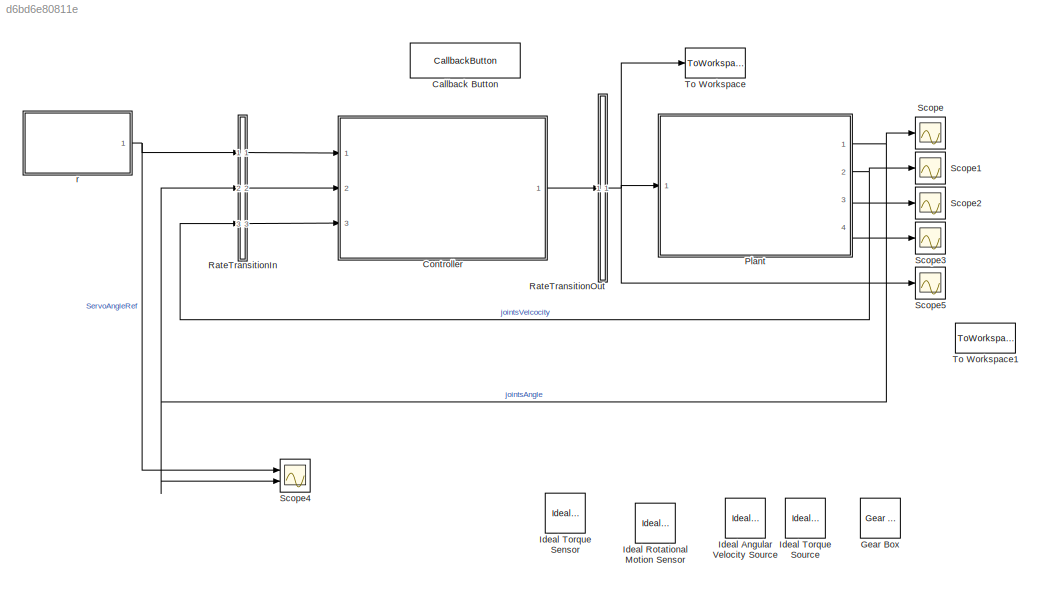
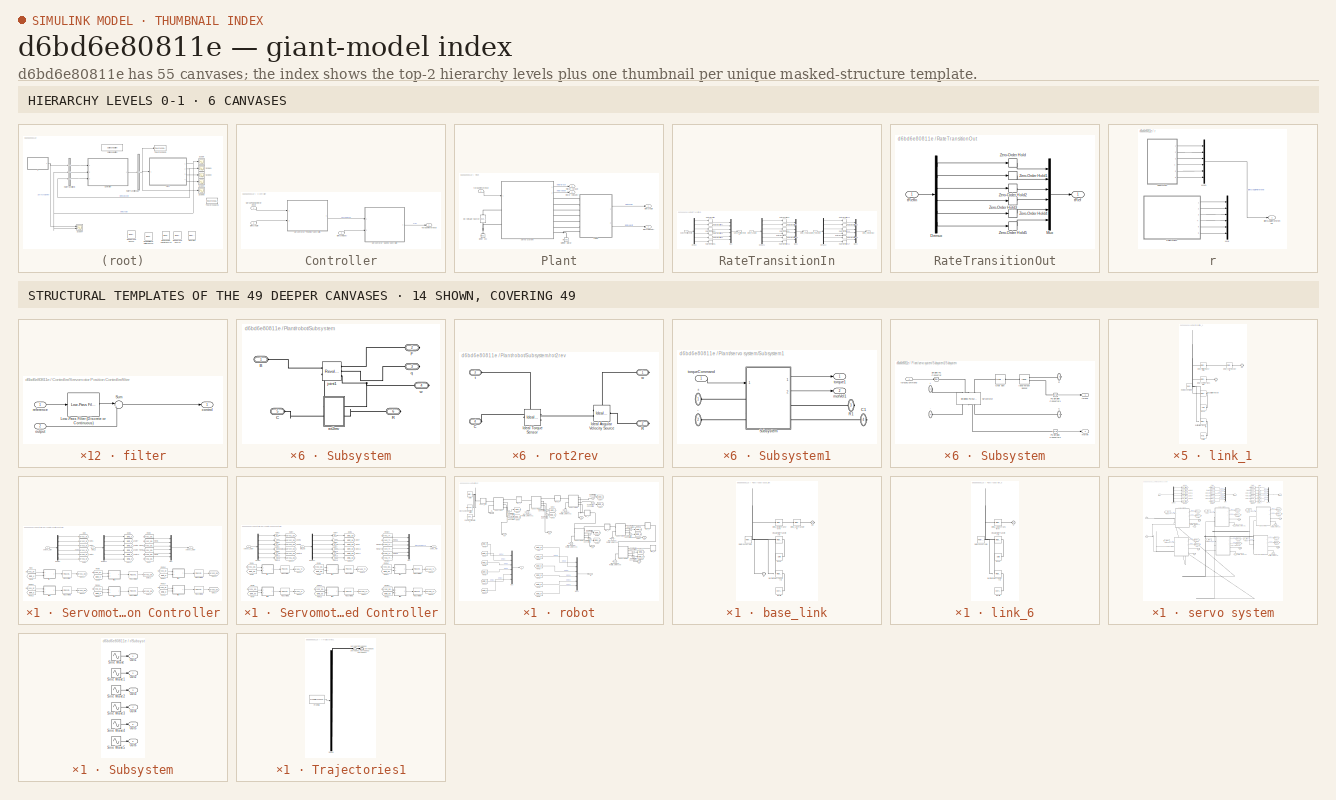
[diagram: thumbnail index - top-2 hierarchy levels (6 canvases) + 14 structural-template representatives of the remaining 49 canvases]
MODEL slx_d6bd6e80811e
KIND model
CONFIG AbsTol = auto
CONFIG EnableMultiTasking = off
CONFIG FixedStep = auto
CONFIG InitFcn = rpm_max=5000;\ntrq_stall=7;\nT_i=1e-3;\neta=100;\nrpm_eta=3000;\ntrq_eta=2.07;\nJ=0.672*1e-4;\nrpm0=0;\ngearRatio=10;\nts=0.0025;
CONFIG MaxStep = auto
CONFIG MinStep = auto
CONFIG RelTol = 1e-3
CONFIG SampleTimeConstraint = Unconstrained
CONFIG Solver = VariableStepAuto
CONFIG SolverName = VariableStepAuto
CONFIG StartTime = 0.0
CONFIG StopTime = 10.0
BLOCK [CallbackButton] Callback Button
  ButtonText = controler tuner
  ClickFcn = h=0.005;\nk=0.5;\ncontrolParameters;\ncontrolSystemTuner('ControlSystemTunerSession.mat');
BLOCK [SubSystem] Controller
  Ports = [3, 1]
  RequestExecContextInheritance = off
BLOCK [Inport] Controller/ServoPositionReference
  IconDisplay = Port number
  SampleTime = ts
  Unit = deg
BLOCK [SubSystem] Controller/Servomotor Position Controller
  Ports = [2, 1]
  RequestExecContextInheritance = off
BLOCK [Demux] Controller/Servomotor Position Controller/Demux
  DisplayOption = bar
  Outputs = 6
  Ports = [1, 6]
BLOCK [Demux] Controller/Servomotor Position Controller/Demux1
  DisplayOption = bar
  Outputs = 6
  Ports = [1, 6]
BLOCK [From] Controller/Servomotor Position Controller/From
  GotoTag = servo1_qref
BLOCK [From] Controller/Servomotor Position Controller/From1
  GotoTag = joint1_q
BLOCK [From] Controller/Servomotor Position Controller/From10
  GotoTag = servo3_qref
BLOCK [From] Controller/Servomotor Position Controller/From11
  GotoTag = joint3_q
BLOCK [From] Controller/Servomotor Position Controller/From12
  GotoTag = servo4_qref
BLOCK [From] Controller/Servomotor Position Controller/From13
  GotoTag = joint4_q
BLOCK [From] Controller/Servomotor Position Controller/From14
  GotoTag = servo6_qref
BLOCK [From] Controller/Servomotor Position Controller/From15
  GotoTag = joint6_q
BLOCK [From] Controller/Servomotor Position Controller/From16
  GotoTag = servo5_qref
BLOCK [From] Controller/Servomotor Position Controller/From17
  GotoTag = joint5_q
BLOCK [From] Controller/Servomotor Position Controller/From2
  GotoTag = servo1_qdref
BLOCK [From] Controller/Servomotor Position Controller/From3
  GotoTag = servo2_qdref
BLOCK [From] Controller/Servomotor Position Controller/From4
  GotoTag = servo3_qdref
BLOCK [From] Controller/Servomotor Position Controller/From5
  GotoTag = servo4_qdref
BLOCK [From] Controller/Servomotor Position Controller/From6
  GotoTag = servo5_qdref
BLOCK [From] Controller/Servomotor Position Controller/From7
  GotoTag = servo6_qdref
BLOCK [From] Controller/Servomotor Position Controller/From8
  GotoTag = servo2_qref
BLOCK [From] Controller/Servomotor Position Controller/From9
  GotoTag = joint2_q
BLOCK [Goto] Controller/Servomotor Position Controller/Goto
  GotoTag = servo1_qref
BLOCK [Goto] Controller/Servomotor Position Controller/Goto1
  GotoTag = servo2_qref
BLOCK [Goto] Controller/Servomotor Position Controller/Goto10
  GotoTag = joint5_q
BLOCK [Goto] Controller/Servomotor Position Controller/Goto11
  GotoTag = joint6_q
BLOCK [Goto] Controller/Servomotor Position Controller/Goto12
  GotoTag = servo1_qdref
BLOCK [Goto] Controller/Servomotor Position Controller/Goto13
  GotoTag = servo2_qdref
BLOCK [Goto] Controller/Servomotor Position Controller/Goto14
  GotoTag = servo3_qdref
BLOCK [Goto] Controller/Servomotor Position Controller/Goto15
  GotoTag = servo4_qdref
BLOCK [Goto] Controller/Servomotor Position Controller/Goto16
  GotoTag = servo5_qdref
BLOCK [Goto] Controller/Servomotor Position Controller/Goto17
  GotoTag = servo6_qdref
BLOCK [Goto] Controller/Servomotor Position Controller/Goto2
  GotoTag = servo3_qref
BLOCK [Goto] Controller/Servomotor Position Controller/Goto3
  GotoTag = servo4_qref
BLOCK [Goto] Controller/Servomotor Position Controller/Goto4
  GotoTag = servo5_qref
BLOCK [Goto] Controller/Servomotor Position Controller/Goto5
  GotoTag = servo6_qref
BLOCK [Goto] Controller/Servomotor Position Controller/Goto6
  GotoTag = joint1_q
BLOCK [Goto] Controller/Servomotor Position Controller/Goto7
  GotoTag = joint2_q
BLOCK [Goto] Controller/Servomotor Position Controller/Goto8
  GotoTag = joint3_q
BLOCK [Goto] Controller/Servomotor Position Controller/Goto9
  GotoTag = joint4_q
BLOCK [Mux] Controller/Servomotor Position Controller/Mux
  DisplayOption = bar
  Inputs = 6
  Ports = [6, 1]
BLOCK [Reference] Controller/Servomotor Position Controller/PID Controller  REF=simulink/Continuous/PID Controller
  Ports = [1, 1]
  SourceBlock = simulink/Continuous/PID Controller
  SourceProductBaseCode = SL
  SourceProductName = Simulink
  SourceType = PID 1dof
BLOCK [Reference] Controller/Servomotor Position Controller/PID Controller1  REF=simulink/Continuous/PID Controller
  Ports = [1, 1]
  SourceBlock = simulink/Continuous/PID Controller
  SourceProductBaseCode = SL
  SourceProductName = Simulink
  SourceType = PID 1dof
BLOCK [Reference] Controller/Servomotor Position Controller/PID Controller2  REF=simulink/Continuous/PID Controller
  Ports = [1, 1]
  SourceBlock = simulink/Continuous/PID Controller
  SourceProductBaseCode = SL
  SourceProductName = Simulink
  SourceType = PID 1dof
BLOCK [Reference] Controller/Servomotor Position Controller/PID Controller3  REF=simulink/Continuous/PID Controller
  Ports = [1, 1]
  SourceBlock = simulink/Continuous/PID Controller
  SourceProductBaseCode = SL
  SourceProductName = Simulink
  SourceType = PID 1dof
BLOCK [Reference] Controller/Servomotor Position Controller/PID Controller4  REF=simulink/Continuous/PID Controller
  Ports = [1, 1]
  SourceBlock = simulink/Continuous/PID Controller
  SourceProductBaseCode = SL
  SourceProductName = Simulink
  SourceType = PID 1dof
BLOCK [Reference] Controller/Servomotor Position Controller/PID Controller5  REF=simulink/Continuous/PID Controller
  Ports = [1, 1]
  SourceBlock = simulink/Continuous/PID Controller
  SourceProductBaseCode = SL
  SourceProductName = Simulink
  SourceType = PID 1dof
BLOCK [SubSystem] Controller/Servomotor Position Controller/filter
  Ports = [2, 1]
  RequestExecContextInheritance = off
BLOCK [Reference] Controller/Servomotor Position Controller/filter/Low-Pass Filter (Discrete or Continuous)  REF=eeGeneralControl/Low-Pass Filter
(Discrete or Continuous)
  Ports = [1, 1]
  SourceBlock = eeGeneralControl/Low-Pass Filter\n(Discrete or Continuous)
  SourceProductBaseCode = PS
  SourceProductName = Simscape Electrical
  SourceType = Low-Pass Filter (Discrete or Continuous)
BLOCK [Sum] Controller/Servomotor Position Controller/filter/Sum
  IconShape = round
  InputSameDT = off
  Inputs = |+-
  OutDataTypeStr = Inherit: Inherit via internal rule
  Ports = [2, 1]
  SaturateOnIntegerOverflow = off
BLOCK [Outport] Controller/Servomotor Position Controller/filter/control
  IconDisplay = Port number
BLOCK [Inport] Controller/Servomotor Position Controller/filter/output
  IconDisplay = Port number
  Port = 2
BLOCK [Inport] Controller/Servomotor Position Controller/filter/reference
  IconDisplay = Port number
BLOCK [SubSystem] Controller/Servomotor Position Controller/filter1
  Ports = [2, 1]
  RequestExecContextInheritance = off
BLOCK [Reference] Controller/Servomotor Position Controller/filter1/Low-Pass Filter (Discrete or Continuous)  REF=eeGeneralControl/Low-Pass Filter
(Discrete or Continuous)
  Ports = [1, 1]
  SourceBlock = eeGeneralControl/Low-Pass Filter\n(Discrete or Continuous)
  SourceProductBaseCode = PS
  SourceProductName = Simscape Electrical
  SourceType = Low-Pass Filter (Discrete or Continuous)
BLOCK [Sum] Controller/Servomotor Position Controller/filter1/Sum
  IconShape = round
  InputSameDT = off
  Inputs = |+-
  OutDataTypeStr = Inherit: Inherit via internal rule
  Ports = [2, 1]
  SaturateOnIntegerOverflow = off
BLOCK [Outport] Controller/Servomotor Position Controller/filter1/control
  IconDisplay = Port number
BLOCK [Inport] Controller/Servomotor Position Controller/filter1/output
  IconDisplay = Port number
  Port = 2
BLOCK [Inport] Controller/Servomotor Position Controller/filter1/reference
  IconDisplay = Port number
BLOCK [SubSystem] Controller/Servomotor Position Controller/filter2
  Ports = [2, 1]
  RequestExecContextInheritance = off
BLOCK [Reference] Controller/Servomotor Position Controller/filter2/Low-Pass Filter (Discrete or Continuous)  REF=eeGeneralControl/Low-Pass Filter
(Discrete or Continuous)
  Ports = [1, 1]
  SourceBlock = eeGeneralControl/Low-Pass Filter\n(Discrete or Continuous)
  SourceProductBaseCode = PS
  SourceProductName = Simscape Electrical
  SourceType = Low-Pass Filter (Discrete or Continuous)
BLOCK [Sum] Controller/Servomotor Position Controller/filter2/Sum
  IconShape = round
  InputSameDT = off
  Inputs = |+-
  OutDataTypeStr = Inherit: Inherit via internal rule
  Ports = [2, 1]
  SaturateOnIntegerOverflow = off
BLOCK [Outport] Controller/Servomotor Position Controller/filter2/control
  IconDisplay = Port number
BLOCK [Inport] Controller/Servomotor Position Controller/filter2/output
  IconDisplay = Port number
  Port = 2
BLOCK [Inport] Controller/Servomotor Position Controller/filter2/reference
  IconDisplay = Port number
BLOCK [SubSystem] Controller/Servomotor Position Controller/filter3
  Ports = [2, 1]
  RequestExecContextInheritance = off
BLOCK [Reference] Controller/Servomotor Position Controller/filter3/Low-Pass Filter (Discrete or Continuous)  REF=eeGeneralControl/Low-Pass Filter
(Discrete or Continuous)
  Ports = [1, 1]
  SourceBlock = eeGeneralControl/Low-Pass Filter\n(Discrete or Continuous)
  SourceProductBaseCode = PS
  SourceProductName = Simscape Electrical
  SourceType = Low-Pass Filter (Discrete or Continuous)
BLOCK [Sum] Controller/Servomotor Position Controller/filter3/Sum
  IconShape = round
  InputSameDT = off
  Inputs = |+-
  OutDataTypeStr = Inherit: Inherit via internal rule
  Ports = [2, 1]
  SaturateOnIntegerOverflow = off
BLOCK [Outport] Controller/Servomotor Position Controller/filter3/control
  IconDisplay = Port number
BLOCK [Inport] Controller/Servomotor Position Controller/filter3/output
  IconDisplay = Port number
  Port = 2
BLOCK [Inport] Controller/Servomotor Position Controller/filter3/reference
  IconDisplay = Port number
BLOCK [SubSystem] Controller/Servomotor Position Controller/filter4
  Ports = [2, 1]
  RequestExecContextInheritance = off
BLOCK [Reference] Controller/Servomotor Position Controller/filter4/Low-Pass Filter (Discrete or Continuous)  REF=eeGeneralControl/Low-Pass Filter
(Discrete or Continuous)
  Ports = [1, 1]
  SourceBlock = eeGeneralControl/Low-Pass Filter\n(Discrete or Continuous)
  SourceProductBaseCode = PS
  SourceProductName = Simscape Electrical
  SourceType = Low-Pass Filter (Discrete or Continuous)
BLOCK [Sum] Controller/Servomotor Position Controller/filter4/Sum
  IconShape = round
  InputSameDT = off
  Inputs = |+-
  OutDataTypeStr = Inherit: Inherit via internal rule
  Ports = [2, 1]
  SaturateOnIntegerOverflow = off
BLOCK [Outport] Controller/Servomotor Position Controller/filter4/control
  IconDisplay = Port number
BLOCK [Inport] Controller/Servomotor Position Controller/filter4/output
  IconDisplay = Port number
  Port = 2
BLOCK [Inport] Controller/Servomotor Position Controller/filter4/reference
  IconDisplay = Port number
BLOCK [SubSystem] Controller/Servomotor Position Controller/filter5
  Ports = [2, 1]
  RequestExecContextInheritance = off
BLOCK [Reference] Controller/Servomotor Position Controller/filter5/Low-Pass Filter (Discrete or Continuous)  REF=eeGeneralControl/Low-Pass Filter
(Discrete or Continuous)
  Ports = [1, 1]
  SourceBlock = eeGeneralControl/Low-Pass Filter\n(Discrete or Continuous)
  SourceProductBaseCode = PS
  SourceProductName = Simscape Electrical
  SourceType = Low-Pass Filter (Discrete or Continuous)
BLOCK [Sum] Controller/Servomotor Position Controller/filter5/Sum
  IconShape = round
  InputSameDT = off
  Inputs = |+-
  OutDataTypeStr = Inherit: Inherit via internal rule
  Ports = [2, 1]
  SaturateOnIntegerOverflow = off
BLOCK [Outport] Controller/Servomotor Position Controller/filter5/control
  IconDisplay = Port number
BLOCK [Inport] Controller/Servomotor Position Controller/filter5/output
  IconDisplay = Port number
  Port = 2
BLOCK [Inport] Controller/Servomotor Position Controller/filter5/reference
  IconDisplay = Port number
BLOCK [Inport] Controller/Servomotor Position Controller/joint_q
  IconDisplay = Port number
  Port = 2
  Unit = deg
BLOCK [Outport] Controller/Servomotor Position Controller/servon_qdref
  IconDisplay = Port number
  Unit = deg/s
BLOCK [Inport] Controller/Servomotor Position Controller/servon_qref
  IconDisplay = Port number
  Unit = deg
BLOCK [SubSystem] Controller/Servomotor Speed Controller
  Ports = [2, 1]
  RequestExecContextInheritance = off
BLOCK [Demux] Controller/Servomotor Speed Controller/Demux
  DisplayOption = bar
  Outputs = 6
  Ports = [1, 6]
BLOCK [Demux] Controller/Servomotor Speed Controller/Demux1
  DisplayOption = bar
  Outputs = 6
  Ports = [1, 6]
BLOCK [From] Controller/Servomotor Speed Controller/From12
  GotoTag = servo5_qdref
BLOCK [From] Controller/Servomotor Speed Controller/From13
  GotoTag = joint5_qd
BLOCK [From] Controller/Servomotor Speed Controller/From16
  GotoTag = servo3_qdref
BLOCK [From] Controller/Servomotor Speed Controller/From17
  GotoTag = joint3_qd
BLOCK [From] Controller/Servomotor Speed Controller/From20
  GotoTag = servo6_qdref
BLOCK [From] Controller/Servomotor Speed Controller/From21
  GotoTag = joint6_qd
BLOCK [From] Controller/Servomotor Speed Controller/From24
  GotoTag = servo1_Tref
BLOCK [From] Controller/Servomotor Speed Controller/From25
  GotoTag = servo2_Tref
BLOCK [From] Controller/Servomotor Speed Controller/From26
  GotoTag = servo3_Tref
BLOCK [From] Controller/Servomotor Speed Controller/From27
  GotoTag = servo4_Tref
BLOCK [From] Controller/Servomotor Speed Controller/From28
  GotoTag = servo5_Tref
BLOCK [From] Controller/Servomotor Speed Controller/From29
  GotoTag = servo6_Tref
BLOCK [From] Controller/Servomotor Speed Controller/From4
  GotoTag = servo1_qdref
BLOCK [From] Controller/Servomotor Speed Controller/From5
  GotoTag = servo4_qdref
BLOCK [From] Controller/Servomotor Speed Controller/From6
  GotoTag = joint1_qd
BLOCK [From] Controller/Servomotor Speed Controller/From7
  GotoTag = joint4_qd
BLOCK [From] Controller/Servomotor Speed Controller/From8
  GotoTag = servo2_qdref
BLOCK [From] Controller/Servomotor Speed Controller/From9
  GotoTag = joint2_qd
BLOCK [Gain] Controller/Servomotor Speed Controller/Gain10
  Gain = 1/6
  OutDataTypeStr = Inherit: Inherit via internal rule
  ParamDataTypeStr = Inherit: Inherit via internal rule
  SaturateOnIntegerOverflow = off
BLOCK [Gain] Controller/Servomotor Speed Controller/Gain12
  Gain = 1/6
  OutDataTypeStr = Inherit: Inherit via internal rule
  ParamDataTypeStr = Inherit: Inherit via internal rule
  SaturateOnIntegerOverflow = off
BLOCK [Gain] Controller/Servomotor Speed Controller/Gain13
  Gain = 1/6
  OutDataTypeStr = Inherit: Inherit via internal rule
  ParamDataTypeStr = Inherit: Inherit via internal rule
  SaturateOnIntegerOverflow = off
BLOCK [Gain] Controller/Servomotor Speed Controller/Gain15
  Gain = 1/6
  OutDataTypeStr = Inherit: Inherit via internal rule
  ParamDataTypeStr = Inherit: Inherit via internal rule
  SaturateOnIntegerOverflow = off
BLOCK [Gain] Controller/Servomotor Speed Controller/Gain16
  Gain = 1/6
  OutDataTypeStr = Inherit: Inherit via internal rule
  ParamDataTypeStr = Inherit: Inherit via internal rule
  SaturateOnIntegerOverflow = off
BLOCK [Gain] Controller/Servomotor Speed Controller/Gain2
  Gain = 1/6
  OutDataTypeStr = Inherit: Inherit via internal rule
  ParamDataTypeStr = Inherit: Inherit via internal rule
  SaturateOnIntegerOverflow = off
BLOCK [Gain] Controller/Servomotor Speed Controller/Gain3
  Gain = 1/6
  OutDataTypeStr = Inherit: Inherit via internal rule
  ParamDataTypeStr = Inherit: Inherit via internal rule
  SaturateOnIntegerOverflow = off
BLOCK [Gain] Controller/Servomotor Speed Controller/Gain4
  Gain = 1/6
  OutDataTypeStr = Inherit: Inherit via internal rule
  ParamDataTypeStr = Inherit: Inherit via internal rule
  SaturateOnIntegerOverflow = off
BLOCK [Gain] Controller/Servomotor Speed Controller/Gain5
  Gain = 1/6
  OutDataTypeStr = Inherit: Inherit via internal rule
  ParamDataTypeStr = Inherit: Inherit via internal rule
  SaturateOnIntegerOverflow = off
BLOCK [Gain] Controller/Servomotor Speed Controller/Gain6
  Gain = 1/6
  OutDataTypeStr = Inherit: Inherit via internal rule
  ParamDataTypeStr = Inherit: Inherit via internal rule
  SaturateOnIntegerOverflow = off
BLOCK [Gain] Controller/Servomotor Speed Controller/Gain7
  Gain = 1/6
  OutDataTypeStr = Inherit: Inherit via internal rule
  ParamDataTypeStr = Inherit: Inherit via internal rule
  SaturateOnIntegerOverflow = off
BLOCK [Gain] Controller/Servomotor Speed Controller/Gain9
  Gain = 1/6
  OutDataTypeStr = Inherit: Inherit via internal rule
  ParamDataTypeStr = Inherit: Inherit via internal rule
  SaturateOnIntegerOverflow = off
BLOCK [Goto] Controller/Servomotor Speed Controller/Goto12
  GotoTag = servo4_qdref
BLOCK [Goto] Controller/Servomotor Speed Controller/Goto13
  GotoTag = joint4_qd
BLOCK [Goto] Controller/Servomotor Speed Controller/Goto16
  GotoTag = servo5_qdref
BLOCK [Goto] Controller/Servomotor Speed Controller/Goto17
  GotoTag = joint5_qd
BLOCK [Goto] Controller/Servomotor Speed Controller/Goto20
  GotoTag = servo6_qdref
BLOCK [Goto] Controller/Servomotor Speed Controller/Goto21
  GotoTag = joint6_qd
BLOCK [Goto] Controller/Servomotor Speed Controller/Goto24
  GotoTag = servo1_Tref
BLOCK [Goto] Controller/Servomotor Speed Controller/Goto25
  GotoTag = servo4_Tref
BLOCK [Goto] Controller/Servomotor Speed Controller/Goto26
  GotoTag = servo2_Tref
BLOCK [Goto] Controller/Servomotor Speed Controller/Goto27
  GotoTag = servo5_Tref
BLOCK [Goto] Controller/Servomotor Speed Controller/Goto28
  GotoTag = servo3_Tref
BLOCK [Goto] Controller/Servomotor Speed Controller/Goto29
  GotoTag = servo6_Tref
BLOCK [Goto] Controller/Servomotor Speed Controller/Goto4
  GotoTag = servo1_qdref
BLOCK [Goto] Controller/Servomotor Speed Controller/Goto5
  GotoTag = servo2_qdref
BLOCK [Goto] Controller/Servomotor Speed Controller/Goto6
  GotoTag = joint1_qd
BLOCK [Goto] Controller/Servomotor Speed Controller/Goto7
  GotoTag = joint2_qd
BLOCK [Goto] Controller/Servomotor Speed Controller/Goto8
  GotoTag = servo3_qdref
BLOCK [Goto] Controller/Servomotor Speed Controller/Goto9
  GotoTag = joint3_qd
BLOCK [Mux] Controller/Servomotor Speed Controller/Mux
  DisplayOption = bar
  Inputs = 6
  Ports = [6, 1]
BLOCK [Reference] Controller/Servomotor Speed Controller/PID Controller  REF=simulink/Continuous/PID Controller
  Ports = [1, 1]
  SourceBlock = simulink/Continuous/PID Controller
  SourceProductBaseCode = SL
  SourceProductName = Simulink
  SourceType = PID 1dof
BLOCK [Reference] Controller/Servomotor Speed Controller/PID Controller1  REF=simulink/Continuous/PID Controller
  Ports = [1, 1]
  SourceBlock = simulink/Continuous/PID Controller
  SourceProductBaseCode = SL
  SourceProductName = Simulink
  SourceType = PID 1dof
BLOCK [Reference] Controller/Servomotor Speed Controller/PID Controller2  REF=simulink/Continuous/PID Controller
  Ports = [1, 1]
  SourceBlock = simulink/Continuous/PID Controller
  SourceProductBaseCode = SL
  SourceProductName = Simulink
  SourceType = PID 1dof
BLOCK [Reference] Controller/Servomotor Speed Controller/PID Controller3  REF=simulink/Continuous/PID Controller
  Ports = [1, 1]
  SourceBlock = simulink/Continuous/PID Controller
  SourceProductBaseCode = SL
  SourceProductName = Simulink
  SourceType = PID 1dof
BLOCK [Reference] Controller/Servomotor Speed Controller/PID Controller4  REF=simulink/Continuous/PID Controller
  Ports = [1, 1]
  SourceBlock = simulink/Continuous/PID Controller
  SourceProductBaseCode = SL
  SourceProductName = Simulink
  SourceType = PID 1dof
BLOCK [Reference] Controller/Servomotor Speed Controller/PID Controller5  REF=simulink/Continuous/PID Controller
  Ports = [1, 1]
  SourceBlock = simulink/Continuous/PID Controller
  SourceProductBaseCode = SL
  SourceProductName = Simulink
  SourceType = PID 1dof
BLOCK [SubSystem] Controller/Servomotor Speed Controller/filter
  Ports = [2, 1]
  RequestExecContextInheritance = off
BLOCK [Reference] Controller/Servomotor Speed Controller/filter/Low-Pass Filter (Discrete or Continuous)  REF=eeGeneralControl/Low-Pass Filter
(Discrete or Continuous)
  Ports = [1, 1]
  SourceBlock = eeGeneralControl/Low-Pass Filter\n(Discrete or Continuous)
  SourceProductBaseCode = PS
  SourceProductName = Simscape Electrical
  SourceType = Low-Pass Filter (Discrete or Continuous)
BLOCK [Sum] Controller/Servomotor Speed Controller/filter/Sum
  IconShape = round
  InputSameDT = off
  Inputs = |+-
  OutDataTypeStr = Inherit: Inherit via internal rule
  Ports = [2, 1]
  SaturateOnIntegerOverflow = off
BLOCK [Outport] Controller/Servomotor Speed Controller/filter/control
  IconDisplay = Port number
BLOCK [Inport] Controller/Servomotor Speed Controller/filter/output
  IconDisplay = Port number
  Port = 2
BLOCK [Inport] Controller/Servomotor Speed Controller/filter/reference
  IconDisplay = Port number
BLOCK [SubSystem] Controller/Servomotor Speed Controller/filter1
  Ports = [2, 1]
  RequestExecContextInheritance = off
BLOCK [Reference] Controller/Servomotor Speed Controller/filter1/Low-Pass Filter (Discrete or Continuous)  REF=eeGeneralControl/Low-Pass Filter
(Discrete or Continuous)
  Ports = [1, 1]
  SourceBlock = eeGeneralControl/Low-Pass Filter\n(Discrete or Continuous)
  SourceProductBaseCode = PS
  SourceProductName = Simscape Electrical
  SourceType = Low-Pass Filter (Discrete or Continuous)
BLOCK [Sum] Controller/Servomotor Speed Controller/filter1/Sum
  IconShape = round
  InputSameDT = off
  Inputs = |+-
  OutDataTypeStr = Inherit: Inherit via internal rule
  Ports = [2, 1]
  SaturateOnIntegerOverflow = off
BLOCK [Outport] Controller/Servomotor Speed Controller/filter1/control
  IconDisplay = Port number
BLOCK [Inport] Controller/Servomotor Speed Controller/filter1/output
  IconDisplay = Port number
  Port = 2
BLOCK [Inport] Controller/Servomotor Speed Controller/filter1/reference
  IconDisplay = Port number
BLOCK [SubSystem] Controller/Servomotor Speed Controller/filter2
  Ports = [2, 1]
  RequestExecContextInheritance = off
BLOCK [Reference] Controller/Servomotor Speed Controller/filter2/Low-Pass Filter (Discrete or Continuous)  REF=eeGeneralControl/Low-Pass Filter
(Discrete or Continuous)
  Ports = [1, 1]
  SourceBlock = eeGeneralControl/Low-Pass Filter\n(Discrete or Continuous)
  SourceProductBaseCode = PS
  SourceProductName = Simscape Electrical
  SourceType = Low-Pass Filter (Discrete or Continuous)
BLOCK [Sum] Controller/Servomotor Speed Controller/filter2/Sum
  IconShape = round
  InputSameDT = off
  Inputs = |+-
  OutDataTypeStr = Inherit: Inherit via internal rule
  Ports = [2, 1]
  SaturateOnIntegerOverflow = off
BLOCK [Outport] Controller/Servomotor Speed Controller/filter2/control
  IconDisplay = Port number
BLOCK [Inport] Controller/Servomotor Speed Controller/filter2/output
  IconDisplay = Port number
  Port = 2
BLOCK [Inport] Controller/Servomotor Speed Controller/filter2/reference
  IconDisplay = Port number
BLOCK [SubSystem] Controller/Servomotor Speed Controller/filter3
  Ports = [2, 1]
  RequestExecContextInheritance = off
BLOCK [Reference] Controller/Servomotor Speed Controller/filter3/Low-Pass Filter (Discrete or Continuous)  REF=eeGeneralControl/Low-Pass Filter
(Discrete or Continuous)
  Ports = [1, 1]
  SourceBlock = eeGeneralControl/Low-Pass Filter\n(Discrete or Continuous)
  SourceProductBaseCode = PS
  SourceProductName = Simscape Electrical
  SourceType = Low-Pass Filter (Discrete or Continuous)
BLOCK [Sum] Controller/Servomotor Speed Controller/filter3/Sum
  IconShape = round
  InputSameDT = off
  Inputs = |+-
  OutDataTypeStr = Inherit: Inherit via internal rule
  Ports = [2, 1]
  SaturateOnIntegerOverflow = off
BLOCK [Outport] Controller/Servomotor Speed Controller/filter3/control
  IconDisplay = Port number
BLOCK [Inport] Controller/Servomotor Speed Controller/filter3/output
  IconDisplay = Port number
  Port = 2
BLOCK [Inport] Controller/Servomotor Speed Controller/filter3/reference
  IconDisplay = Port number
BLOCK [SubSystem] Controller/Servomotor Speed Controller/filter4
  Ports = [2, 1]
  RequestExecContextInheritance = off
BLOCK [Reference] Controller/Servomotor Speed Controller/filter4/Low-Pass Filter (Discrete or Continuous)  REF=eeGeneralControl/Low-Pass Filter
(Discrete or Continuous)
  Ports = [1, 1]
  SourceBlock = eeGeneralControl/Low-Pass Filter\n(Discrete or Continuous)
  SourceProductBaseCode = PS
  SourceProductName = Simscape Electrical
  SourceType = Low-Pass Filter (Discrete or Continuous)
BLOCK [Sum] Controller/Servomotor Speed Controller/filter4/Sum
  IconShape = round
  InputSameDT = off
  Inputs = |+-
  OutDataTypeStr = Inherit: Inherit via internal rule
  Ports = [2, 1]
  SaturateOnIntegerOverflow = off
BLOCK [Outport] Controller/Servomotor Speed Controller/filter4/control
  IconDisplay = Port number
BLOCK [Inport] Controller/Servomotor Speed Controller/filter4/output
  IconDisplay = Port number
  Port = 2
BLOCK [Inport] Controller/Servomotor Speed Controller/filter4/reference
  IconDisplay = Port number
BLOCK [SubSystem] Controller/Servomotor Speed Controller/filter5
  Ports = [2, 1]
  RequestExecContextInheritance = off
BLOCK [Reference] Controller/Servomotor Speed Controller/filter5/Low-Pass Filter (Discrete or Continuous)  REF=eeGeneralControl/Low-Pass Filter
(Discrete or Continuous)
  Ports = [1, 1]
  SourceBlock = eeGeneralControl/Low-Pass Filter\n(Discrete or Continuous)
  SourceProductBaseCode = PS
  SourceProductName = Simscape Electrical
  SourceType = Low-Pass Filter (Discrete or Continuous)
BLOCK [Sum] Controller/Servomotor Speed Controller/filter5/Sum
  IconShape = round
  InputSameDT = off
  Inputs = |+-
  OutDataTypeStr = Inherit: Inherit via internal rule
  Ports = [2, 1]
  SaturateOnIntegerOverflow = off
BLOCK [Outport] Controller/Servomotor Speed Controller/filter5/control
  IconDisplay = Port number
BLOCK [Inport] Controller/Servomotor Speed Controller/filter5/output
  IconDisplay = Port number
  Port = 2
BLOCK [Inport] Controller/Servomotor Speed Controller/filter5/reference
  IconDisplay = Port number
BLOCK [Inport] Controller/Servomotor Speed Controller/joint_qd
  IconDisplay = Port number
  Port = 2
BLOCK [Outport] Controller/Servomotor Speed Controller/servo_Tref
  IconDisplay = Port number
  Unit = N*m
BLOCK [Inport] Controller/Servomotor Speed Controller/servon_qdref
  IconDisplay = Port number
BLOCK [Outport] Controller/TorqueReference
  IconDisplay = Port number
  SampleTime = ts
  Unit = N*m
BLOCK [Inport] Controller/jointsAngle
  IconDisplay = Port number
  Port = 2
  SampleTime = ts
  Unit = deg
BLOCK [Inport] Controller/jointsVelocity
  IconDisplay = Port number
  Port = 3
  SampleTime = ts
  Unit = deg/s
BLOCK [Reference] Gear Box  REF=fl_lib/Mechanical/Mechanisms/Gear Box
  Commented = on
  Ports = [0, 0, 0, 0, 0, 1, 1]
  SourceBlock = fl_lib/Mechanical/Mechanisms/Gear Box
  SourceProductBaseCode = SS
  SourceProductName = Simscape
  SourceType = Gear Box
BLOCK [Reference] Ideal Angular Velocity Source  REF=fl_lib/Mechanical/Mechanical Sources/Ideal Angular
Velocity Source
  Commented = on
  Ports = [0, 0, 0, 0, 0, 1, 2]
  SourceBlock = fl_lib/Mechanical/Mechanical Sources/Ideal Angular\nVelocity Source
  SourceProductBaseCode = SS
  SourceProductName = Simscape
  SourceType = Ideal Angular\nVelocity Source
BLOCK [Reference] Ideal Rotational Motion Sensor  REF=fl_lib/Mechanical/Mechanical Sensors/Ideal Rotational
Motion Sensor
  Commented = on
  Ports = [0, 0, 0, 0, 0, 1, 3]
  SourceBlock = fl_lib/Mechanical/Mechanical Sensors/Ideal Rotational\nMotion Sensor
  SourceProductBaseCode = SS
  SourceProductName = Simscape
  SourceType = Ideal Rotational\nMotion Sensor
BLOCK [Reference] Ideal Torque Sensor  REF=fl_lib/Mechanical/Mechanical Sensors/Ideal Torque Sensor
  Commented = on
  Ports = [0, 0, 0, 0, 0, 1, 2]
  SourceBlock = fl_lib/Mechanical/Mechanical Sensors/Ideal Torque Sensor
  SourceProductBaseCode = SS
  SourceProductName = Simscape
  SourceType = Ideal Torque Sensor
BLOCK [Reference] Ideal Torque Source  REF=fl_lib/Mechanical/Mechanical Sources/Ideal Torque Source
  Commented = on
  Ports = [0, 0, 0, 0, 0, 1, 2]
  SourceBlock = fl_lib/Mechanical/Mechanical Sources/Ideal Torque Source
  SourceProductBaseCode = SS
  SourceProductName = Simscape
  SourceType = Ideal Torque Source
BLOCK [SubSystem] Plant
  Ports = [1, 4]
  RequestExecContextInheritance = off
BLOCK [Reference] Plant/DC Voltage Source  REF=fl_lib/Electrical/Electrical Sources/DC Voltage Source
  Ports = [0, 0, 0, 0, 0, 1, 1]
  SourceBlock = fl_lib/Electrical/Electrical Sources/DC Voltage Source
  SourceProductBaseCode = SS
  SourceProductName = Simscape
  SourceType = DC Voltage Source
BLOCK [Reference] Plant/ERef Vcc  REF=fl_lib/Electrical/Electrical Elements/Electrical Reference
  Ports = [0, 0, 0, 0, 0, 1]
  SourceBlock = fl_lib/Electrical/Electrical Elements/Electrical Reference
  SourceProductName = Foundation Library
  SourceType = Electrical Reference
BLOCK [Reference] Plant/MRRef Motor  REF=fl_lib/Mechanical/Rotational Elements/Mechanical
Rotational Reference
  Ports = [0, 0, 0, 0, 0, 1]
  SourceBlock = fl_lib/Mechanical/Rotational Elements/Mechanical\nRotational Reference
  SourceProductName = Foundation Library
  SourceType = Mechanical\nRotational Reference
BLOCK [Outport] Plant/jointsAngle
  IconDisplay = Port number
  Unit = deg
BLOCK [Outport] Plant/jointsVelcocity
  IconDisplay = Port number
  Port = 2
  Unit = deg/s
BLOCK [Outport] Plant/motor torgue
  IconDisplay = Port number
  Port = 3
BLOCK [Outport] Plant/motor velcocity
  IconDisplay = Port number
  Port = 4
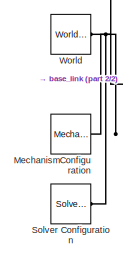
[diagram: Plant/robot - part 1/2, top left region]
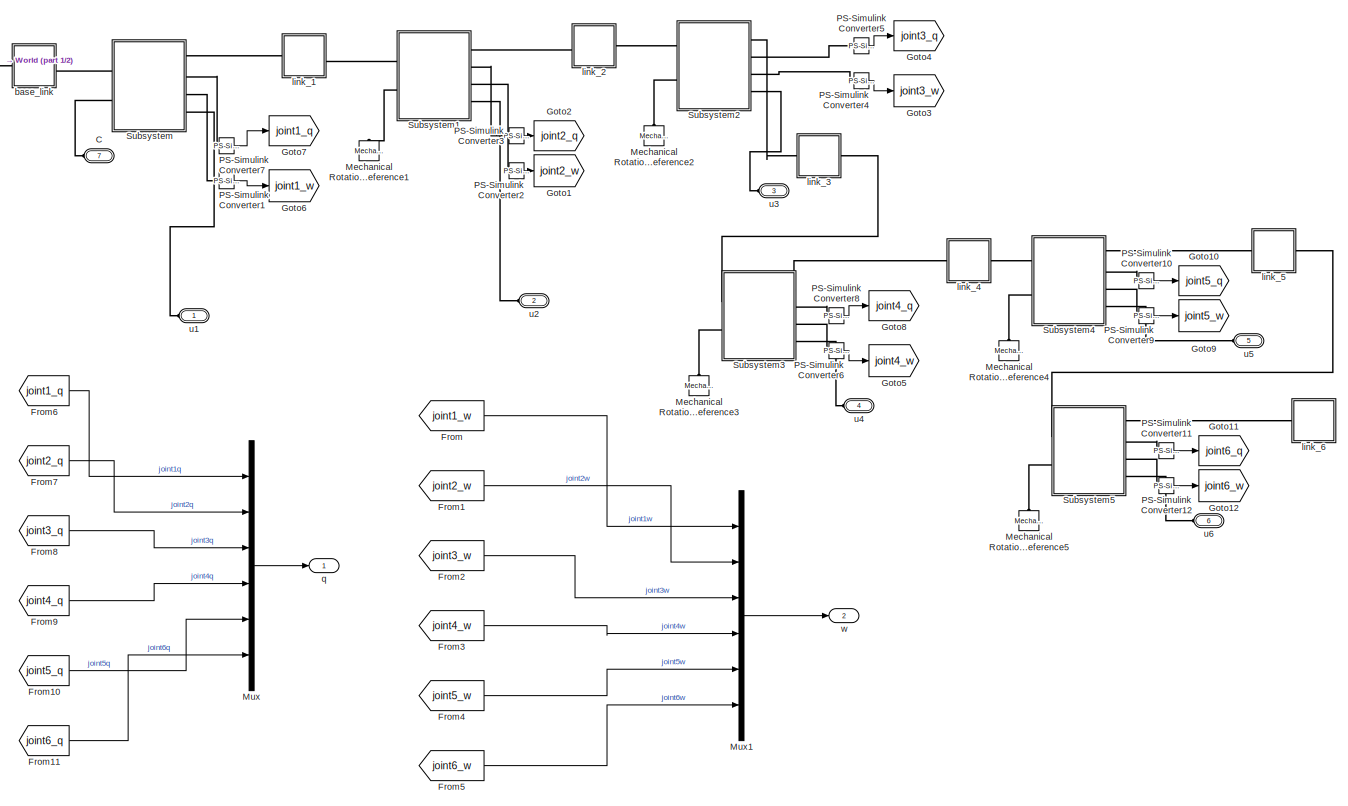
[diagram: Plant/robot - part 2/2, most of the canvas]
BLOCK [SubSystem] Plant/robot
  Ports = [0, 2, 0, 0, 0, 7]
  RequestExecContextInheritance = off
BLOCK [PMIOPort] Plant/robot/C
  Port = 7
  Side = Left
BLOCK [From] Plant/robot/From
  GotoTag = joint1_w
BLOCK [From] Plant/robot/From1
  GotoTag = joint2_w
BLOCK [From] Plant/robot/From10
  GotoTag = joint5_q
BLOCK [From] Plant/robot/From11
  GotoTag = joint6_q
BLOCK [From] Plant/robot/From2
  GotoTag = joint3_w
BLOCK [From] Plant/robot/From3
  GotoTag = joint4_w
BLOCK [From] Plant/robot/From4
  GotoTag = joint5_w
BLOCK [From] Plant/robot/From5
  GotoTag = joint6_w
BLOCK [From] Plant/robot/From6
  GotoTag = joint1_q
BLOCK [From] Plant/robot/From7
  GotoTag = joint2_q
BLOCK [From] Plant/robot/From8
  GotoTag = joint3_q
BLOCK [From] Plant/robot/From9
  GotoTag = joint4_q
BLOCK [Goto] Plant/robot/Goto1
  GotoTag = joint2_w
BLOCK [Goto] Plant/robot/Goto10
  GotoTag = joint5_q
BLOCK [Goto] Plant/robot/Goto11
  GotoTag = joint6_q
BLOCK [Goto] Plant/robot/Goto12
  GotoTag = joint6_w
BLOCK [Goto] Plant/robot/Goto2
  GotoTag = joint2_q
BLOCK [Goto] Plant/robot/Goto3
  GotoTag = joint3_w
BLOCK [Goto] Plant/robot/Goto4
  GotoTag = joint3_q
BLOCK [Goto] Plant/robot/Goto5
  GotoTag = joint4_w
BLOCK [Goto] Plant/robot/Goto6
  GotoTag = joint1_w
BLOCK [Goto] Plant/robot/Goto7
  GotoTag = joint1_q
BLOCK [Goto] Plant/robot/Goto8
  GotoTag = joint4_q
BLOCK [Goto] Plant/robot/Goto9
  GotoTag = joint5_w
BLOCK [Reference] Plant/robot/Mechanical Rotational Reference1  REF=fl_lib/Mechanical/Rotational Elements/Mechanical
Rotational Reference
  Ports = [0, 0, 0, 0, 0, 1]
  SourceBlock = fl_lib/Mechanical/Rotational Elements/Mechanical\nRotational Reference
  SourceProductBaseCode = SS
  SourceProductName = Simscape
  SourceType = Mechanical\nRotational Reference
BLOCK [Reference] Plant/robot/Mechanical Rotational Reference2  REF=fl_lib/Mechanical/Rotational Elements/Mechanical
Rotational Reference
  Ports = [0, 0, 0, 0, 0, 1]
  SourceBlock = fl_lib/Mechanical/Rotational Elements/Mechanical\nRotational Reference
  SourceProductBaseCode = SS
  SourceProductName = Simscape
  SourceType = Mechanical\nRotational Reference
BLOCK [Reference] Plant/robot/Mechanical Rotational Reference3  REF=fl_lib/Mechanical/Rotational Elements/Mechanical
Rotational Reference
  Ports = [0, 0, 0, 0, 0, 1]
  SourceBlock = fl_lib/Mechanical/Rotational Elements/Mechanical\nRotational Reference
  SourceProductBaseCode = SS
  SourceProductName = Simscape
  SourceType = Mechanical\nRotational Reference
BLOCK [Reference] Plant/robot/Mechanical Rotational Reference4  REF=fl_lib/Mechanical/Rotational Elements/Mechanical
Rotational Reference
  Ports = [0, 0, 0, 0, 0, 1]
  SourceBlock = fl_lib/Mechanical/Rotational Elements/Mechanical\nRotational Reference
  SourceProductBaseCode = SS
  SourceProductName = Simscape
  SourceType = Mechanical\nRotational Reference
BLOCK [Reference] Plant/robot/Mechanical Rotational Reference5  REF=fl_lib/Mechanical/Rotational Elements/Mechanical
Rotational Reference
  Ports = [0, 0, 0, 0, 0, 1]
  SourceBlock = fl_lib/Mechanical/Rotational Elements/Mechanical\nRotational Reference
  SourceProductBaseCode = SS
  SourceProductName = Simscape
  SourceType = Mechanical\nRotational Reference
BLOCK [Reference] Plant/robot/MechanismConfiguration  REF=sm_lib/Utilities/Mechanism
Configuration
  Ports = [0, 0, 0, 0, 0, 0, 1]
  SourceBlock = sm_lib/Utilities/Mechanism\nConfiguration
  SourceProductBaseCode = MS
  SourceProductName = Simscape Multibody
  SourceType = Mechanism\nConfiguration
BLOCK [Mux] Plant/robot/Mux
  DisplayOption = bar
  Inputs = 6
  Ports = [6, 1]
BLOCK [Mux] Plant/robot/Mux1
  DisplayOption = bar
  Inputs = 6
  Ports = [6, 1]
BLOCK [Reference] Plant/robot/PS-Simulink Converter1  REF=nesl_utility/PS-Simulink
Converter
  Ports = [0, 1, 0, 0, 0, 1]
  SourceBlock = nesl_utility/PS-Simulink\nConverter
  SourceProductBaseCode = SS
  SourceProductName = Simscape
  SourceType = PS-Simulink\nConverter
BLOCK [Reference] Plant/robot/PS-Simulink Converter10  REF=nesl_utility/PS-Simulink
Converter
  Ports = [0, 1, 0, 0, 0, 1]
  SourceBlock = nesl_utility/PS-Simulink\nConverter
  SourceProductBaseCode = SS
  SourceProductName = Simscape
  SourceType = PS-Simulink\nConverter
BLOCK [Reference] Plant/robot/PS-Simulink Converter11  REF=nesl_utility/PS-Simulink
Converter
  Ports = [0, 1, 0, 0, 0, 1]
  SourceBlock = nesl_utility/PS-Simulink\nConverter
  SourceProductBaseCode = SS
  SourceProductName = Simscape
  SourceType = PS-Simulink\nConverter
BLOCK [Reference] Plant/robot/PS-Simulink Converter12  REF=nesl_utility/PS-Simulink
Converter
  Ports = [0, 1, 0, 0, 0, 1]
  SourceBlock = nesl_utility/PS-Simulink\nConverter
  SourceProductBaseCode = SS
  SourceProductName = Simscape
  SourceType = PS-Simulink\nConverter
BLOCK [Reference] Plant/robot/PS-Simulink Converter2  REF=nesl_utility/PS-Simulink
Converter
  Ports = [0, 1, 0, 0, 0, 1]
  SourceBlock = nesl_utility/PS-Simulink\nConverter
  SourceProductBaseCode = SS
  SourceProductName = Simscape
  SourceType = PS-Simulink\nConverter
BLOCK [Reference] Plant/robot/PS-Simulink Converter3  REF=nesl_utility/PS-Simulink
Converter
  Ports = [0, 1, 0, 0, 0, 1]
  SourceBlock = nesl_utility/PS-Simulink\nConverter
  SourceProductBaseCode = SS
  SourceProductName = Simscape
  SourceType = PS-Simulink\nConverter
BLOCK [Reference] Plant/robot/PS-Simulink Converter4  REF=nesl_utility/PS-Simulink
Converter
  Ports = [0, 1, 0, 0, 0, 1]
  SourceBlock = nesl_utility/PS-Simulink\nConverter
  SourceProductBaseCode = SS
  SourceProductName = Simscape
  SourceType = PS-Simulink\nConverter
BLOCK [Reference] Plant/robot/PS-Simulink Converter5  REF=nesl_utility/PS-Simulink
Converter
  Ports = [0, 1, 0, 0, 0, 1]
  SourceBlock = nesl_utility/PS-Simulink\nConverter
  SourceProductBaseCode = SS
  SourceProductName = Simscape
  SourceType = PS-Simulink\nConverter
BLOCK [Reference] Plant/robot/PS-Simulink Converter6  REF=nesl_utility/PS-Simulink
Converter
  Ports = [0, 1, 0, 0, 0, 1]
  SourceBlock = nesl_utility/PS-Simulink\nConverter
  SourceProductBaseCode = SS
  SourceProductName = Simscape
  SourceType = PS-Simulink\nConverter
BLOCK [Reference] Plant/robot/PS-Simulink Converter7  REF=nesl_utility/PS-Simulink
Converter
  Ports = [0, 1, 0, 0, 0, 1]
  SourceBlock = nesl_utility/PS-Simulink\nConverter
  SourceProductBaseCode = SS
  SourceProductName = Simscape
  SourceType = PS-Simulink\nConverter
BLOCK [Reference] Plant/robot/PS-Simulink Converter8  REF=nesl_utility/PS-Simulink
Converter
  Ports = [0, 1, 0, 0, 0, 1]
  SourceBlock = nesl_utility/PS-Simulink\nConverter
  SourceProductBaseCode = SS
  SourceProductName = Simscape
  SourceType = PS-Simulink\nConverter
BLOCK [Reference] Plant/robot/PS-Simulink Converter9  REF=nesl_utility/PS-Simulink
Converter
  Ports = [0, 1, 0, 0, 0, 1]
  SourceBlock = nesl_utility/PS-Simulink\nConverter
  SourceProductBaseCode = SS
  SourceProductName = Simscape
  SourceType = PS-Simulink\nConverter
BLOCK [Reference] Plant/robot/Solver Configuration  REF=nesl_utility/Solver
Configuration
  Ports = [0, 0, 0, 0, 0, 0, 1]
  SourceBlock = nesl_utility/Solver\nConfiguration
  SourceProductBaseCode = SS
  SourceProductName = Simscape
  SourceType = Solver\nConfiguration
BLOCK [SubSystem] Plant/robot/Subsystem
  Ports = [0, 0, 0, 0, 0, 2, 4]
  RequestExecContextInheritance = off
BLOCK [PMIOPort] Plant/robot/Subsystem/B
  Side = Left
BLOCK [PMIOPort] Plant/robot/Subsystem/C
  Port = 5
  Side = Left
BLOCK [PMIOPort] Plant/robot/Subsystem/F
  Port = 2
  Side = Right
BLOCK [PMIOPort] Plant/robot/Subsystem/R
  Port = 6
  Side = Right
BLOCK [Reference] Plant/robot/Subsystem/joint1  REF=sm_lib/Joints/Revolute Joint
  Ports = [0, 0, 0, 0, 0, 2, 3]
  SourceBlock = sm_lib/Joints/Revolute Joint
  SourceProductBaseCode = MS
  SourceProductName = Simscape Multibody
  SourceType = Revolute Joint
BLOCK [PMIOPort] Plant/robot/Subsystem/q
  Port = 3
  Side = Right
BLOCK [SubSystem] Plant/robot/Subsystem/rot2rev 
  Ports = [0, 0, 0, 0, 0, 2, 2]
  RequestExecContextInheritance = off
BLOCK [PMIOPort] Plant/robot/Subsystem/rot2rev /C
  Port = 4
  Side = Left
BLOCK [Reference] Plant/robot/Subsystem/rot2rev /Ideal Angular Velocity Source  REF=fl_lib/Mechanical/Mechanical Sources/Ideal Angular
Velocity Source
  Ports = [0, 0, 0, 0, 0, 1, 2]
  SourceBlock = fl_lib/Mechanical/Mechanical Sources/Ideal Angular\nVelocity Source
  SourceProductBaseCode = SS
  SourceProductName = Simscape
  SourceType = Ideal Angular\nVelocity Source
BLOCK [Reference] Plant/robot/Subsystem/rot2rev /Ideal Torque Sensor  REF=fl_lib/Mechanical/Mechanical Sensors/Ideal Torque Sensor
  Ports = [0, 0, 0, 0, 0, 1, 2]
  SourceBlock = fl_lib/Mechanical/Mechanical Sensors/Ideal Torque Sensor
  SourceProductBaseCode = SS
  SourceProductName = Simscape
  SourceType = Ideal Torque Sensor
BLOCK [PMIOPort] Plant/robot/Subsystem/rot2rev /R
  Port = 2
  Side = Right
BLOCK [PMIOPort] Plant/robot/Subsystem/rot2rev /t
  Port = 3
  Side = Left
BLOCK [PMIOPort] Plant/robot/Subsystem/rot2rev /w
  Side = Right
BLOCK [PMIOPort] Plant/robot/Subsystem/w
  Port = 4
  Side = Right
BLOCK [SubSystem] Plant/robot/Subsystem1
  Ports = [0, 0, 0, 0, 0, 2, 4]
  RequestExecContextInheritance = off
BLOCK [PMIOPort] Plant/robot/Subsystem1/B
  Side = Left
BLOCK [PMIOPort] Plant/robot/Subsystem1/C
  Port = 5
  Side = Left
BLOCK [PMIOPort] Plant/robot/Subsystem1/F
  Port = 2
  Side = Right
BLOCK [PMIOPort] Plant/robot/Subsystem1/R
  Port = 6
  Side = Right
BLOCK [Reference] Plant/robot/Subsystem1/joint2  REF=sm_lib/Joints/Revolute Joint
  Ports = [0, 0, 0, 0, 0, 2, 3]
  SourceBlock = sm_lib/Joints/Revolute Joint
  SourceProductBaseCode = MS
  SourceProductName = Simscape Multibody
  SourceType = Revolute Joint
BLOCK [PMIOPort] Plant/robot/Subsystem1/q
  Port = 3
  Side = Right
BLOCK [SubSystem] Plant/robot/Subsystem1/rot2rev 
  Ports = [0, 0, 0, 0, 0, 2, 2]
  RequestExecContextInheritance = off
BLOCK [PMIOPort] Plant/robot/Subsystem1/rot2rev /C
  Port = 4
  Side = Left
BLOCK [Reference] Plant/robot/Subsystem1/rot2rev /Ideal Angular Velocity Source  REF=fl_lib/Mechanical/Mechanical Sources/Ideal Angular
Velocity Source
  Ports = [0, 0, 0, 0, 0, 1, 2]
  SourceBlock = fl_lib/Mechanical/Mechanical Sources/Ideal Angular\nVelocity Source
  SourceProductBaseCode = SS
  SourceProductName = Simscape
  SourceType = Ideal Angular\nVelocity Source
BLOCK [Reference] Plant/robot/Subsystem1/rot2rev /Ideal Torque Sensor  REF=fl_lib/Mechanical/Mechanical Sensors/Ideal Torque Sensor
  Ports = [0, 0, 0, 0, 0, 1, 2]
  SourceBlock = fl_lib/Mechanical/Mechanical Sensors/Ideal Torque Sensor
  SourceProductBaseCode = SS
  SourceProductName = Simscape
  SourceType = Ideal Torque Sensor
BLOCK [PMIOPort] Plant/robot/Subsystem1/rot2rev /R
  Port = 2
  Side = Right
BLOCK [PMIOPort] Plant/robot/Subsystem1/rot2rev /t
  Port = 3
  Side = Left
BLOCK [PMIOPort] Plant/robot/Subsystem1/rot2rev /w
  Side = Right
BLOCK [PMIOPort] Plant/robot/Subsystem1/w
  Port = 4
  Side = Right
BLOCK [SubSystem] Plant/robot/Subsystem2
  Ports = [0, 0, 0, 0, 0, 2, 4]
  RequestExecContextInheritance = off
BLOCK [PMIOPort] Plant/robot/Subsystem2/B
  Side = Left
BLOCK [PMIOPort] Plant/robot/Subsystem2/C
  Port = 5
  Side = Left
BLOCK [PMIOPort] Plant/robot/Subsystem2/F
  Port = 2
  Side = Right
BLOCK [PMIOPort] Plant/robot/Subsystem2/R
  Port = 6
  Side = Right
BLOCK [Reference] Plant/robot/Subsystem2/joint3  REF=sm_lib/Joints/Revolute Joint
  Ports = [0, 0, 0, 0, 0, 2, 3]
  SourceBlock = sm_lib/Joints/Revolute Joint
  SourceProductBaseCode = MS
  SourceProductName = Simscape Multibody
  SourceType = Revolute Joint
BLOCK [PMIOPort] Plant/robot/Subsystem2/q
  Port = 3
  Side = Right
BLOCK [SubSystem] Plant/robot/Subsystem2/rot2rev 
  Ports = [0, 0, 0, 0, 0, 2, 2]
  RequestExecContextInheritance = off
BLOCK [PMIOPort] Plant/robot/Subsystem2/rot2rev /C
  Port = 4
  Side = Left
BLOCK [Reference] Plant/robot/Subsystem2/rot2rev /Ideal Angular Velocity Source  REF=fl_lib/Mechanical/Mechanical Sources/Ideal Angular
Velocity Source
  Ports = [0, 0, 0, 0, 0, 1, 2]
  SourceBlock = fl_lib/Mechanical/Mechanical Sources/Ideal Angular\nVelocity Source
  SourceProductBaseCode = SS
  SourceProductName = Simscape
  SourceType = Ideal Angular\nVelocity Source
BLOCK [Reference] Plant/robot/Subsystem2/rot2rev /Ideal Torque Sensor  REF=fl_lib/Mechanical/Mechanical Sensors/Ideal Torque Sensor
  Ports = [0, 0, 0, 0, 0, 1, 2]
  SourceBlock = fl_lib/Mechanical/Mechanical Sensors/Ideal Torque Sensor
  SourceProductBaseCode = SS
  SourceProductName = Simscape
  SourceType = Ideal Torque Sensor
BLOCK [PMIOPort] Plant/robot/Subsystem2/rot2rev /R
  Port = 2
  Side = Right
BLOCK [PMIOPort] Plant/robot/Subsystem2/rot2rev /t
  Port = 3
  Side = Left
BLOCK [PMIOPort] Plant/robot/Subsystem2/rot2rev /w
  Side = Right
BLOCK [PMIOPort] Plant/robot/Subsystem2/w
  Port = 4
  Side = Right
BLOCK [SubSystem] Plant/robot/Subsystem3
  Ports = [0, 0, 0, 0, 0, 2, 4]
  RequestExecContextInheritance = off
BLOCK [PMIOPort] Plant/robot/Subsystem3/B
  Side = Left
BLOCK [PMIOPort] Plant/robot/Subsystem3/C
  Port = 5
  Side = Left
BLOCK [PMIOPort] Plant/robot/Subsystem3/F
  Port = 2
  Side = Right
BLOCK [PMIOPort] Plant/robot/Subsystem3/R
  Port = 6
  Side = Right
BLOCK [Reference] Plant/robot/Subsystem3/joint4  REF=sm_lib/Joints/Revolute Joint
  Ports = [0, 0, 0, 0, 0, 2, 3]
  SourceBlock = sm_lib/Joints/Revolute Joint
  SourceProductBaseCode = MS
  SourceProductName = Simscape Multibody
  SourceType = Revolute Joint
BLOCK [PMIOPort] Plant/robot/Subsystem3/q
  Port = 3
  Side = Right
BLOCK [SubSystem] Plant/robot/Subsystem3/rot2rev 
  Ports = [0, 0, 0, 0, 0, 2, 2]
  RequestExecContextInheritance = off
BLOCK [PMIOPort] Plant/robot/Subsystem3/rot2rev /C
  Port = 4
  Side = Left
BLOCK [Reference] Plant/robot/Subsystem3/rot2rev /Ideal Angular Velocity Source  REF=fl_lib/Mechanical/Mechanical Sources/Ideal Angular
Velocity Source
  Ports = [0, 0, 0, 0, 0, 1, 2]
  SourceBlock = fl_lib/Mechanical/Mechanical Sources/Ideal Angular\nVelocity Source
  SourceProductBaseCode = SS
  SourceProductName = Simscape
  SourceType = Ideal Angular\nVelocity Source
BLOCK [Reference] Plant/robot/Subsystem3/rot2rev /Ideal Torque Sensor  REF=fl_lib/Mechanical/Mechanical Sensors/Ideal Torque Sensor
  Ports = [0, 0, 0, 0, 0, 1, 2]
  SourceBlock = fl_lib/Mechanical/Mechanical Sensors/Ideal Torque Sensor
  SourceProductBaseCode = SS
  SourceProductName = Simscape
  SourceType = Ideal Torque Sensor
BLOCK [PMIOPort] Plant/robot/Subsystem3/rot2rev /R
  Port = 2
  Side = Right
BLOCK [PMIOPort] Plant/robot/Subsystem3/rot2rev /t
  Port = 3
  Side = Left
BLOCK [PMIOPort] Plant/robot/Subsystem3/rot2rev /w
  Side = Right
BLOCK [PMIOPort] Plant/robot/Subsystem3/w
  Port = 4
  Side = Right
BLOCK [SubSystem] Plant/robot/Subsystem4
  Ports = [0, 0, 0, 0, 0, 2, 4]
  RequestExecContextInheritance = off
BLOCK [PMIOPort] Plant/robot/Subsystem4/B
  Side = Left
BLOCK [PMIOPort] Plant/robot/Subsystem4/C
  Port = 5
  Side = Left
BLOCK [PMIOPort] Plant/robot/Subsystem4/F
  Port = 2
  Side = Right
BLOCK [PMIOPort] Plant/robot/Subsystem4/R
  Port = 6
  Side = Right
BLOCK [Reference] Plant/robot/Subsystem4/joint5  REF=sm_lib/Joints/Revolute Joint
  Ports = [0, 0, 0, 0, 0, 2, 3]
  SourceBlock = sm_lib/Joints/Revolute Joint
  SourceProductBaseCode = MS
  SourceProductName = Simscape Multibody
  SourceType = Revolute Joint
BLOCK [PMIOPort] Plant/robot/Subsystem4/q
  Port = 3
  Side = Right
BLOCK [SubSystem] Plant/robot/Subsystem4/rot2rev 
  Ports = [0, 0, 0, 0, 0, 2, 2]
  RequestExecContextInheritance = off
BLOCK [PMIOPort] Plant/robot/Subsystem4/rot2rev /C
  Port = 4
  Side = Left
BLOCK [Reference] Plant/robot/Subsystem4/rot2rev /Ideal Angular Velocity Source  REF=fl_lib/Mechanical/Mechanical Sources/Ideal Angular
Velocity Source
  Ports = [0, 0, 0, 0, 0, 1, 2]
  SourceBlock = fl_lib/Mechanical/Mechanical Sources/Ideal Angular\nVelocity Source
  SourceProductBaseCode = SS
  SourceProductName = Simscape
  SourceType = Ideal Angular\nVelocity Source
BLOCK [Reference] Plant/robot/Subsystem4/rot2rev /Ideal Torque Sensor  REF=fl_lib/Mechanical/Mechanical Sensors/Ideal Torque Sensor
  Ports = [0, 0, 0, 0, 0, 1, 2]
  SourceBlock = fl_lib/Mechanical/Mechanical Sensors/Ideal Torque Sensor
  SourceProductBaseCode = SS
  SourceProductName = Simscape
  SourceType = Ideal Torque Sensor
BLOCK [PMIOPort] Plant/robot/Subsystem4/rot2rev /R
  Port = 2
  Side = Right
BLOCK [PMIOPort] Plant/robot/Subsystem4/rot2rev /t
  Port = 3
  Side = Left
BLOCK [PMIOPort] Plant/robot/Subsystem4/rot2rev /w
  Side = Right
BLOCK [PMIOPort] Plant/robot/Subsystem4/w
  Port = 4
  Side = Right
BLOCK [SubSystem] Plant/robot/Subsystem5
  Ports = [0, 0, 0, 0, 0, 2, 4]
  RequestExecContextInheritance = off
BLOCK [PMIOPort] Plant/robot/Subsystem5/B
  Side = Left
BLOCK [PMIOPort] Plant/robot/Subsystem5/C
  Port = 5
  Side = Left
BLOCK [PMIOPort] Plant/robot/Subsystem5/F
  Port = 2
  Side = Right
BLOCK [PMIOPort] Plant/robot/Subsystem5/R
  Port = 6
  Side = Right
BLOCK [Reference] Plant/robot/Subsystem5/joint6  REF=sm_lib/Joints/Revolute Joint
  Ports = [0, 0, 0, 0, 0, 2, 3]
  SourceBlock = sm_lib/Joints/Revolute Joint
  SourceProductBaseCode = MS
  SourceProductName = Simscape Multibody
  SourceType = Revolute Joint
BLOCK [PMIOPort] Plant/robot/Subsystem5/q
  Port = 3
  Side = Right
BLOCK [SubSystem] Plant/robot/Subsystem5/rot2rev 
  Ports = [0, 0, 0, 0, 0, 2, 2]
  RequestExecContextInheritance = off
BLOCK [PMIOPort] Plant/robot/Subsystem5/rot2rev /C
  Port = 4
  Side = Left
BLOCK [Reference] Plant/robot/Subsystem5/rot2rev /Ideal Angular Velocity Source  REF=fl_lib/Mechanical/Mechanical Sources/Ideal Angular
Velocity Source
  Ports = [0, 0, 0, 0, 0, 1, 2]
  SourceBlock = fl_lib/Mechanical/Mechanical Sources/Ideal Angular\nVelocity Source
  SourceProductBaseCode = SS
  SourceProductName = Simscape
  SourceType = Ideal Angular\nVelocity Source
BLOCK [Reference] Plant/robot/Subsystem5/rot2rev /Ideal Torque Sensor  REF=fl_lib/Mechanical/Mechanical Sensors/Ideal Torque Sensor
  Ports = [0, 0, 0, 0, 0, 1, 2]
  SourceBlock = fl_lib/Mechanical/Mechanical Sensors/Ideal Torque Sensor
  SourceProductBaseCode = SS
  SourceProductName = Simscape
  SourceType = Ideal Torque Sensor
BLOCK [PMIOPort] Plant/robot/Subsystem5/rot2rev /R
  Port = 2
  Side = Right
BLOCK [PMIOPort] Plant/robot/Subsystem5/rot2rev /t
  Port = 3
  Side = Left
BLOCK [PMIOPort] Plant/robot/Subsystem5/rot2rev /w
  Side = Right
BLOCK [PMIOPort] Plant/robot/Subsystem5/w
  Port = 4
  Side = Right
BLOCK [Reference] Plant/robot/World  REF=sm_lib/Frames and
Transforms/World Frame
  Ports = [0, 0, 0, 0, 0, 0, 1]
  SourceBlock = sm_lib/Frames and\nTransforms/World Frame
  SourceProductBaseCode = MS
  SourceProductName = Simscape Multibody
  SourceType = World Frame
BLOCK [SubSystem] Plant/robot/base_link
  Ports = [0, 0, 0, 0, 0, 1, 1]
  RequestExecContextInheritance = off
BLOCK [PMIOPort] Plant/robot/base_link/F
  Side = Left
BLOCK [PMIOPort] Plant/robot/base_link/F1
  Port = 2
  Side = Right
BLOCK [Reference] Plant/robot/base_link/Inertia  REF=sm_lib/Body Elements/Inertia
  Ports = [0, 0, 0, 0, 0, 0, 1]
  SourceBlock = sm_lib/Body Elements/Inertia
  SourceProductBaseCode = MS
  SourceProductName = Simscape Multibody
  SourceType = Inertia
BLOCK [Reference] Plant/robot/base_link/InertiaOriginTransform  REF=sm_lib/Frames and
Transforms/Rigid
Transform
  Ports = [0, 0, 0, 0, 0, 1, 1]
  SourceBlock = sm_lib/Frames and\nTransforms/Rigid\nTransform
  SourceProductBaseCode = MS
  SourceProductName = Simscape Multibody
  SourceType = Rigid\nTransform
BLOCK [Reference] Plant/robot/base_link/ReferenceFrame  REF=sm_lib/Frames and
Transforms/Reference
Frame
  Ports = [0, 0, 0, 0, 0, 0, 1]
  SourceBlock = sm_lib/Frames and\nTransforms/Reference\nFrame
  SourceProductBaseCode = MS
  SourceProductName = Simscape Multibody
  SourceType = Reference\nFrame
BLOCK [Reference] Plant/robot/base_link/Visual  REF=sm_lib/Body Elements/Solid
  Ports = [0, 0, 0, 0, 0, 0, 1]
  SourceBlock = sm_lib/Body Elements/Solid
  SourceProductBaseCode = MS
  SourceProductName = Simscape Multibody
  SourceType = Solid
BLOCK [Reference] Plant/robot/base_link/VisualOriginTransform  REF=sm_lib/Frames and
Transforms/Rigid
Transform
  Ports = [0, 0, 0, 0, 0, 1, 1]
  SourceBlock = sm_lib/Frames and\nTransforms/Rigid\nTransform
  SourceProductBaseCode = MS
  SourceProductName = Simscape Multibody
  SourceType = Rigid\nTransform
BLOCK [Reference] Plant/robot/base_link/joint1_AxisTransform  REF=sm_lib/Frames and
Transforms/Rigid
Transform
  Ports = [0, 0, 0, 0, 0, 1, 1]
  SourceBlock = sm_lib/Frames and\nTransforms/Rigid\nTransform
  SourceProductBaseCode = MS
  SourceProductName = Simscape Multibody
  SourceType = Rigid\nTransform
BLOCK [Reference] Plant/robot/base_link/joint1_OriginTransform  REF=sm_lib/Frames and
Transforms/Rigid
Transform
  Ports = [0, 0, 0, 0, 0, 1, 1]
  SourceBlock = sm_lib/Frames and\nTransforms/Rigid\nTransform
  SourceProductBaseCode = MS
  SourceProductName = Simscape Multibody
  SourceType = Rigid\nTransform
BLOCK [SubSystem] Plant/robot/link_1
  Ports = [0, 0, 0, 0, 0, 1, 1]
  RequestExecContextInheritance = off
BLOCK [PMIOPort] Plant/robot/link_1/F
  Side = Left
BLOCK [PMIOPort] Plant/robot/link_1/F1
  Port = 2
  Side = Right
BLOCK [Reference] Plant/robot/link_1/Inertia  REF=sm_lib/Body Elements/Inertia
  Ports = [0, 0, 0, 0, 0, 0, 1]
  SourceBlock = sm_lib/Body Elements/Inertia
  SourceProductBaseCode = MS
  SourceProductName = Simscape Multibody
  SourceType = Inertia
BLOCK [Reference] Plant/robot/link_1/InertiaOriginTransform  REF=sm_lib/Frames and
Transforms/Rigid
Transform
  Ports = [0, 0, 0, 0, 0, 1, 1]
  SourceBlock = sm_lib/Frames and\nTransforms/Rigid\nTransform
  SourceProductBaseCode = MS
  SourceProductName = Simscape Multibody
  SourceType = Rigid\nTransform
BLOCK [Reference] Plant/robot/link_1/ReferenceFrame  REF=sm_lib/Frames and
Transforms/Reference
Frame
  Ports = [0, 0, 0, 0, 0, 0, 1]
  SourceBlock = sm_lib/Frames and\nTransforms/Reference\nFrame
  SourceProductBaseCode = MS
  SourceProductName = Simscape Multibody
  SourceType = Reference\nFrame
BLOCK [Reference] Plant/robot/link_1/Visual  REF=sm_lib/Body Elements/Solid
  Ports = [0, 0, 0, 0, 0, 0, 1]
  SourceBlock = sm_lib/Body Elements/Solid
  SourceProductBaseCode = MS
  SourceProductName = Simscape Multibody
  SourceType = Solid
BLOCK [Reference] Plant/robot/link_1/VisualOriginTransform  REF=sm_lib/Frames and
Transforms/Rigid
Transform
  Ports = [0, 0, 0, 0, 0, 1, 1]
  SourceBlock = sm_lib/Frames and\nTransforms/Rigid\nTransform
  SourceProductBaseCode = MS
  SourceProductName = Simscape Multibody
  SourceType = Rigid\nTransform
BLOCK [Reference] Plant/robot/link_1/joint1_AxisInvTransform  REF=sm_lib/Frames and
Transforms/Rigid
Transform
  Ports = [0, 0, 0, 0, 0, 1, 1]
  SourceBlock = sm_lib/Frames and\nTransforms/Rigid\nTransform
  SourceProductBaseCode = MS
  SourceProductName = Simscape Multibody
  SourceType = Rigid\nTransform
BLOCK [Reference] Plant/robot/link_1/joint2_AxisTransform  REF=sm_lib/Frames and
Transforms/Rigid
Transform
  Ports = [0, 0, 0, 0, 0, 1, 1]
  SourceBlock = sm_lib/Frames and\nTransforms/Rigid\nTransform
  SourceProductBaseCode = MS
  SourceProductName = Simscape Multibody
  SourceType = Rigid\nTransform
BLOCK [Reference] Plant/robot/link_1/joint2_OriginTransform  REF=sm_lib/Frames and
Transforms/Rigid
Transform
  Ports = [0, 0, 0, 0, 0, 1, 1]
  SourceBlock = sm_lib/Frames and\nTransforms/Rigid\nTransform
  SourceProductBaseCode = MS
  SourceProductName = Simscape Multibody
  SourceType = Rigid\nTransform
BLOCK [SubSystem] Plant/robot/link_2
  Ports = [0, 0, 0, 0, 0, 1, 1]
  RequestExecContextInheritance = off
BLOCK [PMIOPort] Plant/robot/link_2/F
  Side = Left
BLOCK [PMIOPort] Plant/robot/link_2/F1
  Port = 2
  Side = Right
BLOCK [Reference] Plant/robot/link_2/Inertia  REF=sm_lib/Body Elements/Inertia
  Ports = [0, 0, 0, 0, 0, 0, 1]
  SourceBlock = sm_lib/Body Elements/Inertia
  SourceProductBaseCode = MS
  SourceProductName = Simscape Multibody
  SourceType = Inertia
BLOCK [Reference] Plant/robot/link_2/InertiaOriginTransform  REF=sm_lib/Frames and
Transforms/Rigid
Transform
  Ports = [0, 0, 0, 0, 0, 1, 1]
  SourceBlock = sm_lib/Frames and\nTransforms/Rigid\nTransform
  SourceProductBaseCode = MS
  SourceProductName = Simscape Multibody
  SourceType = Rigid\nTransform
BLOCK [Reference] Plant/robot/link_2/ReferenceFrame  REF=sm_lib/Frames and
Transforms/Reference
Frame
  Ports = [0, 0, 0, 0, 0, 0, 1]
  SourceBlock = sm_lib/Frames and\nTransforms/Reference\nFrame
  SourceProductBaseCode = MS
  SourceProductName = Simscape Multibody
  SourceType = Reference\nFrame
BLOCK [Reference] Plant/robot/link_2/Visual  REF=sm_lib/Body Elements/Solid
  Ports = [0, 0, 0, 0, 0, 0, 1]
  SourceBlock = sm_lib/Body Elements/Solid
  SourceProductBaseCode = MS
  SourceProductName = Simscape Multibody
  SourceType = Solid
BLOCK [Reference] Plant/robot/link_2/VisualOriginTransform  REF=sm_lib/Frames and
Transforms/Rigid
Transform
  Ports = [0, 0, 0, 0, 0, 1, 1]
  SourceBlock = sm_lib/Frames and\nTransforms/Rigid\nTransform
  SourceProductBaseCode = MS
  SourceProductName = Simscape Multibody
  SourceType = Rigid\nTransform
BLOCK [Reference] Plant/robot/link_2/joint2_AxisInvTransform  REF=sm_lib/Frames and
Transforms/Rigid
Transform
  Ports = [0, 0, 0, 0, 0, 1, 1]
  SourceBlock = sm_lib/Frames and\nTransforms/Rigid\nTransform
  SourceProductBaseCode = MS
  SourceProductName = Simscape Multibody
  SourceType = Rigid\nTransform
BLOCK [Reference] Plant/robot/link_2/joint3_AxisTransform  REF=sm_lib/Frames and
Transforms/Rigid
Transform
  Ports = [0, 0, 0, 0, 0, 1, 1]
  SourceBlock = sm_lib/Frames and\nTransforms/Rigid\nTransform
  SourceProductBaseCode = MS
  SourceProductName = Simscape Multibody
  SourceType = Rigid\nTransform
BLOCK [Reference] Plant/robot/link_2/joint3_OriginTransform  REF=sm_lib/Frames and
Transforms/Rigid
Transform
  Ports = [0, 0, 0, 0, 0, 1, 1]
  SourceBlock = sm_lib/Frames and\nTransforms/Rigid\nTransform
  SourceProductBaseCode = MS
  SourceProductName = Simscape Multibody
  SourceType = Rigid\nTransform
BLOCK [SubSystem] Plant/robot/link_3
  Ports = [0, 0, 0, 0, 0, 1, 1]
  RequestExecContextInheritance = off
BLOCK [PMIOPort] Plant/robot/link_3/F
  Side = Left
BLOCK [PMIOPort] Plant/robot/link_3/F1
  Port = 2
  Side = Right
BLOCK [Reference] Plant/robot/link_3/Inertia  REF=sm_lib/Body Elements/Inertia
  Ports = [0, 0, 0, 0, 0, 0, 1]
  SourceBlock = sm_lib/Body Elements/Inertia
  SourceProductBaseCode = MS
  SourceProductName = Simscape Multibody
  SourceType = Inertia
BLOCK [Reference] Plant/robot/link_3/InertiaOriginTransform  REF=sm_lib/Frames and
Transforms/Rigid
Transform
  Ports = [0, 0, 0, 0, 0, 1, 1]
  SourceBlock = sm_lib/Frames and\nTransforms/Rigid\nTransform
  SourceProductBaseCode = MS
  SourceProductName = Simscape Multibody
  SourceType = Rigid\nTransform
BLOCK [Reference] Plant/robot/link_3/ReferenceFrame  REF=sm_lib/Frames and
Transforms/Reference
Frame
  Ports = [0, 0, 0, 0, 0, 0, 1]
  SourceBlock = sm_lib/Frames and\nTransforms/Reference\nFrame
  SourceProductBaseCode = MS
  SourceProductName = Simscape Multibody
  SourceType = Reference\nFrame
BLOCK [Reference] Plant/robot/link_3/Visual  REF=sm_lib/Body Elements/Solid
  Ports = [0, 0, 0, 0, 0, 0, 1]
  SourceBlock = sm_lib/Body Elements/Solid
  SourceProductBaseCode = MS
  SourceProductName = Simscape Multibody
  SourceType = Solid
BLOCK [Reference] Plant/robot/link_3/VisualOriginTransform  REF=sm_lib/Frames and
Transforms/Rigid
Transform
  Ports = [0, 0, 0, 0, 0, 1, 1]
  SourceBlock = sm_lib/Frames and\nTransforms/Rigid\nTransform
  SourceProductBaseCode = MS
  SourceProductName = Simscape Multibody
  SourceType = Rigid\nTransform
BLOCK [Reference] Plant/robot/link_3/joint3_AxisInvTransform  REF=sm_lib/Frames and
Transforms/Rigid
Transform
  Ports = [0, 0, 0, 0, 0, 1, 1]
  SourceBlock = sm_lib/Frames and\nTransforms/Rigid\nTransform
  SourceProductBaseCode = MS
  SourceProductName = Simscape Multibody
  SourceType = Rigid\nTransform
BLOCK [Reference] Plant/robot/link_3/joint4_AxisTransform  REF=sm_lib/Frames and
Transforms/Rigid
Transform
  Ports = [0, 0, 0, 0, 0, 1, 1]
  SourceBlock = sm_lib/Frames and\nTransforms/Rigid\nTransform
  SourceProductBaseCode = MS
  SourceProductName = Simscape Multibody
  SourceType = Rigid\nTransform
BLOCK [Reference] Plant/robot/link_3/joint4_OriginTransform  REF=sm_lib/Frames and
Transforms/Rigid
Transform
  Ports = [0, 0, 0, 0, 0, 1, 1]
  SourceBlock = sm_lib/Frames and\nTransforms/Rigid\nTransform
  SourceProductBaseCode = MS
  SourceProductName = Simscape Multibody
  SourceType = Rigid\nTransform
BLOCK [SubSystem] Plant/robot/link_4
  Ports = [0, 0, 0, 0, 0, 1, 1]
  RequestExecContextInheritance = off
BLOCK [PMIOPort] Plant/robot/link_4/F
  Side = Left
BLOCK [PMIOPort] Plant/robot/link_4/F1
  Port = 2
  Side = Right
BLOCK [Reference] Plant/robot/link_4/Inertia  REF=sm_lib/Body Elements/Inertia
  Ports = [0, 0, 0, 0, 0, 0, 1]
  SourceBlock = sm_lib/Body Elements/Inertia
  SourceProductBaseCode = MS
  SourceProductName = Simscape Multibody
  SourceType = Inertia
BLOCK [Reference] Plant/robot/link_4/InertiaOriginTransform  REF=sm_lib/Frames and
Transforms/Rigid
Transform
  Ports = [0, 0, 0, 0, 0, 1, 1]
  SourceBlock = sm_lib/Frames and\nTransforms/Rigid\nTransform
  SourceProductBaseCode = MS
  SourceProductName = Simscape Multibody
  SourceType = Rigid\nTransform
BLOCK [Reference] Plant/robot/link_4/ReferenceFrame  REF=sm_lib/Frames and
Transforms/Reference
Frame
  Ports = [0, 0, 0, 0, 0, 0, 1]
  SourceBlock = sm_lib/Frames and\nTransforms/Reference\nFrame
  SourceProductBaseCode = MS
  SourceProductName = Simscape Multibody
  SourceType = Reference\nFrame
BLOCK [Reference] Plant/robot/link_4/Visual  REF=sm_lib/Body Elements/Solid
  Ports = [0, 0, 0, 0, 0, 0, 1]
  SourceBlock = sm_lib/Body Elements/Solid
  SourceProductBaseCode = MS
  SourceProductName = Simscape Multibody
  SourceType = Solid
BLOCK [Reference] Plant/robot/link_4/VisualOriginTransform  REF=sm_lib/Frames and
Transforms/Rigid
Transform
  Ports = [0, 0, 0, 0, 0, 1, 1]
  SourceBlock = sm_lib/Frames and\nTransforms/Rigid\nTransform
  SourceProductBaseCode = MS
  SourceProductName = Simscape Multibody
  SourceType = Rigid\nTransform
BLOCK [Reference] Plant/robot/link_4/joint4_AxisInvTransform  REF=sm_lib/Frames and
Transforms/Rigid
Transform
  Ports = [0, 0, 0, 0, 0, 1, 1]
  SourceBlock = sm_lib/Frames and\nTransforms/Rigid\nTransform
  SourceProductBaseCode = MS
  SourceProductName = Simscape Multibody
  SourceType = Rigid\nTransform
BLOCK [Reference] Plant/robot/link_4/joint5_AxisTransform  REF=sm_lib/Frames and
Transforms/Rigid
Transform
  Ports = [0, 0, 0, 0, 0, 1, 1]
  SourceBlock = sm_lib/Frames and\nTransforms/Rigid\nTransform
  SourceProductBaseCode = MS
  SourceProductName = Simscape Multibody
  SourceType = Rigid\nTransform
BLOCK [Reference] Plant/robot/link_4/joint5_OriginTransform  REF=sm_lib/Frames and
Transforms/Rigid
Transform
  Ports = [0, 0, 0, 0, 0, 1, 1]
  SourceBlock = sm_lib/Frames and\nTransforms/Rigid\nTransform
  SourceProductBaseCode = MS
  SourceProductName = Simscape Multibody
  SourceType = Rigid\nTransform
BLOCK [SubSystem] Plant/robot/link_5
  Ports = [0, 0, 0, 0, 0, 1, 1]
  RequestExecContextInheritance = off
BLOCK [PMIOPort] Plant/robot/link_5/F
  Side = Left
BLOCK [PMIOPort] Plant/robot/link_5/F1
  Port = 2
  Side = Right
BLOCK [Reference] Plant/robot/link_5/Inertia  REF=sm_lib/Body Elements/Inertia
  Ports = [0, 0, 0, 0, 0, 0, 1]
  SourceBlock = sm_lib/Body Elements/Inertia
  SourceProductBaseCode = MS
  SourceProductName = Simscape Multibody
  SourceType = Inertia
BLOCK [Reference] Plant/robot/link_5/InertiaOriginTransform  REF=sm_lib/Frames and
Transforms/Rigid
Transform
  Ports = [0, 0, 0, 0, 0, 1, 1]
  SourceBlock = sm_lib/Frames and\nTransforms/Rigid\nTransform
  SourceProductBaseCode = MS
  SourceProductName = Simscape Multibody
  SourceType = Rigid\nTransform
BLOCK [Reference] Plant/robot/link_5/ReferenceFrame  REF=sm_lib/Frames and
Transforms/Reference
Frame
  Ports = [0, 0, 0, 0, 0, 0, 1]
  SourceBlock = sm_lib/Frames and\nTransforms/Reference\nFrame
  SourceProductBaseCode = MS
  SourceProductName = Simscape Multibody
  SourceType = Reference\nFrame
BLOCK [Reference] Plant/robot/link_5/Visual  REF=sm_lib/Body Elements/Solid
  Ports = [0, 0, 0, 0, 0, 0, 1]
  SourceBlock = sm_lib/Body Elements/Solid
  SourceProductBaseCode = MS
  SourceProductName = Simscape Multibody
  SourceType = Solid
BLOCK [Reference] Plant/robot/link_5/VisualOriginTransform  REF=sm_lib/Frames and
Transforms/Rigid
Transform
  Ports = [0, 0, 0, 0, 0, 1, 1]
  SourceBlock = sm_lib/Frames and\nTransforms/Rigid\nTransform
  SourceProductBaseCode = MS
  SourceProductName = Simscape Multibody
  SourceType = Rigid\nTransform
BLOCK [Reference] Plant/robot/link_5/joint5_AxisInvTransform  REF=sm_lib/Frames and
Transforms/Rigid
Transform
  Ports = [0, 0, 0, 0, 0, 1, 1]
  SourceBlock = sm_lib/Frames and\nTransforms/Rigid\nTransform
  SourceProductBaseCode = MS
  SourceProductName = Simscape Multibody
  SourceType = Rigid\nTransform
BLOCK [Reference] Plant/robot/link_5/joint6_AxisTransform  REF=sm_lib/Frames and
Transforms/Rigid
Transform
  Ports = [0, 0, 0, 0, 0, 1, 1]
  SourceBlock = sm_lib/Frames and\nTransforms/Rigid\nTransform
  SourceProductBaseCode = MS
  SourceProductName = Simscape Multibody
  SourceType = Rigid\nTransform
BLOCK [Reference] Plant/robot/link_5/joint6_OriginTransform  REF=sm_lib/Frames and
Transforms/Rigid
Transform
  Ports = [0, 0, 0, 0, 0, 1, 1]
  SourceBlock = sm_lib/Frames and\nTransforms/Rigid\nTransform
  SourceProductBaseCode = MS
  SourceProductName = Simscape Multibody
  SourceType = Rigid\nTransform
BLOCK [SubSystem] Plant/robot/link_6
  Ports = [0, 0, 0, 0, 0, 1]
  RequestExecContextInheritance = off
BLOCK [PMIOPort] Plant/robot/link_6/F
  Side = Left
BLOCK [Reference] Plant/robot/link_6/Inertia  REF=sm_lib/Body Elements/Inertia
  Ports = [0, 0, 0, 0, 0, 0, 1]
  SourceBlock = sm_lib/Body Elements/Inertia
  SourceProductBaseCode = MS
  SourceProductName = Simscape Multibody
  SourceType = Inertia
BLOCK [Reference] Plant/robot/link_6/InertiaOriginTransform  REF=sm_lib/Frames and
Transforms/Rigid
Transform
  Ports = [0, 0, 0, 0, 0, 1, 1]
  SourceBlock = sm_lib/Frames and\nTransforms/Rigid\nTransform
  SourceProductBaseCode = MS
  SourceProductName = Simscape Multibody
  SourceType = Rigid\nTransform
BLOCK [Reference] Plant/robot/link_6/ReferenceFrame  REF=sm_lib/Frames and
Transforms/Reference
Frame
  Ports = [0, 0, 0, 0, 0, 0, 1]
  SourceBlock = sm_lib/Frames and\nTransforms/Reference\nFrame
  SourceProductBaseCode = MS
  SourceProductName = Simscape Multibody
  SourceType = Reference\nFrame
BLOCK [Reference] Plant/robot/link_6/Visual  REF=sm_lib/Body Elements/Solid
  Ports = [0, 0, 0, 0, 0, 0, 1]
  SourceBlock = sm_lib/Body Elements/Solid
  SourceProductBaseCode = MS
  SourceProductName = Simscape Multibody
  SourceType = Solid
BLOCK [Reference] Plant/robot/link_6/VisualOriginTransform  REF=sm_lib/Frames and
Transforms/Rigid
Transform
  Ports = [0, 0, 0, 0, 0, 1, 1]
  SourceBlock = sm_lib/Frames and\nTransforms/Rigid\nTransform
  SourceProductBaseCode = MS
  SourceProductName = Simscape Multibody
  SourceType = Rigid\nTransform
BLOCK [Reference] Plant/robot/link_6/joint6_AxisInvTransform  REF=sm_lib/Frames and
Transforms/Rigid
Transform
  Ports = [0, 0, 0, 0, 0, 1, 1]
  SourceBlock = sm_lib/Frames and\nTransforms/Rigid\nTransform
  SourceProductBaseCode = MS
  SourceProductName = Simscape Multibody
  SourceType = Rigid\nTransform
BLOCK [Outport] Plant/robot/q
  IconDisplay = Port number
  Unit = deg
BLOCK [PMIOPort] Plant/robot/u1
  Side = Left
BLOCK [PMIOPort] Plant/robot/u2
  Port = 2
  Side = Left
BLOCK [PMIOPort] Plant/robot/u3
  Port = 3
  Side = Left
BLOCK [PMIOPort] Plant/robot/u4
  Port = 4
  Side = Left
BLOCK [PMIOPort] Plant/robot/u5
  Port = 5
  Side = Left
BLOCK [PMIOPort] Plant/robot/u6
  Port = 6
  Side = Left
BLOCK [Outport] Plant/robot/w
  IconDisplay = Port number
  Port = 2
  Unit = deg/s
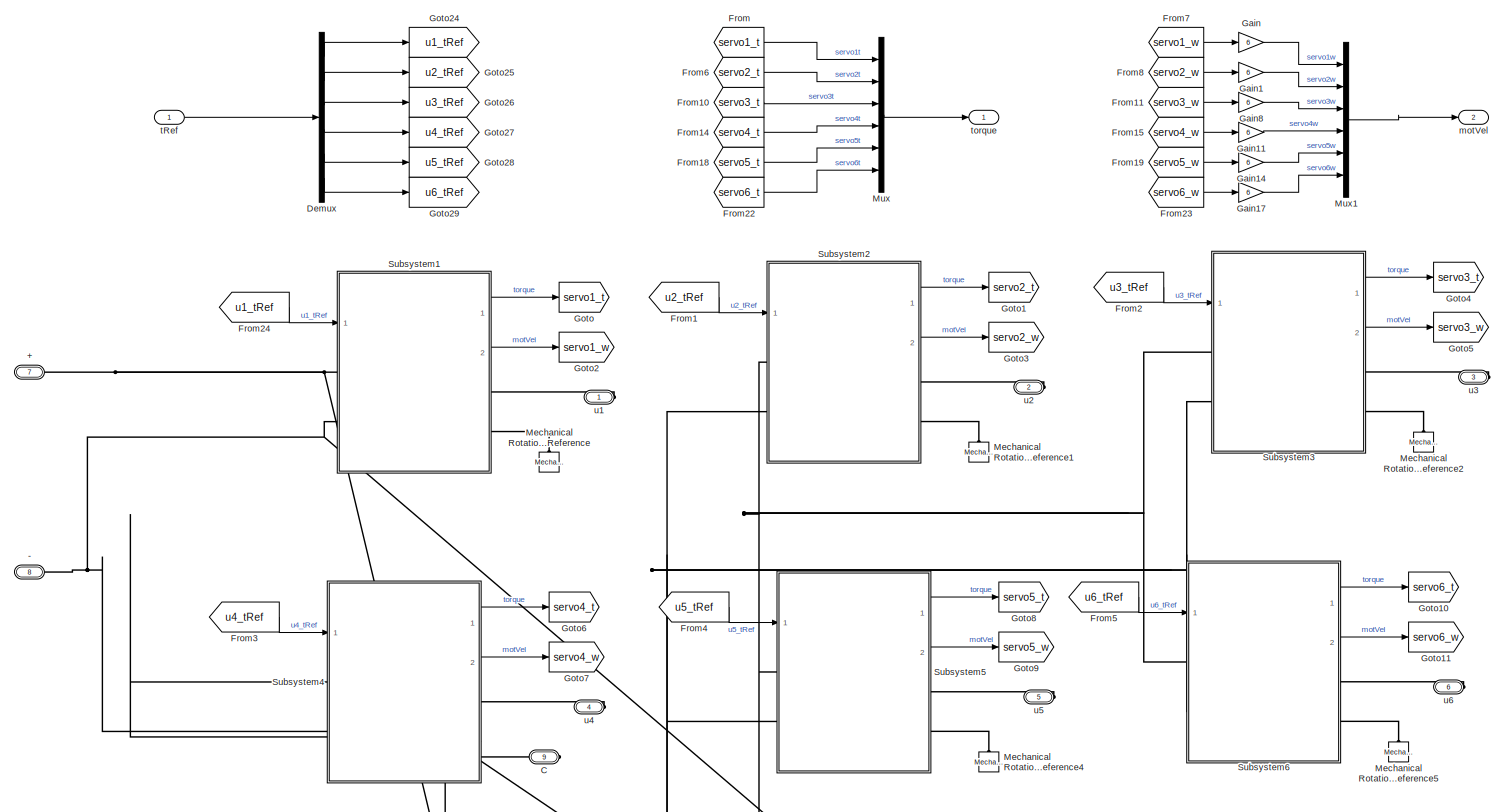
[diagram: Plant/servo system - part 1/1, full width, middle band]
BLOCK [SubSystem] Plant/servo system
  Ports = [1, 2, 0, 0, 0, 2, 7]
  RequestExecContextInheritance = off
BLOCK [PMIOPort] Plant/servo system/+
  Port = 7
  Side = Left
BLOCK [PMIOPort] Plant/servo system/-
  Port = 8
  Side = Left
BLOCK [PMIOPort] Plant/servo system/C
  Port = 9
  Side = Right
BLOCK [Demux] Plant/servo system/Demux
  DisplayOption = bar
  Outputs = 6
  Ports = [1, 6]
BLOCK [From] Plant/servo system/From
  GotoTag = servo1_t
BLOCK [From] Plant/servo system/From1
  GotoTag = u2_tRef
BLOCK [From] Plant/servo system/From10
  GotoTag = servo3_t
BLOCK [From] Plant/servo system/From11
  GotoTag = servo3_w
BLOCK [From] Plant/servo system/From14
  GotoTag = servo4_t
BLOCK [From] Plant/servo system/From15
  GotoTag = servo4_w
BLOCK [From] Plant/servo system/From18
  GotoTag = servo5_t
BLOCK [From] Plant/servo system/From19
  GotoTag = servo5_w
BLOCK [From] Plant/servo system/From2
  GotoTag = u3_tRef
BLOCK [From] Plant/servo system/From22
  GotoTag = servo6_t
BLOCK [From] Plant/servo system/From23
  GotoTag = servo6_w
BLOCK [From] Plant/servo system/From24
  GotoTag = u1_tRef
BLOCK [From] Plant/servo system/From3
  GotoTag = u4_tRef
BLOCK [From] Plant/servo system/From4
  GotoTag = u5_tRef
BLOCK [From] Plant/servo system/From5
  GotoTag = u6_tRef
BLOCK [From] Plant/servo system/From6
  GotoTag = servo2_t
BLOCK [From] Plant/servo system/From7
  GotoTag = servo1_w
BLOCK [From] Plant/servo system/From8
  GotoTag = servo2_w
BLOCK [Gain] Plant/servo system/Gain
  Gain = 6
  OutDataTypeStr = Inherit: Inherit via internal rule
  ParamDataTypeStr = Inherit: Inherit via internal rule
  SaturateOnIntegerOverflow = off
BLOCK [Gain] Plant/servo system/Gain1
  Gain = 6
  OutDataTypeStr = Inherit: Inherit via internal rule
  ParamDataTypeStr = Inherit: Inherit via internal rule
  SaturateOnIntegerOverflow = off
BLOCK [Gain] Plant/servo system/Gain11
  Gain = 6
  OutDataTypeStr = Inherit: Inherit via internal rule
  ParamDataTypeStr = Inherit: Inherit via internal rule
  SaturateOnIntegerOverflow = off
BLOCK [Gain] Plant/servo system/Gain14
  Gain = 6
  OutDataTypeStr = Inherit: Inherit via internal rule
  ParamDataTypeStr = Inherit: Inherit via internal rule
  SaturateOnIntegerOverflow = off
BLOCK [Gain] Plant/servo system/Gain17
  Gain = 6
  OutDataTypeStr = Inherit: Inherit via internal rule
  ParamDataTypeStr = Inherit: Inherit via internal rule
  SaturateOnIntegerOverflow = off
BLOCK [Gain] Plant/servo system/Gain8
  Gain = 6
  OutDataTypeStr = Inherit: Inherit via internal rule
  ParamDataTypeStr = Inherit: Inherit via internal rule
  SaturateOnIntegerOverflow = off
BLOCK [Goto] Plant/servo system/Goto
  GotoTag = servo1_t
BLOCK [Goto] Plant/servo system/Goto1
  GotoTag = servo2_t
BLOCK [Goto] Plant/servo system/Goto10
  GotoTag = servo6_t
BLOCK [Goto] Plant/servo system/Goto11
  GotoTag = servo6_w
BLOCK [Goto] Plant/servo system/Goto2
  GotoTag = servo1_w
BLOCK [Goto] Plant/servo system/Goto24
  GotoTag = u1_tRef
BLOCK [Goto] Plant/servo system/Goto25
  GotoTag = u2_tRef
BLOCK [Goto] Plant/servo system/Goto26
  GotoTag = u3_tRef
BLOCK [Goto] Plant/servo system/Goto27
  GotoTag = u4_tRef
BLOCK [Goto] Plant/servo system/Goto28
  GotoTag = u5_tRef
BLOCK [Goto] Plant/servo system/Goto29
  GotoTag = u6_tRef
BLOCK [Goto] Plant/servo system/Goto3
  GotoTag = servo2_w
BLOCK [Goto] Plant/servo system/Goto4
  GotoTag = servo3_t
BLOCK [Goto] Plant/servo system/Goto5
  GotoTag = servo3_w
BLOCK [Goto] Plant/servo system/Goto6
  GotoTag = servo4_t
BLOCK [Goto] Plant/servo system/Goto7
  GotoTag = servo4_w
BLOCK [Goto] Plant/servo system/Goto8
  GotoTag = servo5_t
BLOCK [Goto] Plant/servo system/Goto9
  GotoTag = servo5_w
BLOCK [Reference] Plant/servo system/Mechanical Rotational Reference  REF=fl_lib/Mechanical/Rotational Elements/Mechanical
Rotational Reference
  Ports = [0, 0, 0, 0, 0, 1]
  SourceBlock = fl_lib/Mechanical/Rotational Elements/Mechanical\nRotational Reference
  SourceProductBaseCode = SS
  SourceProductName = Simscape
  SourceType = Mechanical\nRotational Reference
BLOCK [Reference] Plant/servo system/Mechanical Rotational Reference1  REF=fl_lib/Mechanical/Rotational Elements/Mechanical
Rotational Reference
  Ports = [0, 0, 0, 0, 0, 1]
  SourceBlock = fl_lib/Mechanical/Rotational Elements/Mechanical\nRotational Reference
  SourceProductBaseCode = SS
  SourceProductName = Simscape
  SourceType = Mechanical\nRotational Reference
BLOCK [Reference] Plant/servo system/Mechanical Rotational Reference2  REF=fl_lib/Mechanical/Rotational Elements/Mechanical
Rotational Reference
  Ports = [0, 0, 0, 0, 0, 1]
  SourceBlock = fl_lib/Mechanical/Rotational Elements/Mechanical\nRotational Reference
  SourceProductBaseCode = SS
  SourceProductName = Simscape
  SourceType = Mechanical\nRotational Reference
BLOCK [Reference] Plant/servo system/Mechanical Rotational Reference4  REF=fl_lib/Mechanical/Rotational Elements/Mechanical
Rotational Reference
  Ports = [0, 0, 0, 0, 0, 1]
  SourceBlock = fl_lib/Mechanical/Rotational Elements/Mechanical\nRotational Reference
  SourceProductBaseCode = SS
  SourceProductName = Simscape
  SourceType = Mechanical\nRotational Reference
BLOCK [Reference] Plant/servo system/Mechanical Rotational Reference5  REF=fl_lib/Mechanical/Rotational Elements/Mechanical
Rotational Reference
  Ports = [0, 0, 0, 0, 0, 1]
  SourceBlock = fl_lib/Mechanical/Rotational Elements/Mechanical\nRotational Reference
  SourceProductBaseCode = SS
  SourceProductName = Simscape
  SourceType = Mechanical\nRotational Reference
BLOCK [Mux] Plant/servo system/Mux
  DisplayOption = bar
  Inputs = 6
  Ports = [6, 1]
BLOCK [Mux] Plant/servo system/Mux1
  DisplayOption = bar
  Inputs = 6
  Ports = [6, 1]
BLOCK [SubSystem] Plant/servo system/Subsystem1
  Ports = [1, 2, 0, 0, 0, 2, 2]
  RequestExecContextInheritance = off
BLOCK [PMIOPort] Plant/servo system/Subsystem1/+
  Side = Left
BLOCK [PMIOPort] Plant/servo system/Subsystem1/-
  Port = 2
  Side = Left
BLOCK [PMIOPort] Plant/servo system/Subsystem1/C1
  Port = 4
  Side = Right
BLOCK [PMIOPort] Plant/servo system/Subsystem1/R1
  Port = 3
  Side = Right
BLOCK [SubSystem] Plant/servo system/Subsystem1/Subsystem
  Ports = [1, 2, 0, 0, 0, 2, 2]
  RequestExecContextInheritance = off
BLOCK [PMIOPort] Plant/servo system/Subsystem1/Subsystem/+
  Side = Left
BLOCK [PMIOPort] Plant/servo system/Subsystem1/Subsystem/-
  Port = 2
  Side = Left
BLOCK [PMIOPort] Plant/servo system/Subsystem1/Subsystem/C
  Port = 4
  Side = Right
BLOCK [Reference] Plant/servo system/Subsystem1/Subsystem/Gear Box  REF=fl_lib/Mechanical/Mechanisms/Gear Box
  Ports = [0, 0, 0, 0, 0, 1, 1]
  SourceBlock = fl_lib/Mechanical/Mechanisms/Gear Box
  SourceProductBaseCode = SS
  SourceProductName = Simscape
  SourceType = Gear Box
BLOCK [Reference] Plant/servo system/Subsystem1/Subsystem/Ideal Torque Sensor  REF=fl_lib/Mechanical/Mechanical Sensors/Ideal Torque Sensor
  Ports = [0, 0, 0, 0, 0, 1, 2]
  SourceBlock = fl_lib/Mechanical/Mechanical Sensors/Ideal Torque Sensor
  SourceProductBaseCode = SS
  SourceProductName = Simscape
  SourceType = Ideal Torque Sensor
BLOCK [Reference] Plant/servo system/Subsystem1/Subsystem/PS-Simulink Converter1  REF=nesl_utility/PS-Simulink
Converter
  Ports = [0, 1, 0, 0, 0, 1]
  SourceBlock = nesl_utility/PS-Simulink\nConverter
  SourceProductBaseCode = SS
  SourceProductName = Simscape
  SourceType = PS-Simulink\nConverter
BLOCK [Reference] Plant/servo system/Subsystem1/Subsystem/PS-Simulink Converter2  REF=nesl_utility/PS-Simulink
Converter
  Ports = [0, 1, 0, 0, 0, 1]
  SourceBlock = nesl_utility/PS-Simulink\nConverter
  SourceProductBaseCode = SS
  SourceProductName = Simscape
  SourceType = PS-Simulink\nConverter
BLOCK [PMIOPort] Plant/servo system/Subsystem1/Subsystem/R
  Port = 3
  Side = Right
BLOCK [Reference] Plant/servo system/Subsystem1/Subsystem/Servomotor  REF=ee_lib/Electromechanical/Permanent Magnet/Simplified PMSM
Drive
  Ports = [0, 0, 0, 0, 0, 3, 3]
  SourceBlock = ee_lib/Electromechanical/Permanent Magnet/Simplified PMSM\nDrive
  SourceProductBaseCode = PS
  SourceProductName = Simscape Electrical
  SourceType = Simplified PMSM\nDrive
BLOCK [Reference] Plant/servo system/Subsystem1/Subsystem/Simulink-PS Converter  REF=nesl_utility/Simulink-PS
Converter
  Ports = [1, 0, 0, 0, 0, 0, 1]
  SourceBlock = nesl_utility/Simulink-PS\nConverter
  SourceProductBaseCode = SS
  SourceProductName = Simscape
  SourceType = Simulink-PS\nConverter
BLOCK [Outport] Plant/servo system/Subsystem1/Subsystem/motVel
  IconDisplay = Port number
  Port = 2
  Unit = rpm
BLOCK [Outport] Plant/servo system/Subsystem1/Subsystem/torque
  IconDisplay = Port number
BLOCK [Inport] Plant/servo system/Subsystem1/Subsystem/torqueCommand
  IconDisplay = Port number
BLOCK [Outport] Plant/servo system/Subsystem1/motVel1
  IconDisplay = Port number
  Port = 2
  Unit = rpm
BLOCK [Outport] Plant/servo system/Subsystem1/torque1
  IconDisplay = Port number
BLOCK [Inport] Plant/servo system/Subsystem1/torqueCommand
  IconDisplay = Port number
BLOCK [SubSystem] Plant/servo system/Subsystem2
  Ports = [1, 2, 0, 0, 0, 2, 2]
  RequestExecContextInheritance = off
BLOCK [PMIOPort] Plant/servo system/Subsystem2/+
  Side = Left
BLOCK [PMIOPort] Plant/servo system/Subsystem2/-
  Port = 2
  Side = Left
BLOCK [PMIOPort] Plant/servo system/Subsystem2/C1
  Port = 4
  Side = Right
BLOCK [PMIOPort] Plant/servo system/Subsystem2/R1
  Port = 3
  Side = Right
BLOCK [SubSystem] Plant/servo system/Subsystem2/Subsystem
  Ports = [1, 2, 0, 0, 0, 2, 2]
  RequestExecContextInheritance = off
BLOCK [PMIOPort] Plant/servo system/Subsystem2/Subsystem/+
  Side = Left
BLOCK [PMIOPort] Plant/servo system/Subsystem2/Subsystem/-
  Port = 2
  Side = Left
BLOCK [PMIOPort] Plant/servo system/Subsystem2/Subsystem/C
  Port = 4
  Side = Right
BLOCK [Reference] Plant/servo system/Subsystem2/Subsystem/Gear Box  REF=fl_lib/Mechanical/Mechanisms/Gear Box
  Ports = [0, 0, 0, 0, 0, 1, 1]
  SourceBlock = fl_lib/Mechanical/Mechanisms/Gear Box
  SourceProductBaseCode = SS
  SourceProductName = Simscape
  SourceType = Gear Box
BLOCK [Reference] Plant/servo system/Subsystem2/Subsystem/Ideal Torque Sensor  REF=fl_lib/Mechanical/Mechanical Sensors/Ideal Torque Sensor
  Ports = [0, 0, 0, 0, 0, 1, 2]
  SourceBlock = fl_lib/Mechanical/Mechanical Sensors/Ideal Torque Sensor
  SourceProductBaseCode = SS
  SourceProductName = Simscape
  SourceType = Ideal Torque Sensor
BLOCK [Reference] Plant/servo system/Subsystem2/Subsystem/PS-Simulink Converter1  REF=nesl_utility/PS-Simulink
Converter
  Ports = [0, 1, 0, 0, 0, 1]
  SourceBlock = nesl_utility/PS-Simulink\nConverter
  SourceProductBaseCode = SS
  SourceProductName = Simscape
  SourceType = PS-Simulink\nConverter
BLOCK [Reference] Plant/servo system/Subsystem2/Subsystem/PS-Simulink Converter2  REF=nesl_utility/PS-Simulink
Converter
  Ports = [0, 1, 0, 0, 0, 1]
  SourceBlock = nesl_utility/PS-Simulink\nConverter
  SourceProductBaseCode = SS
  SourceProductName = Simscape
  SourceType = PS-Simulink\nConverter
BLOCK [PMIOPort] Plant/servo system/Subsystem2/Subsystem/R
  Port = 3
  Side = Right
BLOCK [Reference] Plant/servo system/Subsystem2/Subsystem/Servomotor  REF=ee_lib/Electromechanical/Permanent Magnet/Simplified PMSM
Drive
  Ports = [0, 0, 0, 0, 0, 3, 3]
  SourceBlock = ee_lib/Electromechanical/Permanent Magnet/Simplified PMSM\nDrive
  SourceProductBaseCode = PS
  SourceProductName = Simscape Electrical
  SourceType = Simplified PMSM\nDrive
BLOCK [Reference] Plant/servo system/Subsystem2/Subsystem/Simulink-PS Converter  REF=nesl_utility/Simulink-PS
Converter
  Ports = [1, 0, 0, 0, 0, 0, 1]
  SourceBlock = nesl_utility/Simulink-PS\nConverter
  SourceProductBaseCode = SS
  SourceProductName = Simscape
  SourceType = Simulink-PS\nConverter
BLOCK [Outport] Plant/servo system/Subsystem2/Subsystem/motVel
  IconDisplay = Port number
  Port = 2
  Unit = rpm
BLOCK [Outport] Plant/servo system/Subsystem2/Subsystem/torque
  IconDisplay = Port number
BLOCK [Inport] Plant/servo system/Subsystem2/Subsystem/torqueCommand
  IconDisplay = Port number
BLOCK [Outport] Plant/servo system/Subsystem2/motVel1
  IconDisplay = Port number
  Port = 2
  Unit = rpm
BLOCK [Outport] Plant/servo system/Subsystem2/torque1
  IconDisplay = Port number
BLOCK [Inport] Plant/servo system/Subsystem2/torqueCommand
  IconDisplay = Port number
BLOCK [SubSystem] Plant/servo system/Subsystem3
  Ports = [1, 2, 0, 0, 0, 2, 2]
  RequestExecContextInheritance = off
BLOCK [PMIOPort] Plant/servo system/Subsystem3/+
  Side = Left
BLOCK [PMIOPort] Plant/servo system/Subsystem3/-
  Port = 2
  Side = Left
BLOCK [PMIOPort] Plant/servo system/Subsystem3/C1
  Port = 4
  Side = Right
BLOCK [PMIOPort] Plant/servo system/Subsystem3/R1
  Port = 3
  Side = Right
BLOCK [SubSystem] Plant/servo system/Subsystem3/Subsystem
  Ports = [1, 2, 0, 0, 0, 2, 2]
  RequestExecContextInheritance = off
BLOCK [PMIOPort] Plant/servo system/Subsystem3/Subsystem/+
  Side = Left
BLOCK [PMIOPort] Plant/servo system/Subsystem3/Subsystem/-
  Port = 2
  Side = Left
BLOCK [PMIOPort] Plant/servo system/Subsystem3/Subsystem/C
  Port = 4
  Side = Right
BLOCK [Reference] Plant/servo system/Subsystem3/Subsystem/Gear Box  REF=fl_lib/Mechanical/Mechanisms/Gear Box
  Ports = [0, 0, 0, 0, 0, 1, 1]
  SourceBlock = fl_lib/Mechanical/Mechanisms/Gear Box
  SourceProductBaseCode = SS
  SourceProductName = Simscape
  SourceType = Gear Box
BLOCK [Reference] Plant/servo system/Subsystem3/Subsystem/Ideal Torque Sensor  REF=fl_lib/Mechanical/Mechanical Sensors/Ideal Torque Sensor
  Ports = [0, 0, 0, 0, 0, 1, 2]
  SourceBlock = fl_lib/Mechanical/Mechanical Sensors/Ideal Torque Sensor
  SourceProductBaseCode = SS
  SourceProductName = Simscape
  SourceType = Ideal Torque Sensor
BLOCK [Reference] Plant/servo system/Subsystem3/Subsystem/PS-Simulink Converter1  REF=nesl_utility/PS-Simulink
Converter
  Ports = [0, 1, 0, 0, 0, 1]
  SourceBlock = nesl_utility/PS-Simulink\nConverter
  SourceProductBaseCode = SS
  SourceProductName = Simscape
  SourceType = PS-Simulink\nConverter
BLOCK [Reference] Plant/servo system/Subsystem3/Subsystem/PS-Simulink Converter2  REF=nesl_utility/PS-Simulink
Converter
  Ports = [0, 1, 0, 0, 0, 1]
  SourceBlock = nesl_utility/PS-Simulink\nConverter
  SourceProductBaseCode = SS
  SourceProductName = Simscape
  SourceType = PS-Simulink\nConverter
BLOCK [PMIOPort] Plant/servo system/Subsystem3/Subsystem/R
  Port = 3
  Side = Right
BLOCK [Reference] Plant/servo system/Subsystem3/Subsystem/Servomotor  REF=ee_lib/Electromechanical/Permanent Magnet/Simplified PMSM
Drive
  Ports = [0, 0, 0, 0, 0, 3, 3]
  SourceBlock = ee_lib/Electromechanical/Permanent Magnet/Simplified PMSM\nDrive
  SourceProductBaseCode = PS
  SourceProductName = Simscape Electrical
  SourceType = Simplified PMSM\nDrive
BLOCK [Reference] Plant/servo system/Subsystem3/Subsystem/Simulink-PS Converter  REF=nesl_utility/Simulink-PS
Converter
  Ports = [1, 0, 0, 0, 0, 0, 1]
  SourceBlock = nesl_utility/Simulink-PS\nConverter
  SourceProductBaseCode = SS
  SourceProductName = Simscape
  SourceType = Simulink-PS\nConverter
BLOCK [Outport] Plant/servo system/Subsystem3/Subsystem/motVel
  IconDisplay = Port number
  Port = 2
  Unit = rpm
BLOCK [Outport] Plant/servo system/Subsystem3/Subsystem/torque
  IconDisplay = Port number
BLOCK [Inport] Plant/servo system/Subsystem3/Subsystem/torqueCommand
  IconDisplay = Port number
BLOCK [Outport] Plant/servo system/Subsystem3/motVel1
  IconDisplay = Port number
  Port = 2
  Unit = rpm
BLOCK [Outport] Plant/servo system/Subsystem3/torque1
  IconDisplay = Port number
BLOCK [Inport] Plant/servo system/Subsystem3/torqueCommand
  IconDisplay = Port number
BLOCK [SubSystem] Plant/servo system/Subsystem4
  Ports = [1, 2, 0, 0, 0, 2, 2]
  RequestExecContextInheritance = off
BLOCK [PMIOPort] Plant/servo system/Subsystem4/+
  Side = Left
BLOCK [PMIOPort] Plant/servo system/Subsystem4/-
  Port = 2
  Side = Left
BLOCK [PMIOPort] Plant/servo system/Subsystem4/C1
  Port = 4
  Side = Right
BLOCK [PMIOPort] Plant/servo system/Subsystem4/R1
  Port = 3
  Side = Right
BLOCK [SubSystem] Plant/servo system/Subsystem4/Subsystem
  Ports = [1, 2, 0, 0, 0, 2, 2]
  RequestExecContextInheritance = off
BLOCK [PMIOPort] Plant/servo system/Subsystem4/Subsystem/+
  Side = Left
BLOCK [PMIOPort] Plant/servo system/Subsystem4/Subsystem/-
  Port = 2
  Side = Left
BLOCK [PMIOPort] Plant/servo system/Subsystem4/Subsystem/C
  Port = 4
  Side = Right
BLOCK [Reference] Plant/servo system/Subsystem4/Subsystem/Gear Box  REF=fl_lib/Mechanical/Mechanisms/Gear Box
  Ports = [0, 0, 0, 0, 0, 1, 1]
  SourceBlock = fl_lib/Mechanical/Mechanisms/Gear Box
  SourceProductBaseCode = SS
  SourceProductName = Simscape
  SourceType = Gear Box
BLOCK [Reference] Plant/servo system/Subsystem4/Subsystem/Ideal Torque Sensor  REF=fl_lib/Mechanical/Mechanical Sensors/Ideal Torque Sensor
  Ports = [0, 0, 0, 0, 0, 1, 2]
  SourceBlock = fl_lib/Mechanical/Mechanical Sensors/Ideal Torque Sensor
  SourceProductBaseCode = SS
  SourceProductName = Simscape
  SourceType = Ideal Torque Sensor
BLOCK [Reference] Plant/servo system/Subsystem4/Subsystem/PS-Simulink Converter1  REF=nesl_utility/PS-Simulink
Converter
  Ports = [0, 1, 0, 0, 0, 1]
  SourceBlock = nesl_utility/PS-Simulink\nConverter
  SourceProductBaseCode = SS
  SourceProductName = Simscape
  SourceType = PS-Simulink\nConverter
BLOCK [Reference] Plant/servo system/Subsystem4/Subsystem/PS-Simulink Converter2  REF=nesl_utility/PS-Simulink
Converter
  Ports = [0, 1, 0, 0, 0, 1]
  SourceBlock = nesl_utility/PS-Simulink\nConverter
  SourceProductBaseCode = SS
  SourceProductName = Simscape
  SourceType = PS-Simulink\nConverter
BLOCK [PMIOPort] Plant/servo system/Subsystem4/Subsystem/R
  Port = 3
  Side = Right
BLOCK [Reference] Plant/servo system/Subsystem4/Subsystem/Servomotor  REF=ee_lib/Electromechanical/Permanent Magnet/Simplified PMSM
Drive
  Ports = [0, 0, 0, 0, 0, 3, 3]
  SourceBlock = ee_lib/Electromechanical/Permanent Magnet/Simplified PMSM\nDrive
  SourceProductBaseCode = PS
  SourceProductName = Simscape Electrical
  SourceType = Simplified PMSM\nDrive
BLOCK [Reference] Plant/servo system/Subsystem4/Subsystem/Simulink-PS Converter  REF=nesl_utility/Simulink-PS
Converter
  Ports = [1, 0, 0, 0, 0, 0, 1]
  SourceBlock = nesl_utility/Simulink-PS\nConverter
  SourceProductBaseCode = SS
  SourceProductName = Simscape
  SourceType = Simulink-PS\nConverter
BLOCK [Outport] Plant/servo system/Subsystem4/Subsystem/motVel
  IconDisplay = Port number
  Port = 2
  Unit = rpm
BLOCK [Outport] Plant/servo system/Subsystem4/Subsystem/torque
  IconDisplay = Port number
BLOCK [Inport] Plant/servo system/Subsystem4/Subsystem/torqueCommand
  IconDisplay = Port number
BLOCK [Outport] Plant/servo system/Subsystem4/motVel1
  IconDisplay = Port number
  Port = 2
  Unit = rpm
BLOCK [Outport] Plant/servo system/Subsystem4/torque1
  IconDisplay = Port number
BLOCK [Inport] Plant/servo system/Subsystem4/torqueCommand
  IconDisplay = Port number
BLOCK [SubSystem] Plant/servo system/Subsystem5
  Ports = [1, 2, 0, 0, 0, 2, 2]
  RequestExecContextInheritance = off
BLOCK [PMIOPort] Plant/servo system/Subsystem5/+
  Side = Left
BLOCK [PMIOPort] Plant/servo system/Subsystem5/-
  Port = 2
  Side = Left
BLOCK [PMIOPort] Plant/servo system/Subsystem5/C1
  Port = 4
  Side = Right
BLOCK [PMIOPort] Plant/servo system/Subsystem5/R1
  Port = 3
  Side = Right
BLOCK [SubSystem] Plant/servo system/Subsystem5/Subsystem
  Ports = [1, 2, 0, 0, 0, 2, 2]
  RequestExecContextInheritance = off
BLOCK [PMIOPort] Plant/servo system/Subsystem5/Subsystem/+
  Side = Left
BLOCK [PMIOPort] Plant/servo system/Subsystem5/Subsystem/-
  Port = 2
  Side = Left
BLOCK [PMIOPort] Plant/servo system/Subsystem5/Subsystem/C
  Port = 4
  Side = Right
BLOCK [Reference] Plant/servo system/Subsystem5/Subsystem/Gear Box  REF=fl_lib/Mechanical/Mechanisms/Gear Box
  Ports = [0, 0, 0, 0, 0, 1, 1]
  SourceBlock = fl_lib/Mechanical/Mechanisms/Gear Box
  SourceProductBaseCode = SS
  SourceProductName = Simscape
  SourceType = Gear Box
BLOCK [Reference] Plant/servo system/Subsystem5/Subsystem/Ideal Torque Sensor  REF=fl_lib/Mechanical/Mechanical Sensors/Ideal Torque Sensor
  Ports = [0, 0, 0, 0, 0, 1, 2]
  SourceBlock = fl_lib/Mechanical/Mechanical Sensors/Ideal Torque Sensor
  SourceProductBaseCode = SS
  SourceProductName = Simscape
  SourceType = Ideal Torque Sensor
BLOCK [Reference] Plant/servo system/Subsystem5/Subsystem/PS-Simulink Converter1  REF=nesl_utility/PS-Simulink
Converter
  Ports = [0, 1, 0, 0, 0, 1]
  SourceBlock = nesl_utility/PS-Simulink\nConverter
  SourceProductBaseCode = SS
  SourceProductName = Simscape
  SourceType = PS-Simulink\nConverter
BLOCK [Reference] Plant/servo system/Subsystem5/Subsystem/PS-Simulink Converter2  REF=nesl_utility/PS-Simulink
Converter
  Ports = [0, 1, 0, 0, 0, 1]
  SourceBlock = nesl_utility/PS-Simulink\nConverter
  SourceProductBaseCode = SS
  SourceProductName = Simscape
  SourceType = PS-Simulink\nConverter
BLOCK [PMIOPort] Plant/servo system/Subsystem5/Subsystem/R
  Port = 3
  Side = Right
BLOCK [Reference] Plant/servo system/Subsystem5/Subsystem/Servomotor  REF=ee_lib/Electromechanical/Permanent Magnet/Simplified PMSM
Drive
  Ports = [0, 0, 0, 0, 0, 3, 3]
  SourceBlock = ee_lib/Electromechanical/Permanent Magnet/Simplified PMSM\nDrive
  SourceProductBaseCode = PS
  SourceProductName = Simscape Electrical
  SourceType = Simplified PMSM\nDrive
BLOCK [Reference] Plant/servo system/Subsystem5/Subsystem/Simulink-PS Converter  REF=nesl_utility/Simulink-PS
Converter
  Ports = [1, 0, 0, 0, 0, 0, 1]
  SourceBlock = nesl_utility/Simulink-PS\nConverter
  SourceProductBaseCode = SS
  SourceProductName = Simscape
  SourceType = Simulink-PS\nConverter
BLOCK [Outport] Plant/servo system/Subsystem5/Subsystem/motVel
  IconDisplay = Port number
  Port = 2
  Unit = rpm
BLOCK [Outport] Plant/servo system/Subsystem5/Subsystem/torque
  IconDisplay = Port number
BLOCK [Inport] Plant/servo system/Subsystem5/Subsystem/torqueCommand
  IconDisplay = Port number
BLOCK [Outport] Plant/servo system/Subsystem5/motVel1
  IconDisplay = Port number
  Port = 2
  Unit = rpm
BLOCK [Outport] Plant/servo system/Subsystem5/torque1
  IconDisplay = Port number
BLOCK [Inport] Plant/servo system/Subsystem5/torqueCommand
  IconDisplay = Port number
BLOCK [SubSystem] Plant/servo system/Subsystem6
  Ports = [1, 2, 0, 0, 0, 2, 2]
  RequestExecContextInheritance = off
BLOCK [PMIOPort] Plant/servo system/Subsystem6/+
  Side = Left
BLOCK [PMIOPort] Plant/servo system/Subsystem6/-
  Port = 2
  Side = Left
BLOCK [PMIOPort] Plant/servo system/Subsystem6/C1
  Port = 4
  Side = Right
BLOCK [PMIOPort] Plant/servo system/Subsystem6/R1
  Port = 3
  Side = Right
BLOCK [SubSystem] Plant/servo system/Subsystem6/Subsystem
  Ports = [1, 2, 0, 0, 0, 2, 2]
  RequestExecContextInheritance = off
BLOCK [PMIOPort] Plant/servo system/Subsystem6/Subsystem/+
  Side = Left
BLOCK [PMIOPort] Plant/servo system/Subsystem6/Subsystem/-
  Port = 2
  Side = Left
BLOCK [PMIOPort] Plant/servo system/Subsystem6/Subsystem/C
  Port = 4
  Side = Right
BLOCK [Reference] Plant/servo system/Subsystem6/Subsystem/Gear Box  REF=fl_lib/Mechanical/Mechanisms/Gear Box
  Ports = [0, 0, 0, 0, 0, 1, 1]
  SourceBlock = fl_lib/Mechanical/Mechanisms/Gear Box
  SourceProductBaseCode = SS
  SourceProductName = Simscape
  SourceType = Gear Box
BLOCK [Reference] Plant/servo system/Subsystem6/Subsystem/Ideal Torque Sensor  REF=fl_lib/Mechanical/Mechanical Sensors/Ideal Torque Sensor
  Ports = [0, 0, 0, 0, 0, 1, 2]
  SourceBlock = fl_lib/Mechanical/Mechanical Sensors/Ideal Torque Sensor
  SourceProductBaseCode = SS
  SourceProductName = Simscape
  SourceType = Ideal Torque Sensor
BLOCK [Reference] Plant/servo system/Subsystem6/Subsystem/PS-Simulink Converter1  REF=nesl_utility/PS-Simulink
Converter
  Ports = [0, 1, 0, 0, 0, 1]
  SourceBlock = nesl_utility/PS-Simulink\nConverter
  SourceProductBaseCode = SS
  SourceProductName = Simscape
  SourceType = PS-Simulink\nConverter
BLOCK [Reference] Plant/servo system/Subsystem6/Subsystem/PS-Simulink Converter2  REF=nesl_utility/PS-Simulink
Converter
  Ports = [0, 1, 0, 0, 0, 1]
  SourceBlock = nesl_utility/PS-Simulink\nConverter
  SourceProductBaseCode = SS
  SourceProductName = Simscape
  SourceType = PS-Simulink\nConverter
BLOCK [PMIOPort] Plant/servo system/Subsystem6/Subsystem/R
  Port = 3
  Side = Right
BLOCK [Reference] Plant/servo system/Subsystem6/Subsystem/Servomotor  REF=ee_lib/Electromechanical/Permanent Magnet/Simplified PMSM
Drive
  Ports = [0, 0, 0, 0, 0, 3, 3]
  SourceBlock = ee_lib/Electromechanical/Permanent Magnet/Simplified PMSM\nDrive
  SourceProductBaseCode = PS
  SourceProductName = Simscape Electrical
  SourceType = Simplified PMSM\nDrive
BLOCK [Reference] Plant/servo system/Subsystem6/Subsystem/Simulink-PS Converter  REF=nesl_utility/Simulink-PS
Converter
  Ports = [1, 0, 0, 0, 0, 0, 1]
  SourceBlock = nesl_utility/Simulink-PS\nConverter
  SourceProductBaseCode = SS
  SourceProductName = Simscape
  SourceType = Simulink-PS\nConverter
BLOCK [Outport] Plant/servo system/Subsystem6/Subsystem/motVel
  IconDisplay = Port number
  Port = 2
  Unit = rpm
BLOCK [Outport] Plant/servo system/Subsystem6/Subsystem/torque
  IconDisplay = Port number
BLOCK [Inport] Plant/servo system/Subsystem6/Subsystem/torqueCommand
  IconDisplay = Port number
BLOCK [Outport] Plant/servo system/Subsystem6/motVel1
  IconDisplay = Port number
  Port = 2
  Unit = rpm
BLOCK [Outport] Plant/servo system/Subsystem6/torque1
  IconDisplay = Port number
BLOCK [Inport] Plant/servo system/Subsystem6/torqueCommand
  IconDisplay = Port number
BLOCK [Outport] Plant/servo system/motVel
  IconDisplay = Port number
  Port = 2
  Unit = deg/s
BLOCK [Inport] Plant/servo system/tRef
  IconDisplay = Port number
  Unit = N*m
BLOCK [Outport] Plant/servo system/torque
  IconDisplay = Port number
  Unit = N*m
BLOCK [PMIOPort] Plant/servo system/u1
  Side = Right
BLOCK [PMIOPort] Plant/servo system/u2
  Port = 2
  Side = Right
BLOCK [PMIOPort] Plant/servo system/u3
  Port = 3
  Side = Right
BLOCK [PMIOPort] Plant/servo system/u4
  Port = 4
  Side = Right
BLOCK [PMIOPort] Plant/servo system/u5
  Port = 5
  Side = Right
BLOCK [PMIOPort] Plant/servo system/u6
  Port = 6
  Side = Right
BLOCK [Inport] Plant/torqueReference
  IconDisplay = Port number
  Unit = N*m
BLOCK [SubSystem] RateTransitionIn
  Ports = [3, 3]
  RequestExecContextInheritance = off
  ShowPortLabels = none
BLOCK [Demux] RateTransitionIn/Demux
  DisplayOption = bar
  Outputs = 6
  Ports = [1, 6]
BLOCK [Demux] RateTransitionIn/Demux1
  DisplayOption = bar
  Outputs = 6
  Ports = [1, 6]
BLOCK [Demux] RateTransitionIn/Demux2
  DisplayOption = bar
  Outputs = 6
  Ports = [1, 6]
BLOCK [Mux] RateTransitionIn/Mux
  DisplayOption = bar
  Inputs = 6
  Ports = [6, 1]
BLOCK [Mux] RateTransitionIn/Mux1
  DisplayOption = bar
  Inputs = 6
  Ports = [6, 1]
BLOCK [Mux] RateTransitionIn/Mux2
  DisplayOption = bar
  Inputs = 6
  Ports = [6, 1]
BLOCK [RateTransition] RateTransitionIn/Rate Transition
  OutPortSampleTime = ts
BLOCK [RateTransition] RateTransitionIn/Rate Transition1
  OutPortSampleTime = ts
BLOCK [RateTransition] RateTransitionIn/Rate Transition10
  OutPortSampleTime = ts
BLOCK [RateTransition] RateTransitionIn/Rate Transition11
  OutPortSampleTime = ts
BLOCK [RateTransition] RateTransitionIn/Rate Transition12
  OutPortSampleTime = ts
BLOCK [RateTransition] RateTransitionIn/Rate Transition13
  OutPortSampleTime = ts
BLOCK [RateTransition] RateTransitionIn/Rate Transition14
  OutPortSampleTime = ts
BLOCK [RateTransition] RateTransitionIn/Rate Transition15
  OutPortSampleTime = ts
BLOCK [RateTransition] RateTransitionIn/Rate Transition16
  OutPortSampleTime = ts
BLOCK [RateTransition] RateTransitionIn/Rate Transition17
  OutPortSampleTime = ts
BLOCK [RateTransition] RateTransitionIn/Rate Transition2
  OutPortSampleTime = ts
BLOCK [RateTransition] RateTransitionIn/Rate Transition3
  OutPortSampleTime = ts
BLOCK [RateTransition] RateTransitionIn/Rate Transition4
  OutPortSampleTime = ts
BLOCK [RateTransition] RateTransitionIn/Rate Transition5
  OutPortSampleTime = ts
BLOCK [RateTransition] RateTransitionIn/Rate Transition6
  OutPortSampleTime = ts
BLOCK [RateTransition] RateTransitionIn/Rate Transition7
  OutPortSampleTime = ts
BLOCK [RateTransition] RateTransitionIn/Rate Transition8
  OutPortSampleTime = ts
BLOCK [RateTransition] RateTransitionIn/Rate Transition9
  OutPortSampleTime = ts
BLOCK [Inport] RateTransitionIn/ServoPositionRefIn
  IconDisplay = Port number
  Unit = deg
BLOCK [Outport] RateTransitionIn/ServoPositionRefOut
  IconDisplay = Port number
BLOCK [Inport] RateTransitionIn/joints_AngleIn
  IconDisplay = Port number
  Port = 2
  Unit = deg
BLOCK [Outport] RateTransitionIn/joints_AngleOut
  IconDisplay = Port number
  Port = 2
BLOCK [Inport] RateTransitionIn/joints_VelocityIn
  IconDisplay = Port number
  Port = 3
BLOCK [Outport] RateTransitionIn/joints_VelocityOut
  IconDisplay = Port number
  Port = 3
BLOCK [SubSystem] RateTransitionOut
  Ports = [1, 1]
  RequestExecContextInheritance = off
  ShowPortLabels = none
BLOCK [Demux] RateTransitionOut/Demux
  DisplayOption = bar
  Outputs = 6
  Ports = [1, 6]
BLOCK [Mux] RateTransitionOut/Mux
  DisplayOption = bar
  Inputs = 6
  Ports = [6, 1]
BLOCK [ZeroOrderHold] RateTransitionOut/Zero-Order Hold
  SampleTime = -1
BLOCK [ZeroOrderHold] RateTransitionOut/Zero-Order Hold1
  SampleTime = -1
BLOCK [ZeroOrderHold] RateTransitionOut/Zero-Order Hold2
  SampleTime = -1
BLOCK [ZeroOrderHold] RateTransitionOut/Zero-Order Hold3
  SampleTime = -1
BLOCK [ZeroOrderHold] RateTransitionOut/Zero-Order Hold4
  SampleTime = -1
BLOCK [ZeroOrderHold] RateTransitionOut/Zero-Order Hold5
  SampleTime = -1
BLOCK [Outport] RateTransitionOut/tRef
  IconDisplay = Port number
  SampleTime = ts
BLOCK [Inport] RateTransitionOut/tRefIn
  IconDisplay = Port number
  Unit = N*m
BLOCK [Scope] Scope
  Floating = off
  NumInputPorts = 1
  Ports = [1]
  ScopeSpecificationString = Simulink.scopes.TimeScopeBlockCfg('CurrentConfiguration', extmgr.ConfigurationSet(extmgr.Configuration('Core','General UI',true),extmgr.Configuration('Core','Source UI',true),extmgr.Configuration('Sources','WiredSimulink',true),extmgr.Configuration('Visuals','Time Domain',true,'SerializedDisplays',{struct('MinYLimReal','-186.87012','MaxYLimReal','186.86917','YLabelReal','','MinYLimMag',' 0.00000',...<+1479ch>
BLOCK [Scope] Scope1
  Floating = off
  NumInputPorts = 1
  Ports = [1]
  ScopeSpecificationString = Simulink.scopes.TimeScopeBlockCfg('CurrentConfiguration', extmgr.ConfigurationSet(extmgr.Configuration('Core','General UI',true),extmgr.Configuration('Core','Source UI',true),extmgr.Configuration('Sources','WiredSimulink',true,'DataLoggingVariableName','ScopeData1'),extmgr.Configuration('Visuals','Time Domain',true,'SerializedDisplays',{struct('MinYLimReal','-186.86877','MaxYLimReal','186.84177','...<+1546ch>
BLOCK [Scope] Scope2
  Floating = off
  NumInputPorts = 1
  Ports = [1]
  ScopeSpecificationString = Simulink.scopes.TimeScopeBlockCfg('CurrentConfiguration', extmgr.ConfigurationSet(extmgr.Configuration('Core','General UI',true),extmgr.Configuration('Core','Source UI',true),extmgr.Configuration('Sources','WiredSimulink',true,'DataLoggingVariableName','ScopeData1'),extmgr.Configuration('Visuals','Time Domain',true,'SerializedDisplays',{struct('MinYLimReal','-22.61991','MaxYLimReal','62.35041','YL...<+1553ch>
BLOCK [Scope] Scope3
  Floating = off
  NumInputPorts = 1
  Ports = [1]
  ScopeSpecificationString = Simulink.scopes.TimeScopeBlockCfg('CurrentConfiguration', extmgr.ConfigurationSet(extmgr.Configuration('Core','General UI',true),extmgr.Configuration('Core','Source UI',true),extmgr.Configuration('Sources','WiredSimulink',true,'DataLoggingVariableName','ScopeData2'),extmgr.Configuration('Visuals','Time Domain',true,'SerializedDisplays',{struct('MinYLimReal','-1868.68674','MaxYLimReal','1868.41679'...<+1580ch>
BLOCK [Scope] Scope4
  Floating = off
  NumInputPorts = 2
  Ports = [2]
  ScopeSpecificationString = Simulink.scopes.TimeScopeBlockCfg('CurrentConfiguration', extmgr.ConfigurationSet(extmgr.Configuration('Core','General UI',true),extmgr.Configuration('Core','Source UI',true),extmgr.Configuration('Sources','WiredSimulink',true,'DataLoggingVariableName','ScopeData1'),extmgr.Configuration('Visuals','Time Domain',true,'SerializedDisplays',{struct('MinYLimReal','-187.5','MaxYLimReal','187.5','YLabelRe...<+1630ch>
BLOCK [Scope] Scope5
  Floating = off
  NumInputPorts = 1
  Ports = [1]
  ScopeSpecificationString = Simulink.scopes.TimeScopeBlockCfg('CurrentConfiguration', extmgr.ConfigurationSet(extmgr.Configuration('Core','General UI',true),extmgr.Configuration('Core','Source UI',true),extmgr.Configuration('Sources','WiredSimulink',true,'DataLoggingVariableName','ScopeData1'),extmgr.Configuration('Visuals','Time Domain',true,'SerializedDisplays',{struct('MinYLimReal','-2.26823','MaxYLimReal','6.28671','YLab...<+1544ch>
BLOCK [ToWorkspace] To Workspace
  Decimation = 6
  FixptAsFi = on
  MaxDataPoints = inf
  Ports = [1]
  SampleTime = 2.5e-3
  SaveFormat = Timeseries
  VariableName = tau
BLOCK [ToWorkspace] To Workspace1
  Decimation = 6
  FixptAsFi = on
  MaxDataPoints = inf
  Ports = [1]
  SampleTime = 2.5e-3
  SaveFormat = Timeseries
  VariableName = tau1
BLOCK [SubSystem] r
  Ports = [0, 1]
  RequestExecContextInheritance = off
BLOCK [Mux] r/Mux
  Commented = on
  DisplayOption = bar
  Inputs = 6
  Ports = [6, 1]
BLOCK [Mux] r/Mux1
  DisplayOption = bar
  Inputs = 6
  Ports = [6, 1]
BLOCK [SubSystem] r/Subsystem
  Ports = [0, 6]
  RequestExecContextInheritance = off
BLOCK [Outport] r/Subsystem/Out1
  IconDisplay = Port number
BLOCK [Outport] r/Subsystem/Out2
  IconDisplay = Port number
  Port = 2
BLOCK [Outport] r/Subsystem/Out3
  IconDisplay = Port number
  Port = 3
BLOCK [Outport] r/Subsystem/Out4
  IconDisplay = Port number
  Port = 4
BLOCK [Outport] r/Subsystem/Out5
  IconDisplay = Port number
  Port = 5
BLOCK [Outport] r/Subsystem/Out6
  IconDisplay = Port number
  Port = 6
BLOCK [Sin] r/Subsystem/Sine Wave
  Amplitude = 50
  Ports = [0, 1]
BLOCK [Sin] r/Subsystem/Sine Wave1
  Amplitude = 40
  Ports = [0, 1]
BLOCK [Sin] r/Subsystem/Sine Wave2
  Amplitude = 20
  Ports = [0, 1]
BLOCK [Sin] r/Subsystem/Sine Wave3
  Amplitude = 20
  Ports = [0, 1]
BLOCK [Sin] r/Subsystem/Sine Wave4
  Amplitude = 150
  Ports = [0, 1]
BLOCK [Sin] r/Subsystem/Sine Wave5
  Amplitude = 100
  Ports = [0, 1]
BLOCK [SubSystem] r/Trajectories1
  ClipboardFcn = sigbuilder_block('clipboard');
  CloseFcn = sigbuilder_block('close');
  Commented = on
  ContinueFcn = sigbuilder_block('continue');
  CopyFcn = sigbuilder_block('copy');
  DeleteFcn = sigbuilder_block('delete');
  LoadFcn = sigbuilder_block('load');
  MaskHideContents = on
  ModelCloseFcn = sigbuilder_block('modelClose');
  NameChangeFcn = sigbuilder_block('namechange');
  OpenFcn = sigbuilder_block('open',[6 -16.5 1248 598.5 ]);
  PauseFcn = sigbuilder_block('pause');
  Ports = [0, 6]
  PreSaveFcn = sigbuilder_block('preSave');
  RequestExecContextInheritance = off
  StartFcn = sigbuilder_block('start');
  StopFcn = sigbuilder_block('stop');
  Tag = STV Subsys
BLOCK [Demux] r/Trajectories1/Demux
  Outputs = 6
  Ports = [1, 6]
  Tag = STV Demux
BLOCK [FromWorkspace] r/Trajectories1/FromWs
  SampleTime = 0
  Tag = STV FromWs
  VariableName = tuvar
  ZeroCross = on
BLOCK [Outport] r/Trajectories1/servopos1
  IconDisplay = Port number
  Tag = STV Outport
BLOCK [Outport] r/Trajectories1/servopos2
  IconDisplay = Port number
  Port = 2
  Tag = STV Outport
BLOCK [Outport] r/Trajectories1/servopos3
  IconDisplay = Port number
  Port = 3
  Tag = STV Outport
BLOCK [Outport] r/Trajectories1/servopos4
  IconDisplay = Port number
  Port = 4
  Tag = STV Outport
BLOCK [Outport] r/Trajectories1/servopos5
  IconDisplay = Port number
  Port = 5
  Tag = STV Outport
BLOCK [Outport] r/Trajectories1/servopos6
  IconDisplay = Port number
  Port = 6
  Tag = STV Outport
BLOCK [Outport] r/jointsAngleReference
  IconDisplay = Port number
LINE Controller/ServoPositionReference:1 -> Controller/Servomotor Position Controller:1
LINE Controller/Servomotor Position Controller/Demux1:1 -> Controller/Servomotor Position Controller/Goto6:1
LINE Controller/Servomotor Position Controller/Demux1:2 -> Controller/Servomotor Position Controller/Goto7:1
LINE Controller/Servomotor Position Controller/Demux1:3 -> Controller/Servomotor Position Controller/Goto8:1
LINE Controller/Servomotor Position Controller/Demux1:4 -> Controller/Servomotor Position Controller/Goto9:1
LINE Controller/Servomotor Position Controller/Demux1:5 -> Controller/Servomotor Position Controller/Goto10:1
LINE Controller/Servomotor Position Controller/Demux1:6 -> Controller/Servomotor Position Controller/Goto11:1
LINE Controller/Servomotor Position Controller/Demux:1 -> Controller/Servomotor Position Controller/Goto:1
LINE Controller/Servomotor Position Controller/Demux:2 -> Controller/Servomotor Position Controller/Goto1:1
LINE Controller/Servomotor Position Controller/Demux:3 -> Controller/Servomotor Position Controller/Goto2:1
LINE Controller/Servomotor Position Controller/Demux:4 -> Controller/Servomotor Position Controller/Goto3:1
LINE Controller/Servomotor Position Controller/Demux:5 -> Controller/Servomotor Position Controller/Goto4:1
LINE Controller/Servomotor Position Controller/Demux:6 -> Controller/Servomotor Position Controller/Goto5:1
LINE Controller/Servomotor Position Controller/From10:1 -> Controller/Servomotor Position Controller/filter2:1
LINE Controller/Servomotor Position Controller/From11:1 -> Controller/Servomotor Position Controller/filter2:2
LINE Controller/Servomotor Position Controller/From12:1 -> Controller/Servomotor Position Controller/filter3:1
LINE Controller/Servomotor Position Controller/From13:1 -> Controller/Servomotor Position Controller/filter3:2
LINE Controller/Servomotor Position Controller/From14:1 -> Controller/Servomotor Position Controller/filter5:1
LINE Controller/Servomotor Position Controller/From15:1 -> Controller/Servomotor Position Controller/filter5:2
LINE Controller/Servomotor Position Controller/From16:1 -> Controller/Servomotor Position Controller/filter4:1
LINE Controller/Servomotor Position Controller/From17:1 -> Controller/Servomotor Position Controller/filter4:2
LINE Controller/Servomotor Position Controller/From1:1 -> Controller/Servomotor Position Controller/filter:2
LINE Controller/Servomotor Position Controller/From2:1 -> Controller/Servomotor Position Controller/Mux:1
LINE Controller/Servomotor Position Controller/From3:1 -> Controller/Servomotor Position Controller/Mux:2
LINE Controller/Servomotor Position Controller/From4:1 -> Controller/Servomotor Position Controller/Mux:3
LINE Controller/Servomotor Position Controller/From5:1 -> Controller/Servomotor Position Controller/Mux:4
LINE Controller/Servomotor Position Controller/From6:1 -> Controller/Servomotor Position Controller/Mux:5
LINE Controller/Servomotor Position Controller/From7:1 -> Controller/Servomotor Position Controller/Mux:6
LINE Controller/Servomotor Position Controller/From8:1 -> Controller/Servomotor Position Controller/filter1:1
LINE Controller/Servomotor Position Controller/From9:1 -> Controller/Servomotor Position Controller/filter1:2
LINE Controller/Servomotor Position Controller/From:1 -> Controller/Servomotor Position Controller/filter:1
LINE Controller/Servomotor Position Controller/Mux:1 -> Controller/Servomotor Position Controller/servon_qdref:1
LINE Controller/Servomotor Position Controller/PID Controller1:1 -> Controller/Servomotor Position Controller/Goto13:1
LINE Controller/Servomotor Position Controller/PID Controller2:1 -> Controller/Servomotor Position Controller/Goto14:1
LINE Controller/Servomotor Position Controller/PID Controller3:1 -> Controller/Servomotor Position Controller/Goto15:1
LINE Controller/Servomotor Position Controller/PID Controller4:1 -> Controller/Servomotor Position Controller/Goto16:1
LINE Controller/Servomotor Position Controller/PID Controller5:1 -> Controller/Servomotor Position Controller/Goto17:1
LINE Controller/Servomotor Position Controller/PID Controller:1 -> Controller/Servomotor Position Controller/Goto12:1
LINE Controller/Servomotor Position Controller/filter/Low-Pass Filter (Discrete or Continuous):1 -> Controller/Servomotor Position Controller/filter/Sum:1
LINE Controller/Servomotor Position Controller/filter/Sum:1 -> Controller/Servomotor Position Controller/filter/control:1
LINE Controller/Servomotor Position Controller/filter/output:1 -> Controller/Servomotor Position Controller/filter/Sum:2
LINE Controller/Servomotor Position Controller/filter/reference:1 -> Controller/Servomotor Position Controller/filter/Low-Pass Filter (Discrete or Continuous):1
LINE Controller/Servomotor Position Controller/filter1/Low-Pass Filter (Discrete or Continuous):1 -> Controller/Servomotor Position Controller/filter1/Sum:1
LINE Controller/Servomotor Position Controller/filter1/Sum:1 -> Controller/Servomotor Position Controller/filter1/control:1
LINE Controller/Servomotor Position Controller/filter1/output:1 -> Controller/Servomotor Position Controller/filter1/Sum:2
LINE Controller/Servomotor Position Controller/filter1/reference:1 -> Controller/Servomotor Position Controller/filter1/Low-Pass Filter (Discrete or Continuous):1
LINE Controller/Servomotor Position Controller/filter1:1 -> Controller/Servomotor Position Controller/PID Controller1:1
LINE Controller/Servomotor Position Controller/filter2/Low-Pass Filter (Discrete or Continuous):1 -> Controller/Servomotor Position Controller/filter2/Sum:1
LINE Controller/Servomotor Position Controller/filter2/Sum:1 -> Controller/Servomotor Position Controller/filter2/control:1
LINE Controller/Servomotor Position Controller/filter2/output:1 -> Controller/Servomotor Position Controller/filter2/Sum:2
LINE Controller/Servomotor Position Controller/filter2/reference:1 -> Controller/Servomotor Position Controller/filter2/Low-Pass Filter (Discrete or Continuous):1
LINE Controller/Servomotor Position Controller/filter2:1 -> Controller/Servomotor Position Controller/PID Controller2:1
LINE Controller/Servomotor Position Controller/filter3/Low-Pass Filter (Discrete or Continuous):1 -> Controller/Servomotor Position Controller/filter3/Sum:1
LINE Controller/Servomotor Position Controller/filter3/Sum:1 -> Controller/Servomotor Position Controller/filter3/control:1
LINE Controller/Servomotor Position Controller/filter3/output:1 -> Controller/Servomotor Position Controller/filter3/Sum:2
LINE Controller/Servomotor Position Controller/filter3/reference:1 -> Controller/Servomotor Position Controller/filter3/Low-Pass Filter (Discrete or Continuous):1
LINE Controller/Servomotor Position Controller/filter3:1 -> Controller/Servomotor Position Controller/PID Controller3:1
LINE Controller/Servomotor Position Controller/filter4/Low-Pass Filter (Discrete or Continuous):1 -> Controller/Servomotor Position Controller/filter4/Sum:1
LINE Controller/Servomotor Position Controller/filter4/Sum:1 -> Controller/Servomotor Position Controller/filter4/control:1
LINE Controller/Servomotor Position Controller/filter4/output:1 -> Controller/Servomotor Position Controller/filter4/Sum:2
LINE Controller/Servomotor Position Controller/filter4/reference:1 -> Controller/Servomotor Position Controller/filter4/Low-Pass Filter (Discrete or Continuous):1
LINE Controller/Servomotor Position Controller/filter4:1 -> Controller/Servomotor Position Controller/PID Controller4:1
LINE Controller/Servomotor Position Controller/filter5/Low-Pass Filter (Discrete or Continuous):1 -> Controller/Servomotor Position Controller/filter5/Sum:1
LINE Controller/Servomotor Position Controller/filter5/Sum:1 -> Controller/Servomotor Position Controller/filter5/control:1
LINE Controller/Servomotor Position Controller/filter5/output:1 -> Controller/Servomotor Position Controller/filter5/Sum:2
LINE Controller/Servomotor Position Controller/filter5/reference:1 -> Controller/Servomotor Position Controller/filter5/Low-Pass Filter (Discrete or Continuous):1
LINE Controller/Servomotor Position Controller/filter5:1 -> Controller/Servomotor Position Controller/PID Controller5:1
LINE Controller/Servomotor Position Controller/filter:1 -> Controller/Servomotor Position Controller/PID Controller:1
LINE Controller/Servomotor Position Controller/joint_q:1 -> Controller/Servomotor Position Controller/Demux1:1
LINE Controller/Servomotor Position Controller/servon_qref:1 -> Controller/Servomotor Position Controller/Demux:1
LINE Controller/Servomotor Position Controller:1 -> Controller/Servomotor Speed Controller:1
LINE Controller/Servomotor Speed Controller/Demux1:1 -> Controller/Servomotor Speed Controller/Gain4:1
LINE Controller/Servomotor Speed Controller/Demux1:2 -> Controller/Servomotor Speed Controller/Gain5:1
LINE Controller/Servomotor Speed Controller/Demux1:3 -> Controller/Servomotor Speed Controller/Gain7:1
LINE Controller/Servomotor Speed Controller/Demux1:4 -> Controller/Servomotor Speed Controller/Gain10:1
LINE Controller/Servomotor Speed Controller/Demux1:5 -> Controller/Servomotor Speed Controller/Gain13:1
LINE Controller/Servomotor Speed Controller/Demux1:6 -> Controller/Servomotor Speed Controller/Gain16:1
LINE Controller/Servomotor Speed Controller/Demux:1 -> Controller/Servomotor Speed Controller/Gain2:1
LINE Controller/Servomotor Speed Controller/Demux:2 -> Controller/Servomotor Speed Controller/Gain3:1
LINE Controller/Servomotor Speed Controller/Demux:3 -> Controller/Servomotor Speed Controller/Gain6:1
LINE Controller/Servomotor Speed Controller/Demux:4 -> Controller/Servomotor Speed Controller/Gain9:1
LINE Controller/Servomotor Speed Controller/Demux:5 -> Controller/Servomotor Speed Controller/Gain12:1
LINE Controller/Servomotor Speed Controller/Demux:6 -> Controller/Servomotor Speed Controller/Gain15:1
LINE Controller/Servomotor Speed Controller/From12:1 -> Controller/Servomotor Speed Controller/filter4:1
LINE Controller/Servomotor Speed Controller/From13:1 -> Controller/Servomotor Speed Controller/filter4:2
LINE Controller/Servomotor Speed Controller/From16:1 -> Controller/Servomotor Speed Controller/filter2:1
LINE Controller/Servomotor Speed Controller/From17:1 -> Controller/Servomotor Speed Controller/filter2:2
LINE Controller/Servomotor Speed Controller/From20:1 -> Controller/Servomotor Speed Controller/filter5:1
LINE Controller/Servomotor Speed Controller/From21:1 -> Controller/Servomotor Speed Controller/filter5:2
LINE Controller/Servomotor Speed Controller/From24:1 -> Controller/Servomotor Speed Controller/Mux:1
LINE Controller/Servomotor Speed Controller/From25:1 -> Controller/Servomotor Speed Controller/Mux:2
LINE Controller/Servomotor Speed Controller/From26:1 -> Controller/Servomotor Speed Controller/Mux:3
LINE Controller/Servomotor Speed Controller/From27:1 -> Controller/Servomotor Speed Controller/Mux:4
LINE Controller/Servomotor Speed Controller/From28:1 -> Controller/Servomotor Speed Controller/Mux:5
LINE Controller/Servomotor Speed Controller/From29:1 -> Controller/Servomotor Speed Controller/Mux:6
LINE Controller/Servomotor Speed Controller/From4:1 -> Controller/Servomotor Speed Controller/filter:1
LINE Controller/Servomotor Speed Controller/From5:1 -> Controller/Servomotor Speed Controller/filter3:1
LINE Controller/Servomotor Speed Controller/From6:1 -> Controller/Servomotor Speed Controller/filter:2
LINE Controller/Servomotor Speed Controller/From7:1 -> Controller/Servomotor Speed Controller/filter3:2
LINE Controller/Servomotor Speed Controller/From8:1 -> Controller/Servomotor Speed Controller/filter1:1
LINE Controller/Servomotor Speed Controller/From9:1 -> Controller/Servomotor Speed Controller/filter1:2
LINE Controller/Servomotor Speed Controller/Gain10:1 -> Controller/Servomotor Speed Controller/Goto13:1
LINE Controller/Servomotor Speed Controller/Gain12:1 -> Controller/Servomotor Speed Controller/Goto16:1
LINE Controller/Servomotor Speed Controller/Gain13:1 -> Controller/Servomotor Speed Controller/Goto17:1
LINE Controller/Servomotor Speed Controller/Gain15:1 -> Controller/Servomotor Speed Controller/Goto20:1
LINE Controller/Servomotor Speed Controller/Gain16:1 -> Controller/Servomotor Speed Controller/Goto21:1
LINE Controller/Servomotor Speed Controller/Gain2:1 -> Controller/Servomotor Speed Controller/Goto4:1
LINE Controller/Servomotor Speed Controller/Gain3:1 -> Controller/Servomotor Speed Controller/Goto5:1
LINE Controller/Servomotor Speed Controller/Gain4:1 -> Controller/Servomotor Speed Controller/Goto6:1
LINE Controller/Servomotor Speed Controller/Gain5:1 -> Controller/Servomotor Speed Controller/Goto7:1
LINE Controller/Servomotor Speed Controller/Gain6:1 -> Controller/Servomotor Speed Controller/Goto8:1
LINE Controller/Servomotor Speed Controller/Gain7:1 -> Controller/Servomotor Speed Controller/Goto9:1
LINE Controller/Servomotor Speed Controller/Gain9:1 -> Controller/Servomotor Speed Controller/Goto12:1
LINE Controller/Servomotor Speed Controller/Mux:1 -> Controller/Servomotor Speed Controller/servo_Tref:1
LINE Controller/Servomotor Speed Controller/PID Controller1:1 -> Controller/Servomotor Speed Controller/Goto25:1
LINE Controller/Servomotor Speed Controller/PID Controller2:1 -> Controller/Servomotor Speed Controller/Goto26:1
LINE Controller/Servomotor Speed Controller/PID Controller3:1 -> Controller/Servomotor Speed Controller/Goto27:1
LINE Controller/Servomotor Speed Controller/PID Controller4:1 -> Controller/Servomotor Speed Controller/Goto28:1
LINE Controller/Servomotor Speed Controller/PID Controller5:1 -> Controller/Servomotor Speed Controller/Goto29:1
LINE Controller/Servomotor Speed Controller/PID Controller:1 -> Controller/Servomotor Speed Controller/Goto24:1
LINE Controller/Servomotor Speed Controller/filter/Low-Pass Filter (Discrete or Continuous):1 -> Controller/Servomotor Speed Controller/filter/Sum:1
LINE Controller/Servomotor Speed Controller/filter/Sum:1 -> Controller/Servomotor Speed Controller/filter/control:1
LINE Controller/Servomotor Speed Controller/filter/output:1 -> Controller/Servomotor Speed Controller/filter/Sum:2
LINE Controller/Servomotor Speed Controller/filter/reference:1 -> Controller/Servomotor Speed Controller/filter/Low-Pass Filter (Discrete or Continuous):1
LINE Controller/Servomotor Speed Controller/filter1/Low-Pass Filter (Discrete or Continuous):1 -> Controller/Servomotor Speed Controller/filter1/Sum:1
LINE Controller/Servomotor Speed Controller/filter1/Sum:1 -> Controller/Servomotor Speed Controller/filter1/control:1
LINE Controller/Servomotor Speed Controller/filter1/output:1 -> Controller/Servomotor Speed Controller/filter1/Sum:2
LINE Controller/Servomotor Speed Controller/filter1/reference:1 -> Controller/Servomotor Speed Controller/filter1/Low-Pass Filter (Discrete or Continuous):1
LINE Controller/Servomotor Speed Controller/filter1:1 -> Controller/Servomotor Speed Controller/PID Controller2:1
LINE Controller/Servomotor Speed Controller/filter2/Low-Pass Filter (Discrete or Continuous):1 -> Controller/Servomotor Speed Controller/filter2/Sum:1
LINE Controller/Servomotor Speed Controller/filter2/Sum:1 -> Controller/Servomotor Speed Controller/filter2/control:1
LINE Controller/Servomotor Speed Controller/filter2/output:1 -> Controller/Servomotor Speed Controller/filter2/Sum:2
LINE Controller/Servomotor Speed Controller/filter2/reference:1 -> Controller/Servomotor Speed Controller/filter2/Low-Pass Filter (Discrete or Continuous):1
LINE Controller/Servomotor Speed Controller/filter2:1 -> Controller/Servomotor Speed Controller/PID Controller4:1
LINE Controller/Servomotor Speed Controller/filter3/Low-Pass Filter (Discrete or Continuous):1 -> Controller/Servomotor Speed Controller/filter3/Sum:1
LINE Controller/Servomotor Speed Controller/filter3/Sum:1 -> Controller/Servomotor Speed Controller/filter3/control:1
LINE Controller/Servomotor Speed Controller/filter3/output:1 -> Controller/Servomotor Speed Controller/filter3/Sum:2
LINE Controller/Servomotor Speed Controller/filter3/reference:1 -> Controller/Servomotor Speed Controller/filter3/Low-Pass Filter (Discrete or Continuous):1
LINE Controller/Servomotor Speed Controller/filter3:1 -> Controller/Servomotor Speed Controller/PID Controller1:1
LINE Controller/Servomotor Speed Controller/filter4/Low-Pass Filter (Discrete or Continuous):1 -> Controller/Servomotor Speed Controller/filter4/Sum:1
LINE Controller/Servomotor Speed Controller/filter4/Sum:1 -> Controller/Servomotor Speed Controller/filter4/control:1
LINE Controller/Servomotor Speed Controller/filter4/output:1 -> Controller/Servomotor Speed Controller/filter4/Sum:2
LINE Controller/Servomotor Speed Controller/filter4/reference:1 -> Controller/Servomotor Speed Controller/filter4/Low-Pass Filter (Discrete or Continuous):1
LINE Controller/Servomotor Speed Controller/filter4:1 -> Controller/Servomotor Speed Controller/PID Controller3:1
LINE Controller/Servomotor Speed Controller/filter5/Low-Pass Filter (Discrete or Continuous):1 -> Controller/Servomotor Speed Controller/filter5/Sum:1
LINE Controller/Servomotor Speed Controller/filter5/Sum:1 -> Controller/Servomotor Speed Controller/filter5/control:1
LINE Controller/Servomotor Speed Controller/filter5/output:1 -> Controller/Servomotor Speed Controller/filter5/Sum:2
LINE Controller/Servomotor Speed Controller/filter5/reference:1 -> Controller/Servomotor Speed Controller/filter5/Low-Pass Filter (Discrete or Continuous):1
LINE Controller/Servomotor Speed Controller/filter5:1 -> Controller/Servomotor Speed Controller/PID Controller5:1
LINE Controller/Servomotor Speed Controller/filter:1 -> Controller/Servomotor Speed Controller/PID Controller:1
LINE Controller/Servomotor Speed Controller/joint_qd:1 -> Controller/Servomotor Speed Controller/Demux1:1
LINE Controller/Servomotor Speed Controller/servon_qdref:1 -> Controller/Servomotor Speed Controller/Demux:1
LINE Controller/Servomotor Speed Controller:1 -> Controller/TorqueReference:1
LINE Controller/jointsAngle:1 -> Controller/Servomotor Position Controller:2
LINE Controller/jointsVelocity:1 -> Controller/Servomotor Speed Controller:2
LINE Controller:1 -> RateTransitionOut:1
LINE Plant/robot/From10:1 -> Plant/robot/Mux:5
LINE Plant/robot/From11:1 -> Plant/robot/Mux:6
LINE Plant/robot/From1:1 -> Plant/robot/Mux1:2
LINE Plant/robot/From2:1 -> Plant/robot/Mux1:3
LINE Plant/robot/From3:1 -> Plant/robot/Mux1:4
LINE Plant/robot/From4:1 -> Plant/robot/Mux1:5
LINE Plant/robot/From5:1 -> Plant/robot/Mux1:6
LINE Plant/robot/From6:1 -> Plant/robot/Mux:1
LINE Plant/robot/From7:1 -> Plant/robot/Mux:2
LINE Plant/robot/From8:1 -> Plant/robot/Mux:3
LINE Plant/robot/From9:1 -> Plant/robot/Mux:4
LINE Plant/robot/From:1 -> Plant/robot/Mux1:1
LINE Plant/robot/Mux1:1 -> Plant/robot/w:1
LINE Plant/robot/Mux:1 -> Plant/robot/q:1
LINE Plant/robot/PS-Simulink Converter10:1 -> Plant/robot/Goto10:1
LINE Plant/robot/PS-Simulink Converter11:1 -> Plant/robot/Goto11:1
LINE Plant/robot/PS-Simulink Converter12:1 -> Plant/robot/Goto12:1
LINE Plant/robot/PS-Simulink Converter1:1 -> Plant/robot/Goto6:1
LINE Plant/robot/PS-Simulink Converter2:1 -> Plant/robot/Goto1:1
LINE Plant/robot/PS-Simulink Converter3:1 -> Plant/robot/Goto2:1
LINE Plant/robot/PS-Simulink Converter4:1 -> Plant/robot/Goto3:1
LINE Plant/robot/PS-Simulink Converter5:1 -> Plant/robot/Goto4:1
LINE Plant/robot/PS-Simulink Converter6:1 -> Plant/robot/Goto5:1
LINE Plant/robot/PS-Simulink Converter7:1 -> Plant/robot/Goto7:1
LINE Plant/robot/PS-Simulink Converter8:1 -> Plant/robot/Goto8:1
LINE Plant/robot/PS-Simulink Converter9:1 -> Plant/robot/Goto9:1
LINE Plant/robot:1 -> Plant/jointsAngle:1
LINE Plant/robot:2 -> Plant/jointsVelcocity:1
LINE Plant/servo system/Demux:1 -> Plant/servo system/Goto24:1
LINE Plant/servo system/Demux:2 -> Plant/servo system/Goto25:1
LINE Plant/servo system/Demux:3 -> Plant/servo system/Goto26:1
LINE Plant/servo system/Demux:4 -> Plant/servo system/Goto27:1
LINE Plant/servo system/Demux:5 -> Plant/servo system/Goto28:1
LINE Plant/servo system/Demux:6 -> Plant/servo system/Goto29:1
LINE Plant/servo system/From10:1 -> Plant/servo system/Mux:3
LINE Plant/servo system/From11:1 -> Plant/servo system/Gain8:1
LINE Plant/servo system/From14:1 -> Plant/servo system/Mux:4
LINE Plant/servo system/From15:1 -> Plant/servo system/Gain11:1
LINE Plant/servo system/From18:1 -> Plant/servo system/Mux:5
LINE Plant/servo system/From19:1 -> Plant/servo system/Gain14:1
LINE Plant/servo system/From1:1 -> Plant/servo system/Subsystem2:1
LINE Plant/servo system/From22:1 -> Plant/servo system/Mux:6
LINE Plant/servo system/From23:1 -> Plant/servo system/Gain17:1
LINE Plant/servo system/From24:1 -> Plant/servo system/Subsystem1:1
LINE Plant/servo system/From2:1 -> Plant/servo system/Subsystem3:1
LINE Plant/servo system/From3:1 -> Plant/servo system/Subsystem4:1
LINE Plant/servo system/From4:1 -> Plant/servo system/Subsystem5:1
LINE Plant/servo system/From5:1 -> Plant/servo system/Subsystem6:1
LINE Plant/servo system/From6:1 -> Plant/servo system/Mux:2
LINE Plant/servo system/From7:1 -> Plant/servo system/Gain:1
LINE Plant/servo system/From8:1 -> Plant/servo system/Gain1:1
LINE Plant/servo system/From:1 -> Plant/servo system/Mux:1
LINE Plant/servo system/Gain11:1 -> Plant/servo system/Mux1:4
LINE Plant/servo system/Gain14:1 -> Plant/servo system/Mux1:5
LINE Plant/servo system/Gain17:1 -> Plant/servo system/Mux1:6
LINE Plant/servo system/Gain1:1 -> Plant/servo system/Mux1:2
LINE Plant/servo system/Gain8:1 -> Plant/servo system/Mux1:3
LINE Plant/servo system/Gain:1 -> Plant/servo system/Mux1:1
LINE Plant/servo system/Mux1:1 -> Plant/servo system/motVel:1
LINE Plant/servo system/Mux:1 -> Plant/servo system/torque:1
LINE Plant/servo system/Subsystem1/Subsystem/PS-Simulink Converter1:1 -> Plant/servo system/Subsystem1/Subsystem/torque:1
LINE Plant/servo system/Subsystem1/Subsystem/PS-Simulink Converter2:1 -> Plant/servo system/Subsystem1/Subsystem/motVel:1
LINE Plant/servo system/Subsystem1/Subsystem/torqueCommand:1 -> Plant/servo system/Subsystem1/Subsystem/Simulink-PS Converter:1
LINE Plant/servo system/Subsystem1/Subsystem:1 -> Plant/servo system/Subsystem1/torque1:1
LINE Plant/servo system/Subsystem1/Subsystem:2 -> Plant/servo system/Subsystem1/motVel1:1
LINE Plant/servo system/Subsystem1/torqueCommand:1 -> Plant/servo system/Subsystem1/Subsystem:1
LINE Plant/servo system/Subsystem1:1 -> Plant/servo system/Goto:1
LINE Plant/servo system/Subsystem1:2 -> Plant/servo system/Goto2:1
LINE Plant/servo system/Subsystem2/Subsystem/PS-Simulink Converter1:1 -> Plant/servo system/Subsystem2/Subsystem/torque:1
LINE Plant/servo system/Subsystem2/Subsystem/PS-Simulink Converter2:1 -> Plant/servo system/Subsystem2/Subsystem/motVel:1
LINE Plant/servo system/Subsystem2/Subsystem/torqueCommand:1 -> Plant/servo system/Subsystem2/Subsystem/Simulink-PS Converter:1
LINE Plant/servo system/Subsystem2/Subsystem:1 -> Plant/servo system/Subsystem2/torque1:1
LINE Plant/servo system/Subsystem2/Subsystem:2 -> Plant/servo system/Subsystem2/motVel1:1
LINE Plant/servo system/Subsystem2/torqueCommand:1 -> Plant/servo system/Subsystem2/Subsystem:1
LINE Plant/servo system/Subsystem2:1 -> Plant/servo system/Goto1:1
LINE Plant/servo system/Subsystem2:2 -> Plant/servo system/Goto3:1
LINE Plant/servo system/Subsystem3/Subsystem/PS-Simulink Converter1:1 -> Plant/servo system/Subsystem3/Subsystem/torque:1
LINE Plant/servo system/Subsystem3/Subsystem/PS-Simulink Converter2:1 -> Plant/servo system/Subsystem3/Subsystem/motVel:1
LINE Plant/servo system/Subsystem3/Subsystem/torqueCommand:1 -> Plant/servo system/Subsystem3/Subsystem/Simulink-PS Converter:1
LINE Plant/servo system/Subsystem3/Subsystem:1 -> Plant/servo system/Subsystem3/torque1:1
LINE Plant/servo system/Subsystem3/Subsystem:2 -> Plant/servo system/Subsystem3/motVel1:1
LINE Plant/servo system/Subsystem3/torqueCommand:1 -> Plant/servo system/Subsystem3/Subsystem:1
LINE Plant/servo system/Subsystem3:1 -> Plant/servo system/Goto4:1
LINE Plant/servo system/Subsystem3:2 -> Plant/servo system/Goto5:1
LINE Plant/servo system/Subsystem4/Subsystem/PS-Simulink Converter1:1 -> Plant/servo system/Subsystem4/Subsystem/torque:1
LINE Plant/servo system/Subsystem4/Subsystem/PS-Simulink Converter2:1 -> Plant/servo system/Subsystem4/Subsystem/motVel:1
LINE Plant/servo system/Subsystem4/Subsystem/torqueCommand:1 -> Plant/servo system/Subsystem4/Subsystem/Simulink-PS Converter:1
LINE Plant/servo system/Subsystem4/Subsystem:1 -> Plant/servo system/Subsystem4/torque1:1
LINE Plant/servo system/Subsystem4/Subsystem:2 -> Plant/servo system/Subsystem4/motVel1:1
LINE Plant/servo system/Subsystem4/torqueCommand:1 -> Plant/servo system/Subsystem4/Subsystem:1
LINE Plant/servo system/Subsystem4:1 -> Plant/servo system/Goto6:1
LINE Plant/servo system/Subsystem4:2 -> Plant/servo system/Goto7:1
LINE Plant/servo system/Subsystem5/Subsystem/PS-Simulink Converter1:1 -> Plant/servo system/Subsystem5/Subsystem/torque:1
LINE Plant/servo system/Subsystem5/Subsystem/PS-Simulink Converter2:1 -> Plant/servo system/Subsystem5/Subsystem/motVel:1
LINE Plant/servo system/Subsystem5/Subsystem/torqueCommand:1 -> Plant/servo system/Subsystem5/Subsystem/Simulink-PS Converter:1
LINE Plant/servo system/Subsystem5/Subsystem:1 -> Plant/servo system/Subsystem5/torque1:1
LINE Plant/servo system/Subsystem5/Subsystem:2 -> Plant/servo system/Subsystem5/motVel1:1
LINE Plant/servo system/Subsystem5/torqueCommand:1 -> Plant/servo system/Subsystem5/Subsystem:1
LINE Plant/servo system/Subsystem5:1 -> Plant/servo system/Goto8:1
LINE Plant/servo system/Subsystem5:2 -> Plant/servo system/Goto9:1
LINE Plant/servo system/Subsystem6/Subsystem/PS-Simulink Converter1:1 -> Plant/servo system/Subsystem6/Subsystem/torque:1
LINE Plant/servo system/Subsystem6/Subsystem/PS-Simulink Converter2:1 -> Plant/servo system/Subsystem6/Subsystem/motVel:1
LINE Plant/servo system/Subsystem6/Subsystem/torqueCommand:1 -> Plant/servo system/Subsystem6/Subsystem/Simulink-PS Converter:1
LINE Plant/servo system/Subsystem6/Subsystem:1 -> Plant/servo system/Subsystem6/torque1:1
LINE Plant/servo system/Subsystem6/Subsystem:2 -> Plant/servo system/Subsystem6/motVel1:1
LINE Plant/servo system/Subsystem6/torqueCommand:1 -> Plant/servo system/Subsystem6/Subsystem:1
LINE Plant/servo system/Subsystem6:1 -> Plant/servo system/Goto10:1
LINE Plant/servo system/Subsystem6:2 -> Plant/servo system/Goto11:1
LINE Plant/servo system/tRef:1 -> Plant/servo system/Demux:1
LINE Plant/servo system:1 -> Plant/motor torgue:1
LINE Plant/servo system:2 -> Plant/motor velcocity:1
LINE Plant/torqueReference:1 -> Plant/servo system:1
NET Plant:1 -> RateTransitionIn:2, Scope4:2, Scope:1
NET Plant:2 -> RateTransitionIn:3, Scope1:1
LINE Plant:3 -> Scope2:1
LINE Plant:4 -> Scope3:1
LINE RateTransitionIn/Demux1:1 -> RateTransitionIn/Rate Transition6:1
LINE RateTransitionIn/Demux1:2 -> RateTransitionIn/Rate Transition7:1
LINE RateTransitionIn/Demux1:3 -> RateTransitionIn/Rate Transition8:1
LINE RateTransitionIn/Demux1:4 -> RateTransitionIn/Rate Transition9:1
LINE RateTransitionIn/Demux1:5 -> RateTransitionIn/Rate Transition10:1
LINE RateTransitionIn/Demux1:6 -> RateTransitionIn/Rate Transition11:1
LINE RateTransitionIn/Demux2:1 -> RateTransitionIn/Rate Transition12:1
LINE RateTransitionIn/Demux2:2 -> RateTransitionIn/Rate Transition13:1
LINE RateTransitionIn/Demux2:3 -> RateTransitionIn/Rate Transition14:1
LINE RateTransitionIn/Demux2:4 -> RateTransitionIn/Rate Transition15:1
LINE RateTransitionIn/Demux2:5 -> RateTransitionIn/Rate Transition16:1
LINE RateTransitionIn/Demux2:6 -> RateTransitionIn/Rate Transition17:1
LINE RateTransitionIn/Demux:1 -> RateTransitionIn/Rate Transition:1
LINE RateTransitionIn/Demux:2 -> RateTransitionIn/Rate Transition1:1
LINE RateTransitionIn/Demux:3 -> RateTransitionIn/Rate Transition2:1
LINE RateTransitionIn/Demux:4 -> RateTransitionIn/Rate Transition3:1
LINE RateTransitionIn/Demux:5 -> RateTransitionIn/Rate Transition4:1
LINE RateTransitionIn/Demux:6 -> RateTransitionIn/Rate Transition5:1
LINE RateTransitionIn/Mux1:1 -> RateTransitionIn/joints_AngleOut:1
LINE RateTransitionIn/Mux2:1 -> RateTransitionIn/joints_VelocityOut:1
LINE RateTransitionIn/Mux:1 -> RateTransitionIn/ServoPositionRefOut:1
LINE RateTransitionIn/Rate Transition10:1 -> RateTransitionIn/Mux1:5
LINE RateTransitionIn/Rate Transition11:1 -> RateTransitionIn/Mux1:6
LINE RateTransitionIn/Rate Transition12:1 -> RateTransitionIn/Mux2:1
LINE RateTransitionIn/Rate Transition13:1 -> RateTransitionIn/Mux2:2
LINE RateTransitionIn/Rate Transition14:1 -> RateTransitionIn/Mux2:3
LINE RateTransitionIn/Rate Transition15:1 -> RateTransitionIn/Mux2:4
LINE RateTransitionIn/Rate Transition16:1 -> RateTransitionIn/Mux2:5
LINE RateTransitionIn/Rate Transition17:1 -> RateTransitionIn/Mux2:6
LINE RateTransitionIn/Rate Transition1:1 -> RateTransitionIn/Mux:2
LINE RateTransitionIn/Rate Transition2:1 -> RateTransitionIn/Mux:3
LINE RateTransitionIn/Rate Transition3:1 -> RateTransitionIn/Mux:4
LINE RateTransitionIn/Rate Transition4:1 -> RateTransitionIn/Mux:5
LINE RateTransitionIn/Rate Transition5:1 -> RateTransitionIn/Mux:6
LINE RateTransitionIn/Rate Transition6:1 -> RateTransitionIn/Mux1:1
LINE RateTransitionIn/Rate Transition7:1 -> RateTransitionIn/Mux1:2
LINE RateTransitionIn/Rate Transition8:1 -> RateTransitionIn/Mux1:3
LINE RateTransitionIn/Rate Transition9:1 -> RateTransitionIn/Mux1:4
LINE RateTransitionIn/Rate Transition:1 -> RateTransitionIn/Mux:1
LINE RateTransitionIn/ServoPositionRefIn:1 -> RateTransitionIn/Demux:1
LINE RateTransitionIn/joints_AngleIn:1 -> RateTransitionIn/Demux1:1
LINE RateTransitionIn/joints_VelocityIn:1 -> RateTransitionIn/Demux2:1
LINE RateTransitionIn:1 -> Controller:1
LINE RateTransitionIn:2 -> Controller:2
LINE RateTransitionIn:3 -> Controller:3
LINE RateTransitionOut/Demux:1 -> RateTransitionOut/Zero-Order Hold:1
LINE RateTransitionOut/Demux:2 -> RateTransitionOut/Zero-Order Hold1:1
LINE RateTransitionOut/Demux:3 -> RateTransitionOut/Zero-Order Hold2:1
LINE RateTransitionOut/Demux:4 -> RateTransitionOut/Zero-Order Hold3:1
LINE RateTransitionOut/Demux:5 -> RateTransitionOut/Zero-Order Hold4:1
LINE RateTransitionOut/Demux:6 -> RateTransitionOut/Zero-Order Hold5:1
LINE RateTransitionOut/Mux:1 -> RateTransitionOut/tRef:1
LINE RateTransitionOut/Zero-Order Hold1:1 -> RateTransitionOut/Mux:2
LINE RateTransitionOut/Zero-Order Hold2:1 -> RateTransitionOut/Mux:3
LINE RateTransitionOut/Zero-Order Hold3:1 -> RateTransitionOut/Mux:4
LINE RateTransitionOut/Zero-Order Hold4:1 -> RateTransitionOut/Mux:5
LINE RateTransitionOut/Zero-Order Hold5:1 -> RateTransitionOut/Mux:6
LINE RateTransitionOut/Zero-Order Hold:1 -> RateTransitionOut/Mux:1
LINE RateTransitionOut/tRefIn:1 -> RateTransitionOut/Demux:1
NET RateTransitionOut:1 -> Plant:1, Scope5:1, To Workspace:1
LINE r/Mux1:1 -> r/jointsAngleReference:1
LINE r/Subsystem/Sine Wave1:1 -> r/Subsystem/Out2:1
LINE r/Subsystem/Sine Wave2:1 -> r/Subsystem/Out3:1
LINE r/Subsystem/Sine Wave3:1 -> r/Subsystem/Out4:1
LINE r/Subsystem/Sine Wave4:1 -> r/Subsystem/Out5:1
LINE r/Subsystem/Sine Wave5:1 -> r/Subsystem/Out6:1
LINE r/Subsystem/Sine Wave:1 -> r/Subsystem/Out1:1
LINE r/Subsystem:1 -> r/Mux1:1
LINE r/Subsystem:2 -> r/Mux1:2
LINE r/Subsystem:3 -> r/Mux1:3
LINE r/Subsystem:4 -> r/Mux1:4
LINE r/Subsystem:5 -> r/Mux1:5
LINE r/Subsystem:6 -> r/Mux1:6
LINE r/Trajectories1:1 -> r/Mux:1
LINE r/Trajectories1:2 -> r/Mux:2
LINE r/Trajectories1:3 -> r/Mux:3
LINE r/Trajectories1:4 -> r/Mux:4
LINE r/Trajectories1:5 -> r/Mux:5
LINE r/Trajectories1:6 -> r/Mux:6
NET r:1 -> RateTransitionIn:1, Scope4:1
PLINE Plant/DC Voltage Source:LConn1 -- Plant/servo system:LConn1
PNET net1: Plant/DC Voltage Source:RConn1 -- Plant/ERef Vcc:LConn1 -- Plant/servo system:LConn2
PNET net2: Plant/MRRef Motor:LConn1 -- Plant/robot:LConn7 -- Plant/servo system:RConn7
PLINE Plant/robot/C:RConn1 -- Plant/robot/Subsystem:LConn2
PLINE Plant/robot/Mechanical Rotational Reference1:LConn1 -- Plant/robot/Subsystem1:LConn2
PLINE Plant/robot/Mechanical Rotational Reference2:LConn1 -- Plant/robot/Subsystem2:LConn2
PLINE Plant/robot/Mechanical Rotational Reference3:LConn1 -- Plant/robot/Subsystem3:LConn2
PLINE Plant/robot/Mechanical Rotational Reference4:LConn1 -- Plant/robot/Subsystem4:LConn2
PLINE Plant/robot/Mechanical Rotational Reference5:LConn1 -- Plant/robot/Subsystem5:LConn2
PNET net3: Plant/robot/MechanismConfiguration:RConn1 -- Plant/robot/Solver Configuration:RConn1 -- Plant/robot/World:RConn1 -- Plant/robot/base_link:LConn1
PLINE Plant/robot/PS-Simulink Converter10:LConn1 -- Plant/robot/Subsystem4:RConn2
PLINE Plant/robot/PS-Simulink Converter11:LConn1 -- Plant/robot/Subsystem5:RConn2
PLINE Plant/robot/PS-Simulink Converter12:LConn1 -- Plant/robot/Subsystem5:RConn3
PLINE Plant/robot/PS-Simulink Converter1:LConn1 -- Plant/robot/Subsystem:RConn3
PLINE Plant/robot/PS-Simulink Converter2:LConn1 -- Plant/robot/Subsystem1:RConn3
PLINE Plant/robot/PS-Simulink Converter3:LConn1 -- Plant/robot/Subsystem1:RConn2
PLINE Plant/robot/PS-Simulink Converter4:LConn1 -- Plant/robot/Subsystem2:RConn3
PLINE Plant/robot/PS-Simulink Converter5:LConn1 -- Plant/robot/Subsystem2:RConn2
PLINE Plant/robot/PS-Simulink Converter6:LConn1 -- Plant/robot/Subsystem3:RConn3
PLINE Plant/robot/PS-Simulink Converter7:LConn1 -- Plant/robot/Subsystem:RConn2
PLINE Plant/robot/PS-Simulink Converter8:LConn1 -- Plant/robot/Subsystem3:RConn2
PLINE Plant/robot/PS-Simulink Converter9:LConn1 -- Plant/robot/Subsystem4:RConn3
PLINE Plant/robot/Subsystem/B:RConn1 -- Plant/robot/Subsystem/joint1:LConn1
PLINE Plant/robot/Subsystem/C:RConn1 -- Plant/robot/Subsystem/rot2rev :LConn2
PLINE Plant/robot/Subsystem/F:RConn1 -- Plant/robot/Subsystem/joint1:RConn1
PLINE Plant/robot/Subsystem/R:RConn1 -- Plant/robot/Subsystem/rot2rev :RConn2
PLINE Plant/robot/Subsystem/joint1:LConn2 -- Plant/robot/Subsystem/rot2rev :LConn1
PLINE Plant/robot/Subsystem/joint1:RConn2 -- Plant/robot/Subsystem/q:RConn1
PNET net4: Plant/robot/Subsystem/joint1:RConn3 -- Plant/robot/Subsystem/rot2rev :RConn1 -- Plant/robot/Subsystem/w:RConn1
PLINE Plant/robot/Subsystem/rot2rev /C:RConn1 -- Plant/robot/Subsystem/rot2rev /Ideal Torque Sensor:RConn1
PLINE Plant/robot/Subsystem/rot2rev /Ideal Angular Velocity Source:LConn1 -- Plant/robot/Subsystem/rot2rev /R:RConn1
PLINE Plant/robot/Subsystem/rot2rev /Ideal Angular Velocity Source:RConn1 -- Plant/robot/Subsystem/rot2rev /w:RConn1
PLINE Plant/robot/Subsystem/rot2rev /Ideal Angular Velocity Source:RConn2 -- Plant/robot/Subsystem/rot2rev /Ideal Torque Sensor:LConn1
PLINE Plant/robot/Subsystem/rot2rev /Ideal Torque Sensor:RConn2 -- Plant/robot/Subsystem/rot2rev /t:RConn1
PLINE Plant/robot/Subsystem1/B:RConn1 -- Plant/robot/Subsystem1/joint2:LConn1
PLINE Plant/robot/Subsystem1/C:RConn1 -- Plant/robot/Subsystem1/rot2rev :LConn2
PLINE Plant/robot/Subsystem1/F:RConn1 -- Plant/robot/Subsystem1/joint2:RConn1
PLINE Plant/robot/Subsystem1/R:RConn1 -- Plant/robot/Subsystem1/rot2rev :RConn2
PLINE Plant/robot/Subsystem1/joint2:LConn2 -- Plant/robot/Subsystem1/rot2rev :LConn1
PLINE Plant/robot/Subsystem1/joint2:RConn2 -- Plant/robot/Subsystem1/q:RConn1
PNET net5: Plant/robot/Subsystem1/joint2:RConn3 -- Plant/robot/Subsystem1/rot2rev :RConn1 -- Plant/robot/Subsystem1/w:RConn1
PLINE Plant/robot/Subsystem1/rot2rev /C:RConn1 -- Plant/robot/Subsystem1/rot2rev /Ideal Torque Sensor:RConn1
PLINE Plant/robot/Subsystem1/rot2rev /Ideal Angular Velocity Source:LConn1 -- Plant/robot/Subsystem1/rot2rev /R:RConn1
PLINE Plant/robot/Subsystem1/rot2rev /Ideal Angular Velocity Source:RConn1 -- Plant/robot/Subsystem1/rot2rev /w:RConn1
PLINE Plant/robot/Subsystem1/rot2rev /Ideal Angular Velocity Source:RConn2 -- Plant/robot/Subsystem1/rot2rev /Ideal Torque Sensor:LConn1
PLINE Plant/robot/Subsystem1/rot2rev /Ideal Torque Sensor:RConn2 -- Plant/robot/Subsystem1/rot2rev /t:RConn1
PLINE Plant/robot/Subsystem1:LConn1 -- Plant/robot/link_1:RConn1
PLINE Plant/robot/Subsystem1:RConn1 -- Plant/robot/link_2:LConn1
PLINE Plant/robot/Subsystem1:RConn4 -- Plant/robot/u2:RConn1
PLINE Plant/robot/Subsystem2/B:RConn1 -- Plant/robot/Subsystem2/joint3:LConn1
PLINE Plant/robot/Subsystem2/C:RConn1 -- Plant/robot/Subsystem2/rot2rev :LConn2
PLINE Plant/robot/Subsystem2/F:RConn1 -- Plant/robot/Subsystem2/joint3:RConn1
PLINE Plant/robot/Subsystem2/R:RConn1 -- Plant/robot/Subsystem2/rot2rev :RConn2
PLINE Plant/robot/Subsystem2/joint3:LConn2 -- Plant/robot/Subsystem2/rot2rev :LConn1
PLINE Plant/robot/Subsystem2/joint3:RConn2 -- Plant/robot/Subsystem2/q:RConn1
PNET net6: Plant/robot/Subsystem2/joint3:RConn3 -- Plant/robot/Subsystem2/rot2rev :RConn1 -- Plant/robot/Subsystem2/w:RConn1
PLINE Plant/robot/Subsystem2/rot2rev /C:RConn1 -- Plant/robot/Subsystem2/rot2rev /Ideal Torque Sensor:RConn1
PLINE Plant/robot/Subsystem2/rot2rev /Ideal Angular Velocity Source:LConn1 -- Plant/robot/Subsystem2/rot2rev /R:RConn1
PLINE Plant/robot/Subsystem2/rot2rev /Ideal Angular Velocity Source:RConn1 -- Plant/robot/Subsystem2/rot2rev /w:RConn1
PLINE Plant/robot/Subsystem2/rot2rev /Ideal Angular Velocity Source:RConn2 -- Plant/robot/Subsystem2/rot2rev /Ideal Torque Sensor:LConn1
PLINE Plant/robot/Subsystem2/rot2rev /Ideal Torque Sensor:RConn2 -- Plant/robot/Subsystem2/rot2rev /t:RConn1
PLINE Plant/robot/Subsystem2:LConn1 -- Plant/robot/link_2:RConn1
PLINE Plant/robot/Subsystem2:RConn1 -- Plant/robot/link_3:LConn1
PLINE Plant/robot/Subsystem2:RConn4 -- Plant/robot/u3:RConn1
PLINE Plant/robot/Subsystem3/B:RConn1 -- Plant/robot/Subsystem3/joint4:LConn1
PLINE Plant/robot/Subsystem3/C:RConn1 -- Plant/robot/Subsystem3/rot2rev :LConn2
PLINE Plant/robot/Subsystem3/F:RConn1 -- Plant/robot/Subsystem3/joint4:RConn1
PLINE Plant/robot/Subsystem3/R:RConn1 -- Plant/robot/Subsystem3/rot2rev :RConn2
PLINE Plant/robot/Subsystem3/joint4:LConn2 -- Plant/robot/Subsystem3/rot2rev :LConn1
PLINE Plant/robot/Subsystem3/joint4:RConn2 -- Plant/robot/Subsystem3/q:RConn1
PNET net7: Plant/robot/Subsystem3/joint4:RConn3 -- Plant/robot/Subsystem3/rot2rev :RConn1 -- Plant/robot/Subsystem3/w:RConn1
PLINE Plant/robot/Subsystem3/rot2rev /C:RConn1 -- Plant/robot/Subsystem3/rot2rev /Ideal Torque Sensor:RConn1
PLINE Plant/robot/Subsystem3/rot2rev /Ideal Angular Velocity Source:LConn1 -- Plant/robot/Subsystem3/rot2rev /R:RConn1
PLINE Plant/robot/Subsystem3/rot2rev /Ideal Angular Velocity Source:RConn1 -- Plant/robot/Subsystem3/rot2rev /w:RConn1
PLINE Plant/robot/Subsystem3/rot2rev /Ideal Angular Velocity Source:RConn2 -- Plant/robot/Subsystem3/rot2rev /Ideal Torque Sensor:LConn1
PLINE Plant/robot/Subsystem3/rot2rev /Ideal Torque Sensor:RConn2 -- Plant/robot/Subsystem3/rot2rev /t:RConn1
PLINE Plant/robot/Subsystem3:LConn1 -- Plant/robot/link_3:RConn1
PLINE Plant/robot/Subsystem3:RConn1 -- Plant/robot/link_4:LConn1
PLINE Plant/robot/Subsystem3:RConn4 -- Plant/robot/u4:RConn1
PLINE Plant/robot/Subsystem4/B:RConn1 -- Plant/robot/Subsystem4/joint5:LConn1
PLINE Plant/robot/Subsystem4/C:RConn1 -- Plant/robot/Subsystem4/rot2rev :LConn2
PLINE Plant/robot/Subsystem4/F:RConn1 -- Plant/robot/Subsystem4/joint5:RConn1
PLINE Plant/robot/Subsystem4/R:RConn1 -- Plant/robot/Subsystem4/rot2rev :RConn2
PLINE Plant/robot/Subsystem4/joint5:LConn2 -- Plant/robot/Subsystem4/rot2rev :LConn1
PLINE Plant/robot/Subsystem4/joint5:RConn2 -- Plant/robot/Subsystem4/q:RConn1
PNET net8: Plant/robot/Subsystem4/joint5:RConn3 -- Plant/robot/Subsystem4/rot2rev :RConn1 -- Plant/robot/Subsystem4/w:RConn1
PLINE Plant/robot/Subsystem4/rot2rev /C:RConn1 -- Plant/robot/Subsystem4/rot2rev /Ideal Torque Sensor:RConn1
PLINE Plant/robot/Subsystem4/rot2rev /Ideal Angular Velocity Source:LConn1 -- Plant/robot/Subsystem4/rot2rev /R:RConn1
PLINE Plant/robot/Subsystem4/rot2rev /Ideal Angular Velocity Source:RConn1 -- Plant/robot/Subsystem4/rot2rev /w:RConn1
PLINE Plant/robot/Subsystem4/rot2rev /Ideal Angular Velocity Source:RConn2 -- Plant/robot/Subsystem4/rot2rev /Ideal Torque Sensor:LConn1
PLINE Plant/robot/Subsystem4/rot2rev /Ideal Torque Sensor:RConn2 -- Plant/robot/Subsystem4/rot2rev /t:RConn1
PLINE Plant/robot/Subsystem4:LConn1 -- Plant/robot/link_4:RConn1
PLINE Plant/robot/Subsystem4:RConn1 -- Plant/robot/link_5:LConn1
PLINE Plant/robot/Subsystem4:RConn4 -- Plant/robot/u5:RConn1
PLINE Plant/robot/Subsystem5/B:RConn1 -- Plant/robot/Subsystem5/joint6:LConn1
PLINE Plant/robot/Subsystem5/C:RConn1 -- Plant/robot/Subsystem5/rot2rev :LConn2
PLINE Plant/robot/Subsystem5/F:RConn1 -- Plant/robot/Subsystem5/joint6:RConn1
PLINE Plant/robot/Subsystem5/R:RConn1 -- Plant/robot/Subsystem5/rot2rev :RConn2
PLINE Plant/robot/Subsystem5/joint6:LConn2 -- Plant/robot/Subsystem5/rot2rev :LConn1
PLINE Plant/robot/Subsystem5/joint6:RConn2 -- Plant/robot/Subsystem5/q:RConn1
PNET net9: Plant/robot/Subsystem5/joint6:RConn3 -- Plant/robot/Subsystem5/rot2rev :RConn1 -- Plant/robot/Subsystem5/w:RConn1
PLINE Plant/robot/Subsystem5/rot2rev /C:RConn1 -- Plant/robot/Subsystem5/rot2rev /Ideal Torque Sensor:RConn1
PLINE Plant/robot/Subsystem5/rot2rev /Ideal Angular Velocity Source:LConn1 -- Plant/robot/Subsystem5/rot2rev /R:RConn1
PLINE Plant/robot/Subsystem5/rot2rev /Ideal Angular Velocity Source:RConn1 -- Plant/robot/Subsystem5/rot2rev /w:RConn1
PLINE Plant/robot/Subsystem5/rot2rev /Ideal Angular Velocity Source:RConn2 -- Plant/robot/Subsystem5/rot2rev /Ideal Torque Sensor:LConn1
PLINE Plant/robot/Subsystem5/rot2rev /Ideal Torque Sensor:RConn2 -- Plant/robot/Subsystem5/rot2rev /t:RConn1
PLINE Plant/robot/Subsystem5:LConn1 -- Plant/robot/link_5:RConn1
PLINE Plant/robot/Subsystem5:RConn1 -- Plant/robot/link_6:LConn1
PLINE Plant/robot/Subsystem5:RConn4 -- Plant/robot/u6:RConn1
PLINE Plant/robot/Subsystem:LConn1 -- Plant/robot/base_link:RConn1
PLINE Plant/robot/Subsystem:RConn1 -- Plant/robot/link_1:LConn1
PLINE Plant/robot/Subsystem:RConn4 -- Plant/robot/u1:RConn1
PLINE Plant/robot/base_link/F1:RConn1 -- Plant/robot/base_link/joint1_AxisTransform:RConn1
PNET net10: Plant/robot/base_link/F:RConn1 -- Plant/robot/base_link/InertiaOriginTransform:LConn1 -- Plant/robot/base_link/ReferenceFrame:RConn1 -- Plant/robot/base_link/VisualOriginTransform:LConn1 -- Plant/robot/base_link/joint1_OriginTransform:LConn1
PLINE Plant/robot/base_link/Inertia:RConn1 -- Plant/robot/base_link/InertiaOriginTransform:RConn1
PLINE Plant/robot/base_link/Visual:RConn1 -- Plant/robot/base_link/VisualOriginTransform:RConn1
PLINE Plant/robot/base_link/joint1_AxisTransform:LConn1 -- Plant/robot/base_link/joint1_OriginTransform:RConn1
PLINE Plant/robot/link_1/F1:RConn1 -- Plant/robot/link_1/joint2_AxisTransform:RConn1
PLINE Plant/robot/link_1/F:RConn1 -- Plant/robot/link_1/joint1_AxisInvTransform:RConn1
PLINE Plant/robot/link_1/Inertia:RConn1 -- Plant/robot/link_1/InertiaOriginTransform:RConn1
PNET net11: Plant/robot/link_1/InertiaOriginTransform:LConn1 -- Plant/robot/link_1/ReferenceFrame:RConn1 -- Plant/robot/link_1/VisualOriginTransform:LConn1 -- Plant/robot/link_1/joint1_AxisInvTransform:LConn1 -- Plant/robot/link_1/joint2_OriginTransform:LConn1
PLINE Plant/robot/link_1/Visual:RConn1 -- Plant/robot/link_1/VisualOriginTransform:RConn1
PLINE Plant/robot/link_1/joint2_AxisTransform:LConn1 -- Plant/robot/link_1/joint2_OriginTransform:RConn1
PLINE Plant/robot/link_2/F1:RConn1 -- Plant/robot/link_2/joint3_AxisTransform:RConn1
PLINE Plant/robot/link_2/F:RConn1 -- Plant/robot/link_2/joint2_AxisInvTransform:RConn1
PLINE Plant/robot/link_2/Inertia:RConn1 -- Plant/robot/link_2/InertiaOriginTransform:RConn1
PNET net12: Plant/robot/link_2/InertiaOriginTransform:LConn1 -- Plant/robot/link_2/ReferenceFrame:RConn1 -- Plant/robot/link_2/VisualOriginTransform:LConn1 -- Plant/robot/link_2/joint2_AxisInvTransform:LConn1 -- Plant/robot/link_2/joint3_OriginTransform:LConn1
PLINE Plant/robot/link_2/Visual:RConn1 -- Plant/robot/link_2/VisualOriginTransform:RConn1
PLINE Plant/robot/link_2/joint3_AxisTransform:LConn1 -- Plant/robot/link_2/joint3_OriginTransform:RConn1
PLINE Plant/robot/link_3/F1:RConn1 -- Plant/robot/link_3/joint4_AxisTransform:RConn1
PLINE Plant/robot/link_3/F:RConn1 -- Plant/robot/link_3/joint3_AxisInvTransform:RConn1
PLINE Plant/robot/link_3/Inertia:RConn1 -- Plant/robot/link_3/InertiaOriginTransform:RConn1
PNET net13: Plant/robot/link_3/InertiaOriginTransform:LConn1 -- Plant/robot/link_3/ReferenceFrame:RConn1 -- Plant/robot/link_3/VisualOriginTransform:LConn1 -- Plant/robot/link_3/joint3_AxisInvTransform:LConn1 -- Plant/robot/link_3/joint4_OriginTransform:LConn1
PLINE Plant/robot/link_3/Visual:RConn1 -- Plant/robot/link_3/VisualOriginTransform:RConn1
PLINE Plant/robot/link_3/joint4_AxisTransform:LConn1 -- Plant/robot/link_3/joint4_OriginTransform:RConn1
PLINE Plant/robot/link_4/F1:RConn1 -- Plant/robot/link_4/joint5_AxisTransform:RConn1
PLINE Plant/robot/link_4/F:RConn1 -- Plant/robot/link_4/joint4_AxisInvTransform:RConn1
PLINE Plant/robot/link_4/Inertia:RConn1 -- Plant/robot/link_4/InertiaOriginTransform:RConn1
PNET net14: Plant/robot/link_4/InertiaOriginTransform:LConn1 -- Plant/robot/link_4/ReferenceFrame:RConn1 -- Plant/robot/link_4/VisualOriginTransform:LConn1 -- Plant/robot/link_4/joint4_AxisInvTransform:LConn1 -- Plant/robot/link_4/joint5_OriginTransform:LConn1
PLINE Plant/robot/link_4/Visual:RConn1 -- Plant/robot/link_4/VisualOriginTransform:RConn1
PLINE Plant/robot/link_4/joint5_AxisTransform:LConn1 -- Plant/robot/link_4/joint5_OriginTransform:RConn1
PLINE Plant/robot/link_5/F1:RConn1 -- Plant/robot/link_5/joint6_AxisTransform:RConn1
PLINE Plant/robot/link_5/F:RConn1 -- Plant/robot/link_5/joint5_AxisInvTransform:RConn1
PLINE Plant/robot/link_5/Inertia:RConn1 -- Plant/robot/link_5/InertiaOriginTransform:RConn1
PNET net15: Plant/robot/link_5/InertiaOriginTransform:LConn1 -- Plant/robot/link_5/ReferenceFrame:RConn1 -- Plant/robot/link_5/VisualOriginTransform:LConn1 -- Plant/robot/link_5/joint5_AxisInvTransform:LConn1 -- Plant/robot/link_5/joint6_OriginTransform:LConn1
PLINE Plant/robot/link_5/Visual:RConn1 -- Plant/robot/link_5/VisualOriginTransform:RConn1
PLINE Plant/robot/link_5/joint6_AxisTransform:LConn1 -- Plant/robot/link_5/joint6_OriginTransform:RConn1
PLINE Plant/robot/link_6/F:RConn1 -- Plant/robot/link_6/joint6_AxisInvTransform:RConn1
PLINE Plant/robot/link_6/Inertia:RConn1 -- Plant/robot/link_6/InertiaOriginTransform:RConn1
PNET net16: Plant/robot/link_6/InertiaOriginTransform:LConn1 -- Plant/robot/link_6/ReferenceFrame:RConn1 -- Plant/robot/link_6/VisualOriginTransform:LConn1 -- Plant/robot/link_6/joint6_AxisInvTransform:LConn1
PLINE Plant/robot/link_6/Visual:RConn1 -- Plant/robot/link_6/VisualOriginTransform:RConn1
PLINE Plant/robot:LConn1 -- Plant/servo system:RConn1
PLINE Plant/robot:LConn2 -- Plant/servo system:RConn2
PLINE Plant/robot:LConn3 -- Plant/servo system:RConn3
PLINE Plant/robot:LConn4 -- Plant/servo system:RConn4
PLINE Plant/robot:LConn5 -- Plant/servo system:RConn5
PLINE Plant/robot:LConn6 -- Plant/servo system:RConn6
PNET net17: Plant/servo system/+:RConn1 -- Plant/servo system/Subsystem1:LConn1 -- Plant/servo system/Subsystem2:LConn1 -- Plant/servo system/Subsystem3:LConn1 -- Plant/servo system/Subsystem4:LConn1 -- Plant/servo system/Subsystem5:LConn1 -- Plant/servo system/Subsystem6:LConn1
PNET net18: Plant/servo system/-:RConn1 -- Plant/servo system/Subsystem1:LConn2 -- Plant/servo system/Subsystem2:LConn2 -- Plant/servo system/Subsystem3:LConn2 -- Plant/servo system/Subsystem4:LConn2 -- Plant/servo system/Subsystem5:LConn2 -- Plant/servo system/Subsystem6:LConn2
PLINE Plant/servo system/C:RConn1 -- Plant/servo system/Subsystem4:RConn2
PLINE Plant/servo system/Mechanical Rotational Reference1:LConn1 -- Plant/servo system/Subsystem2:RConn2
PLINE Plant/servo system/Mechanical Rotational Reference2:LConn1 -- Plant/servo system/Subsystem3:RConn2
PLINE Plant/servo system/Mechanical Rotational Reference4:LConn1 -- Plant/servo system/Subsystem5:RConn2
PLINE Plant/servo system/Mechanical Rotational Reference5:LConn1 -- Plant/servo system/Subsystem6:RConn2
PLINE Plant/servo system/Mechanical Rotational Reference:LConn1 -- Plant/servo system/Subsystem1:RConn2
PLINE Plant/servo system/Subsystem1/+:RConn1 -- Plant/servo system/Subsystem1/Subsystem:LConn1
PLINE Plant/servo system/Subsystem1/-:RConn1 -- Plant/servo system/Subsystem1/Subsystem:LConn2
PLINE Plant/servo system/Subsystem1/C1:RConn1 -- Plant/servo system/Subsystem1/Subsystem:RConn2
PLINE Plant/servo system/Subsystem1/R1:RConn1 -- Plant/servo system/Subsystem1/Subsystem:RConn1
PLINE Plant/servo system/Subsystem1/Subsystem/+:RConn1 -- Plant/servo system/Subsystem1/Subsystem/Servomotor:LConn1
PLINE Plant/servo system/Subsystem1/Subsystem/-:RConn1 -- Plant/servo system/Subsystem1/Subsystem/Servomotor:RConn1
PLINE Plant/servo system/Subsystem1/Subsystem/C:RConn1 -- Plant/servo system/Subsystem1/Subsystem/Servomotor:RConn3
PLINE Plant/servo system/Subsystem1/Subsystem/Gear Box:LConn1 -- Plant/servo system/Subsystem1/Subsystem/Servomotor:LConn3
PLINE Plant/servo system/Subsystem1/Subsystem/Gear Box:RConn1 -- Plant/servo system/Subsystem1/Subsystem/Ideal Torque Sensor:LConn1
PLINE Plant/servo system/Subsystem1/Subsystem/Ideal Torque Sensor:RConn1 -- Plant/servo system/Subsystem1/Subsystem/R:RConn1
PLINE Plant/servo system/Subsystem1/Subsystem/Ideal Torque Sensor:RConn2 -- Plant/servo system/Subsystem1/Subsystem/PS-Simulink Converter1:LConn1
PLINE Plant/servo system/Subsystem1/Subsystem/PS-Simulink Converter2:LConn1 -- Plant/servo system/Subsystem1/Subsystem/Servomotor:RConn2
PLINE Plant/servo system/Subsystem1/Subsystem/Servomotor:LConn2 -- Plant/servo system/Subsystem1/Subsystem/Simulink-PS Converter:RConn1
PLINE Plant/servo system/Subsystem1:RConn1 -- Plant/servo system/u1:RConn1
PLINE Plant/servo system/Subsystem2/+:RConn1 -- Plant/servo system/Subsystem2/Subsystem:LConn1
PLINE Plant/servo system/Subsystem2/-:RConn1 -- Plant/servo system/Subsystem2/Subsystem:LConn2
PLINE Plant/servo system/Subsystem2/C1:RConn1 -- Plant/servo system/Subsystem2/Subsystem:RConn2
PLINE Plant/servo system/Subsystem2/R1:RConn1 -- Plant/servo system/Subsystem2/Subsystem:RConn1
PLINE Plant/servo system/Subsystem2/Subsystem/+:RConn1 -- Plant/servo system/Subsystem2/Subsystem/Servomotor:LConn1
PLINE Plant/servo system/Subsystem2/Subsystem/-:RConn1 -- Plant/servo system/Subsystem2/Subsystem/Servomotor:RConn1
PLINE Plant/servo system/Subsystem2/Subsystem/C:RConn1 -- Plant/servo system/Subsystem2/Subsystem/Servomotor:RConn3
PLINE Plant/servo system/Subsystem2/Subsystem/Gear Box:LConn1 -- Plant/servo system/Subsystem2/Subsystem/Servomotor:LConn3
PLINE Plant/servo system/Subsystem2/Subsystem/Gear Box:RConn1 -- Plant/servo system/Subsystem2/Subsystem/Ideal Torque Sensor:LConn1
PLINE Plant/servo system/Subsystem2/Subsystem/Ideal Torque Sensor:RConn1 -- Plant/servo system/Subsystem2/Subsystem/R:RConn1
PLINE Plant/servo system/Subsystem2/Subsystem/Ideal Torque Sensor:RConn2 -- Plant/servo system/Subsystem2/Subsystem/PS-Simulink Converter1:LConn1
PLINE Plant/servo system/Subsystem2/Subsystem/PS-Simulink Converter2:LConn1 -- Plant/servo system/Subsystem2/Subsystem/Servomotor:RConn2
PLINE Plant/servo system/Subsystem2/Subsystem/Servomotor:LConn2 -- Plant/servo system/Subsystem2/Subsystem/Simulink-PS Converter:RConn1
PLINE Plant/servo system/Subsystem2:RConn1 -- Plant/servo system/u2:RConn1
PLINE Plant/servo system/Subsystem3/+:RConn1 -- Plant/servo system/Subsystem3/Subsystem:LConn1
PLINE Plant/servo system/Subsystem3/-:RConn1 -- Plant/servo system/Subsystem3/Subsystem:LConn2
PLINE Plant/servo system/Subsystem3/C1:RConn1 -- Plant/servo system/Subsystem3/Subsystem:RConn2
PLINE Plant/servo system/Subsystem3/R1:RConn1 -- Plant/servo system/Subsystem3/Subsystem:RConn1
PLINE Plant/servo system/Subsystem3/Subsystem/+:RConn1 -- Plant/servo system/Subsystem3/Subsystem/Servomotor:LConn1
PLINE Plant/servo system/Subsystem3/Subsystem/-:RConn1 -- Plant/servo system/Subsystem3/Subsystem/Servomotor:RConn1
PLINE Plant/servo system/Subsystem3/Subsystem/C:RConn1 -- Plant/servo system/Subsystem3/Subsystem/Servomotor:RConn3
PLINE Plant/servo system/Subsystem3/Subsystem/Gear Box:LConn1 -- Plant/servo system/Subsystem3/Subsystem/Servomotor:LConn3
PLINE Plant/servo system/Subsystem3/Subsystem/Gear Box:RConn1 -- Plant/servo system/Subsystem3/Subsystem/Ideal Torque Sensor:LConn1
PLINE Plant/servo system/Subsystem3/Subsystem/Ideal Torque Sensor:RConn1 -- Plant/servo system/Subsystem3/Subsystem/R:RConn1
PLINE Plant/servo system/Subsystem3/Subsystem/Ideal Torque Sensor:RConn2 -- Plant/servo system/Subsystem3/Subsystem/PS-Simulink Converter1:LConn1
PLINE Plant/servo system/Subsystem3/Subsystem/PS-Simulink Converter2:LConn1 -- Plant/servo system/Subsystem3/Subsystem/Servomotor:RConn2
PLINE Plant/servo system/Subsystem3/Subsystem/Servomotor:LConn2 -- Plant/servo system/Subsystem3/Subsystem/Simulink-PS Converter:RConn1
PLINE Plant/servo system/Subsystem3:RConn1 -- Plant/servo system/u3:RConn1
PLINE Plant/servo system/Subsystem4/+:RConn1 -- Plant/servo system/Subsystem4/Subsystem:LConn1
PLINE Plant/servo system/Subsystem4/-:RConn1 -- Plant/servo system/Subsystem4/Subsystem:LConn2
PLINE Plant/servo system/Subsystem4/C1:RConn1 -- Plant/servo system/Subsystem4/Subsystem:RConn2
PLINE Plant/servo system/Subsystem4/R1:RConn1 -- Plant/servo system/Subsystem4/Subsystem:RConn1
PLINE Plant/servo system/Subsystem4/Subsystem/+:RConn1 -- Plant/servo system/Subsystem4/Subsystem/Servomotor:LConn1
PLINE Plant/servo system/Subsystem4/Subsystem/-:RConn1 -- Plant/servo system/Subsystem4/Subsystem/Servomotor:RConn1
PLINE Plant/servo system/Subsystem4/Subsystem/C:RConn1 -- Plant/servo system/Subsystem4/Subsystem/Servomotor:RConn3
PLINE Plant/servo system/Subsystem4/Subsystem/Gear Box:LConn1 -- Plant/servo system/Subsystem4/Subsystem/Servomotor:LConn3
PLINE Plant/servo system/Subsystem4/Subsystem/Gear Box:RConn1 -- Plant/servo system/Subsystem4/Subsystem/Ideal Torque Sensor:LConn1
PLINE Plant/servo system/Subsystem4/Subsystem/Ideal Torque Sensor:RConn1 -- Plant/servo system/Subsystem4/Subsystem/R:RConn1
PLINE Plant/servo system/Subsystem4/Subsystem/Ideal Torque Sensor:RConn2 -- Plant/servo system/Subsystem4/Subsystem/PS-Simulink Converter1:LConn1
PLINE Plant/servo system/Subsystem4/Subsystem/PS-Simulink Converter2:LConn1 -- Plant/servo system/Subsystem4/Subsystem/Servomotor:RConn2
PLINE Plant/servo system/Subsystem4/Subsystem/Servomotor:LConn2 -- Plant/servo system/Subsystem4/Subsystem/Simulink-PS Converter:RConn1
PLINE Plant/servo system/Subsystem4:RConn1 -- Plant/servo system/u4:RConn1
PLINE Plant/servo system/Subsystem5/+:RConn1 -- Plant/servo system/Subsystem5/Subsystem:LConn1
PLINE Plant/servo system/Subsystem5/-:RConn1 -- Plant/servo system/Subsystem5/Subsystem:LConn2
PLINE Plant/servo system/Subsystem5/C1:RConn1 -- Plant/servo system/Subsystem5/Subsystem:RConn2
PLINE Plant/servo system/Subsystem5/R1:RConn1 -- Plant/servo system/Subsystem5/Subsystem:RConn1
PLINE Plant/servo system/Subsystem5/Subsystem/+:RConn1 -- Plant/servo system/Subsystem5/Subsystem/Servomotor:LConn1
PLINE Plant/servo system/Subsystem5/Subsystem/-:RConn1 -- Plant/servo system/Subsystem5/Subsystem/Servomotor:RConn1
PLINE Plant/servo system/Subsystem5/Subsystem/C:RConn1 -- Plant/servo system/Subsystem5/Subsystem/Servomotor:RConn3
PLINE Plant/servo system/Subsystem5/Subsystem/Gear Box:LConn1 -- Plant/servo system/Subsystem5/Subsystem/Servomotor:LConn3
PLINE Plant/servo system/Subsystem5/Subsystem/Gear Box:RConn1 -- Plant/servo system/Subsystem5/Subsystem/Ideal Torque Sensor:LConn1
PLINE Plant/servo system/Subsystem5/Subsystem/Ideal Torque Sensor:RConn1 -- Plant/servo system/Subsystem5/Subsystem/R:RConn1
PLINE Plant/servo system/Subsystem5/Subsystem/Ideal Torque Sensor:RConn2 -- Plant/servo system/Subsystem5/Subsystem/PS-Simulink Converter1:LConn1
PLINE Plant/servo system/Subsystem5/Subsystem/PS-Simulink Converter2:LConn1 -- Plant/servo system/Subsystem5/Subsystem/Servomotor:RConn2
PLINE Plant/servo system/Subsystem5/Subsystem/Servomotor:LConn2 -- Plant/servo system/Subsystem5/Subsystem/Simulink-PS Converter:RConn1
PLINE Plant/servo system/Subsystem5:RConn1 -- Plant/servo system/u5:RConn1
PLINE Plant/servo system/Subsystem6/+:RConn1 -- Plant/servo system/Subsystem6/Subsystem:LConn1
PLINE Plant/servo system/Subsystem6/-:RConn1 -- Plant/servo system/Subsystem6/Subsystem:LConn2
PLINE Plant/servo system/Subsystem6/C1:RConn1 -- Plant/servo system/Subsystem6/Subsystem:RConn2
PLINE Plant/servo system/Subsystem6/R1:RConn1 -- Plant/servo system/Subsystem6/Subsystem:RConn1
PLINE Plant/servo system/Subsystem6/Subsystem/+:RConn1 -- Plant/servo system/Subsystem6/Subsystem/Servomotor:LConn1
PLINE Plant/servo system/Subsystem6/Subsystem/-:RConn1 -- Plant/servo system/Subsystem6/Subsystem/Servomotor:RConn1
PLINE Plant/servo system/Subsystem6/Subsystem/C:RConn1 -- Plant/servo system/Subsystem6/Subsystem/Servomotor:RConn3
PLINE Plant/servo system/Subsystem6/Subsystem/Gear Box:LConn1 -- Plant/servo system/Subsystem6/Subsystem/Servomotor:LConn3
PLINE Plant/servo system/Subsystem6/Subsystem/Gear Box:RConn1 -- Plant/servo system/Subsystem6/Subsystem/Ideal Torque Sensor:LConn1
PLINE Plant/servo system/Subsystem6/Subsystem/Ideal Torque Sensor:RConn1 -- Plant/servo system/Subsystem6/Subsystem/R:RConn1
PLINE Plant/servo system/Subsystem6/Subsystem/Ideal Torque Sensor:RConn2 -- Plant/servo system/Subsystem6/Subsystem/PS-Simulink Converter1:LConn1
PLINE Plant/servo system/Subsystem6/Subsystem/PS-Simulink Converter2:LConn1 -- Plant/servo system/Subsystem6/Subsystem/Servomotor:RConn2
PLINE Plant/servo system/Subsystem6/Subsystem/Servomotor:LConn2 -- Plant/servo system/Subsystem6/Subsystem/Simulink-PS Converter:RConn1
PLINE Plant/servo system/Subsystem6:RConn1 -- Plant/servo system/u6:RConn1
note: NET lines group one-source signal fan-out (src -> all destinations, sorted); 1:1 wires keep LINE; PNET lines group multi-terminal physical nets as a canonical sorted terminal list (undirected conserving connections); 2-terminal nets keep the pairwise PLINE form
